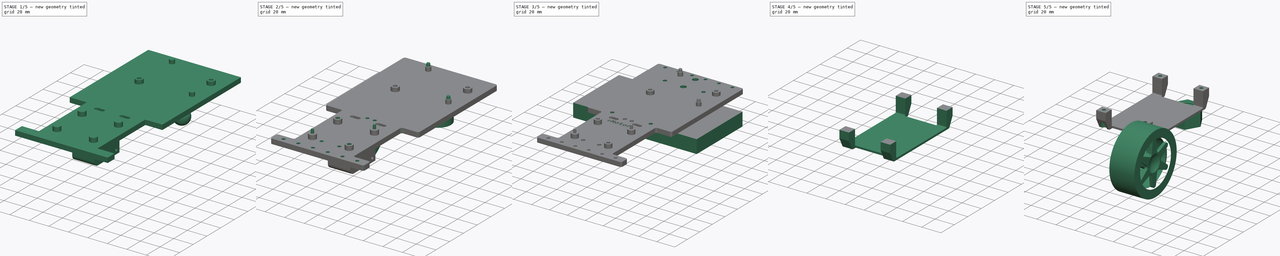
[diagram: build sequence overview — one tinted view per stage of 5, left to right]
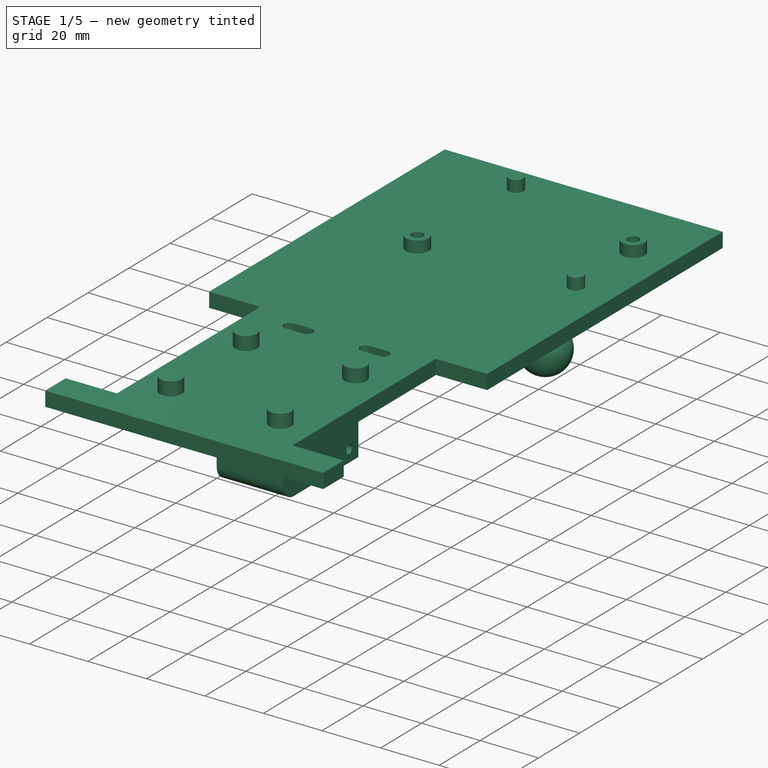
[diagram: stage 1 of 5 — iso view after this stage's code; geometry added in this stage tinted green]
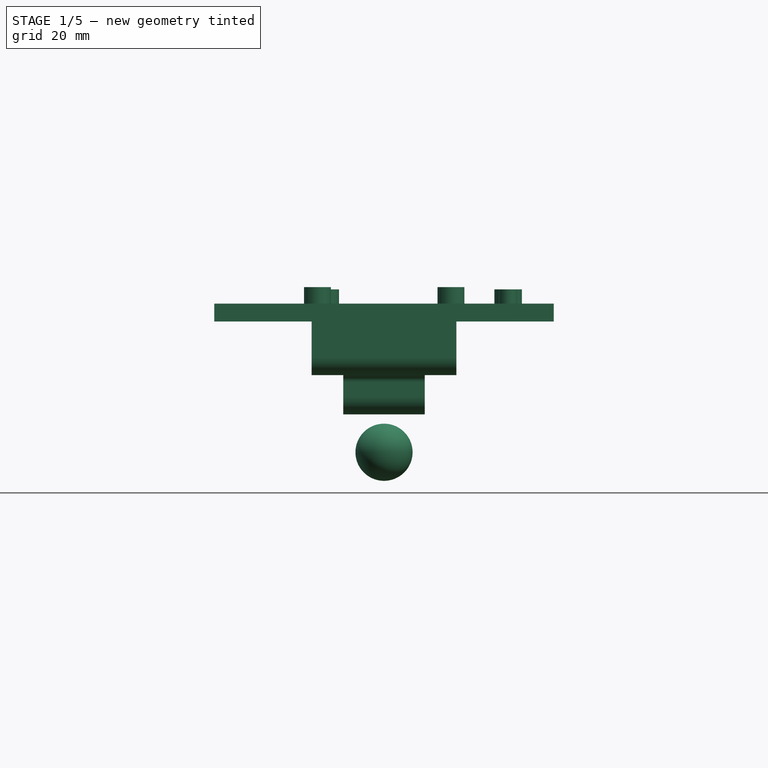
[diagram: stage 1 of 5 — front view after this stage's code; geometry added in this stage tinted green]
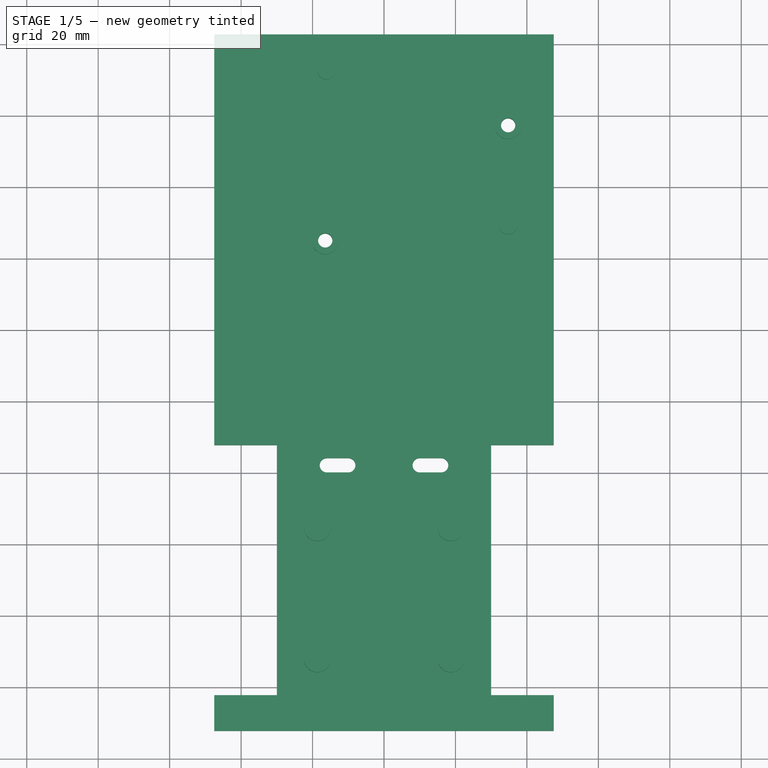
[diagram: stage 1 of 5 — top view after this stage's code; geometry added in this stage tinted green]
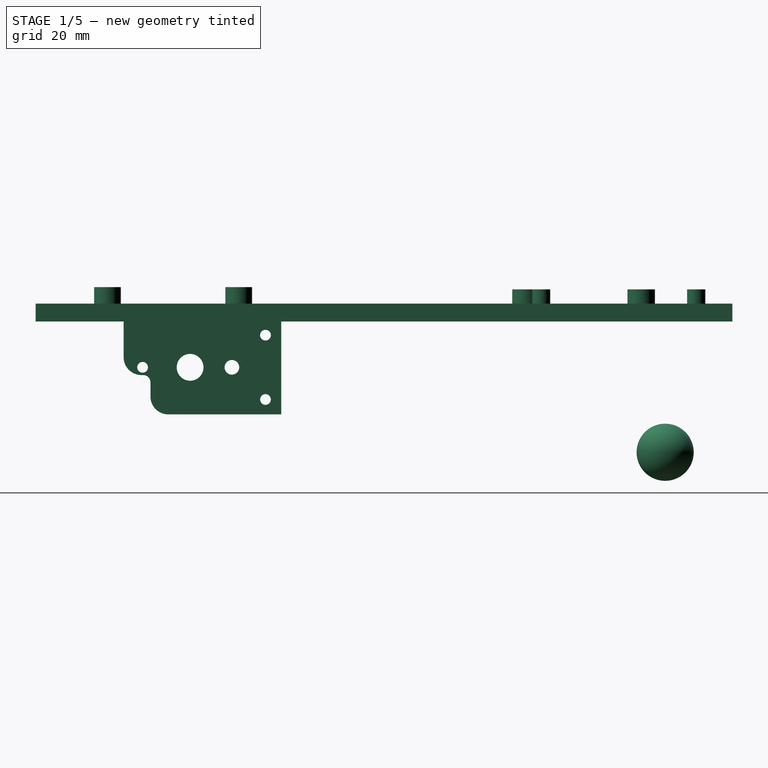
[diagram: stage 1 of 5 — right view after this stage's code; geometry added in this stage tinted green]
FCSTD DOCUMENT  (FreeCAD 2023.1102R14555 (Git shallow))
Label: Robot
License: All rights reserved
objects: Sketcher::SketchObject×47, Part::Feature×24, PartDesign::Pad×20, PartDesign::Pocket×18, PartDesign::SubShapeBinder×14, Sketcher::SketchExport×12, PartDesign::Body×9, PartDesign::Plane×7, PartDesign::Hole×7, PartDesign::Solid×5, PartDesign::Fillet×4, Part::SubShapeBinder×3, App::DocumentObjectGroup×3, App::Part×2, PartDesign::Extrusion×2, PartDesign::Chamfer×2, PartDesign::Groove×2, PartDesign::Split×2, Spreadsheet::Sheet×1, Part::Sphere×1, +7 more types
note: 352 computed .brp shape members not serialized (recipe doc carries the construction recipe); baked Part::Feature solids carry a one-line shape summary decoded from their .brp

FEATURE [Part::Feature] Solid  label="Pins_3fach_q_001"
  FixShape = 1
  InvalidShape = false
  Placement = pos=(64.19,-23.29,3.21) rot=(0,0,1;0rad)
  TreeRank = 9
  ValidateShape = false
  shape: bbox 5.08 x 7.647 x 11.94 mm, 248 faces (baked)
FEATURE [Part::Feature] Solid001  label="Pins_3fach_q_002"
  FixShape = 1
  InvalidShape = false
  Placement = pos=(15.78,-9.32,3.21) rot=(0,0,1;1.5708rad)
  TreeRank = 10
  ValidateShape = false
  shape: bbox 7.647 x 5.08 x 11.94 mm, 248 faces (baked)
FEATURE [Part::Feature] Compound  label="Ardi_UNO_Platine_001"
  FixShape = 1
  InvalidShape = false
  TreeRank = 11
  ValidateShape = false
  shape: bbox 69 x 53.4 x 1.61 mm, 2942 faces, 67 solids (baked)
FEATURE [Part::Feature] Solid002  label="Headers_digital_001"
  FixShape = 1
  InvalidShape = false
  TreeRank = 12
  ValidateShape = false
  shape: bbox 47.8 x 2.55 x 10.95 mm, 1363 faces (baked)
FEATURE [Part::Feature] Solid003  label="Headers_Analog_001"
  FixShape = 1
  InvalidShape = false
  TreeRank = 13
  ValidateShape = false
  shape: bbox 38.85 x 2.55 x 10.95 mm, 1405 faces (baked)
FEATURE [Part::Feature] Solid004  label="atmega328_socket_001"
  FixShape = 1
  InvalidShape = false
  TreeRank = 14
  ValidateShape = false
  shape: bbox 35.5 x 10 x 6.2 mm, 768 faces (baked)
FEATURE [Part::Feature] Solid005  label="atmega328_001"
  FixShape = 1
  InvalidShape = false
  TreeRank = 15
  ValidateShape = false
  shape: bbox 35.35 x 8.183 x 5.992 mm, 1260 faces (baked)
FEATURE [Part::Feature] Solid006  label="resetButton UNO_001"
  FixShape = 1
  InvalidShape = false
  TreeRank = 16
  ValidateShape = false
  shape: bbox 8.5 x 6.5 x 3.8 mm, 69 faces (baked)
FEATURE [Part::Feature] Compound001  label="USB_typeB_001"
  FixShape = 1
  InvalidShape = false
  Placement = pos=(8.29,-16.56,3.2) rot=(0,0,-1;1.5708rad)
  TreeRank = 36
  ValidateShape = false
  shape: bbox 16.5 x 12.05 x 13.97 mm, 568 faces, 6 solids (baked)
FEATURE [Part::Feature] Solid007  label="Stromanschluss_arduino UNO_001"
  FixShape = 1
  InvalidShape = false
  TreeRank = 37
  ValidateShape = false
  shape: bbox 14.42 x 9.21 x 13 mm, 114 faces (baked)
FEATURE [Part::Feature] Solid008  label="Kondensator_A8-47-25V_001"
  FixShape = 1
  InvalidShape = false
  Placement = pos=(-0.25,0,0) rot=(0,0,1;0rad)
  TreeRank = 38
  ValidateShape = false
  shape: bbox 6.765 x 7.5 x 5 mm, 256 faces (baked)
FEATURE [Part::Feature] Solid009  label="Kondensator_A8-47-25V_002"
  FixShape = 1
  InvalidShape = false
  Placement = pos=(6.5,0,0) rot=(0,0,1;0rad)
  TreeRank = 39
  ValidateShape = false
  shape: bbox 6.765 x 7.5 x 5 mm, 256 faces (baked)
FEATURE [Part::Feature] Solid010  label="Quarz_Arduino_16_001"
  FixShape = 1
  InvalidShape = false
  TreeRank = 40
  ValidateShape = false
  shape: bbox 12.87 x 4.871 x 5.2 mm, 172 faces (baked)
FEATURE [Part::Feature] Solid011  label="Transistor Arduino UNO_001"
  FixShape = 1
  InvalidShape = false
  TreeRank = 41
  ValidateShape = false
  shape: bbox 6.8 x 6.5 x 1.6 mm, 68 faces (baked)
FEATURE [Part::Feature] Solid012  label="LED Arduino UNO gelb_001"
  FixShape = 1
  InvalidShape = false
  TreeRank = 42
  ValidateShape = false
  shape: bbox 2 x 1 x 0.5 mm, 25 faces (baked)
FEATURE [Part::Feature] Solid013  label="LED Arduino UNO gelb_002"
  FixShape = 1
  InvalidShape = false
  Placement = pos=(0,-6,0) rot=(0,0,1;0rad)
  TreeRank = 43
  ValidateShape = false
  shape: bbox 2 x 1 x 0.5 mm, 25 faces (baked)
FEATURE [Part::Feature] Solid014  label="LED Arduino UNO gelb_003"
  FixShape = 1
  InvalidShape = false
  Placement = pos=(0,-8,0) rot=(0,0,1;0rad)
  TreeRank = 44
  ValidateShape = false
  shape: bbox 2 x 1 x 0.5 mm, 25 faces (baked)
FEATURE [Part::Feature] Solid015  label="LED Arduino UNO grün_001"
  FixShape = 1
  InvalidShape = false
  Placement = pos=(30.5,-6,0) rot=(0,0,1;0rad)
  TreeRank = 45
  ValidateShape = false
  shape: bbox 2 x 1 x 0.5 mm, 25 faces (baked)
FEATURE [Part::Feature] Solid016  label="achterTeil_001"
  FixShape = 1
  InvalidShape = false
  TreeRank = 46
  ValidateShape = false
  shape: bbox 3.2 x 4.7 x 0.801 mm, 69 faces (baked)
FEATURE [App::Part] Part  label="Arduino"
  ClaimAllChildren = false
  ExportMode = 1
  Group = -> [Solid,Solid001,Compound,Solid002,Solid003,Solid004,Solid005,Solid006,Compound001,Solid007,Solid008,Solid009,Solid010,Solid011,Solid012,Solid013,Solid014,Solid015,Solid016]
  Origin = -> Origin
  Placement = pos=(-31.1,14.5,0) rot=(0,0,1;0rad)
  TreeRank = 48
  _ExportChildren = -> [Solid,Solid001,Compound,Solid002,Solid003,Solid004,Solid005,Solid006,Compound001,Solid007,Solid008,Solid009,Solid010,Solid011,Solid012,Solid013,Solid014,Solid015,Solid016]
  _GroupVersion = 1
FEATURE [PartDesign::SubShapeBinder] Binder  label="Binder(Arduino)"
  BindCopyOnChange = 0
  BindMode = 0
  ClaimChildren = false
  Context = -> Group002 [Body.Binder.]
  EdgeTolerance = 1e-06
  FillStyle = 0
  FixShape = 1
  Fuse = false
  InvalidShape = false
  MakeFace = true
  MergeEdges = true
  OffsetFill = false
  OffsetIntersection = false
  OffsetJoinType = 0
  OffsetOpenResult = false
  Outline = false
  PartialLoad = false
  Relative = true
  SplitEdges = false
  Support = -> [Part]
  TightBound = false
  TreeRank = 59
  ValidateShape = false
  _Version = 8
FEATURE [PartDesign::Plane] DatumPlane
  AttachmentOffset = pos=(0,0,-4) rot=(0,0,1;0rad)
  AttachmentSupport = -> [Binder]
  FixShape = 1
  InvalidShape = false
  Length = 10
  MapMode = 5
  MinimumLength = 10
  MinimumWidth = 10
  Placement = pos=(0,0,-2.4) rot=(0,0,1;3.14159rad)
  ResizeMode = 0
  Support = -> [Binder]
  TreeRank = 60
  ValidateShape = false
  Width = 10
FEATURE [Sketcher::SketchObject] Sketch  label="RobotOutline"
  ArcFitTolerance = 1e-06
  AttachmentSupport = -> [DatumPlane]
  ExternalBSplineMaxDegree = 5
  ExternalBSplineTolerance = 0.0001
  FixShape = 1
  FullyConstrained = true
  InternalTolerance = 1e-06
  InvalidShape = false
  MakeInternals = false
  MapMode = 5
  Placement = pos=(0,0,-2.4) rot=(0,0,1;3.14159rad)
  Support = -> [DatumPlane]
  TreeRank = 61
  ValidateShape = false
  sketch-geometry (14):
    g0: LineSegment [constr] StartX=-47.5 StartY=93 StartZ=0 EndX=47.5 EndY=93 EndZ=0
    g1: LineSegment StartX=47.5 StartY=93 StartZ=0 EndX=47.5 EndY=-22 EndZ=0
    g2: LineSegment StartX=47.5 StartY=-22 StartZ=0 EndX=-47.5 EndY=-22 EndZ=0
    g3: LineSegment StartX=-47.5 StartY=-22 StartZ=0 EndX=-47.5 EndY=93 EndZ=0
    g4: LineSegment StartX=-47.5 StartY=93 StartZ=0 EndX=-30 EndY=93 EndZ=0
    g5: LineSegment StartX=-30 StartY=93 StartZ=0 EndX=-30 EndY=163 EndZ=0
    g6: LineSegment StartX=-30 StartY=163 StartZ=0 EndX=-47.5 EndY=163 EndZ=0
    g7: LineSegment StartX=-47.5 StartY=163 StartZ=0 EndX=-47.5 EndY=173 EndZ=0
    g8: LineSegment StartX=-47.5 StartY=173 StartZ=0 EndX=47.5 EndY=173 EndZ=0
    g9: LineSegment StartX=47.5 StartY=173 StartZ=0 EndX=47.5 EndY=163 EndZ=0
    g10: LineSegment StartX=47.5 StartY=163 StartZ=0 EndX=30 EndY=163 EndZ=0
    g11: LineSegment StartX=30 StartY=163 StartZ=0 EndX=30 EndY=93 EndZ=0
    g12: LineSegment StartX=30 StartY=93 StartZ=0 EndX=47.5 EndY=93 EndZ=0
    g13: LineSegment [constr] StartX=-30 StartY=128 StartZ=0 EndX=30 EndY=128 EndZ=0
  constraints (36):
    c: Coincident(g0,g1)
    c: Coincident(g1,g2)
    c: Coincident(g2,g3)
    c: Coincident(g3,g0)
    c: Horizontal(g2)
    c: Vertical(g1)
    c: Vertical(g3)
    c: Symmetric(g0,g0,g-2)
    c: DistanceX(g2,g2) = 95
    c: Coincident(g3,g4)
    c: Coincident(g4,g5)
    c: Vertical(g5)
    c: Coincident(g5,g6)
    c: Coincident(g6,g7)
    c: Vertical(g7)
    c: Coincident(g7,g8)
    c: Coincident(g8,g9)
    c: Coincident(g9,g10)
    c: Coincident(g10,g11)
    c: Vertical(g11)
    c: Coincident(g11,g12)
    c: Coincident(g12,g1)
    c: Symmetric(g7,g8,g-2)
    c: Symmetric(g6,g9,g-2)
    c: Symmetric(g5,g10,g-2)
    c: Equal(g5,g11)
    c: PointOnObject(g13,g5)
    c: PointOnObject(g13,g11)
    c: Symmetric(g11,g10,g13)
    c: Symmetric(g1,g9,g13)
    c: DistanceY(g2,g7) = 195
    c: DistanceY(g7,g7) = 10
    c: DistanceX(g5,g10) = 60
    c: DistanceY(g3,g3) = 115
    c: DistanceY(g1,g-1) = 22
    c: Horizontal(g4)
FEATURE [Part::Feature] Compound002  label="COMPOUND"
  FixShape = 1
  InvalidShape = false
  TreeRank = 72
  ValidateShape = false
  shape: bbox 56 x 8.41 x 86 mm, 5534 faces, 3 solids (baked)
FEATURE [Part::Feature] Compound003  label="COMPOUND"
  FixShape = 1
  InvalidShape = false
  TreeRank = 73
  ValidateShape = false
  shape: bbox 0.07768 x 2e-07 x 76.44 mm, 0 faces, 0 solids (baked)
FEATURE [App::Part] Part001  label="Breadboard 400"
  ClaimAllChildren = false
  ExportMode = 1
  Group = -> [Compound002,Compound003]
  Origin = -> Origin002
  Placement = pos=(-43.5,-94.195,-1.905) rot=(0.57735,0.57735,0.57735;2.0944rad)
  TreeRank = 75
  _ExportChildren = -> [Compound002,Compound003]
  _GroupVersion = 1
FEATURE [Part::Feature] Solid017  label="L298N v2"
  FixShape = 1
  InvalidShape = false
  Placement = pos=(-4.1e-15,-157.227,22.7) rot=(0,0,1;3.14159rad)
  TreeRank = 76
  ValidateShape = false
  shape: bbox 43 x 43 x 28.02 mm, 1283 faces (baked)
FEATURE [PartDesign::Pad] Pad
  AddSubType = 0
  AlongSketchNormal = false
  AutoTaperInnerAngle = true
  CheckUpToFaceLimits = true
  ClaimChildren = false
  Direction = (0,0,1)
  Fit = 0
  FitJoin = 0
  FixShape = 1
  InnerFit = 0
  InnerFitJoin = 0
  InvalidShape = false
  Length = 5
  Length2 = 10
  Linearize = true
  NewSolid = false
  Profile = -> Sketch
  ReferenceAxis = -> Sketch [N_Axis]
  Reversed = true
  Suppress = false
  TaperInnerAngle = 0
  TaperInnerAngleRev = 0
  TreeRank = 77
  Type = 0
  ValidateShape = true
  _ProfileBasedVersion = 1
FEATURE [Part::Feature] Compound004  label="YG2900_10V_800gf/cm v5"
  FixShape = 1
  InvalidShape = false
  Placement = pos=(11.5,-104.775,-9.025) rot=(-1,0,0;1.5708rad)
  TreeRank = 78
  ValidateShape = false
  shape: bbox 37.1 x 70.35 x 24.25 mm, 606 faces, 10 solids (baked)
FEATURE [Part::Feature] Compound005  label="YG2900_10V_800gf/cm v006"
  FixShape = 1
  InvalidShape = false
  Placement = pos=(-11.4,-104.875,-30.425) rot=(0,0.707107,0.707107;3.14159rad)
  TreeRank = 78
  ValidateShape = false
  shape: bbox 37.1 x 70.35 x 24.25 mm, 606 faces, 10 solids (baked)
FEATURE [Part::SubShapeBinder] Import  label="Import(YG2900_10V_800gf/cm v5)"
  BindCopyOnChange = 0
  BindMode = 0
  ClaimChildren = false
  Context = -> Group002 [Body.Import.]
  EdgeTolerance = 1e-06
  FillStyle = 0
  FixShape = 1
  Fuse = false
  InvalidShape = false
  MakeFace = false
  MergeEdges = true
  OffsetFill = false
  OffsetIntersection = false
  OffsetJoinType = 0
  OffsetOpenResult = false
  Outline = false
  PartialLoad = false
  Placement = pos=(0,1,0) rot=(0,0,1;0rad)
  Relative = true
  SplitEdges = false
  Support = -> [Compound004]
  TightBound = false
  TreeRank = 80
  ValidateShape = false
  _Version = 8
FEATURE [Sketcher::SketchObject] Sketch001
  ArcFitTolerance = 1e-06
  AttachmentSupport = -> [Pad]
  ExternalBSplineMaxDegree = 5
  ExternalBSplineTolerance = 0.0001
  ExternalGeometry = -> [Import]
  FixShape = 1
  FullyConstrained = true
  InternalTolerance = 1e-06
  InvalidShape = false
  MakeInternals = false
  MapMode = 5
  Placement = pos=(0,0,-7.4) rot=(1,0,0;3.14159rad)
  Support = -> [Pad]
  TreeRank = 79
  ValidateShape = false
  sketch-geometry (16):
    g0: LineSegment StartX=-20.25 StartY=148.375 StartZ=0 EndX=20.25 EndY=148.375 EndZ=0
    g1: LineSegment StartX=20.25 StartY=148.375 StartZ=0 EndX=20.25 EndY=140.875 EndZ=0
    g2: LineSegment StartX=20.25 StartY=140.875 StartZ=0 EndX=11.4 EndY=140.875 EndZ=0
    g3: LineSegment StartX=-20.25 StartY=140.875 StartZ=0 EndX=-20.25 EndY=148.375 EndZ=0
    g4: LineSegment StartX=-11.4 StartY=104.275 StartZ=0 EndX=11.4 EndY=104.275 EndZ=0
    g5: LineSegment StartX=11.4 StartY=104.275 StartZ=0 EndX=11.4 EndY=140.875 EndZ=0
    g6: LineSegment StartX=-11.4 StartY=140.875 StartZ=0 EndX=-11.4 EndY=104.275 EndZ=0
    g7: LineSegment [constr] StartX=20.55 StartY=140.575 StartZ=0 EndX=20.25 EndY=140.575 EndZ=0
    g8: LineSegment [constr] StartX=20.25 StartY=140.575 StartZ=0 EndX=20.25 EndY=140.875 EndZ=0
    g9: LineSegment [constr] StartX=20.25 StartY=140.875 StartZ=0 EndX=20.55 EndY=140.875 EndZ=0
    g10: LineSegment [constr] StartX=20.55 StartY=140.875 StartZ=0 EndX=20.55 EndY=140.575 EndZ=0
    g11: LineSegment [constr] StartX=11.4 StartY=104.275 StartZ=0 EndX=11.7 EndY=104.275 EndZ=0
    g12: LineSegment [constr] StartX=11.7 StartY=104.275 StartZ=0 EndX=11.7 EndY=103.975 EndZ=0
    g13: LineSegment [constr] StartX=11.7 StartY=103.975 StartZ=0 EndX=11.4 EndY=103.975 EndZ=0
    g14: LineSegment [constr] StartX=11.4 StartY=103.975 StartZ=0 EndX=11.4 EndY=104.275 EndZ=0
    g15: LineSegment StartX=-11.4 StartY=140.875 StartZ=0 EndX=-20.25 EndY=140.875 EndZ=0
  constraints (41):
    c: Coincident(g0,g1)
    c: Coincident(g1,g2)
    c: Coincident(g15,g3)
    c: Coincident(g3,g0)
    c: Horizontal(g2)
    c: Vertical(g1)
    c: Vertical(g3)
    c: Coincident(g4,g5)
    c: Coincident(g6,g4)
    c: Vertical(g5)
    c: Symmetric(g4,g4,g-2)
    c: Symmetric(g0,g0,g-2)
    c: Coincident(g7,g8)
    c: Coincident(g8,g9)
    c: Coincident(g9,g10)
    c: Coincident(g10,g7)
    c: Horizontal(g7)
    c: Horizontal(g9)
    c: Vertical(g8)
    c: Vertical(g10)
    c: Coincident(g7,g-3)
    c: Coincident(g8,g1)
    c: Coincident(g11,g12)
    c: Coincident(g12,g13)
    c: Coincident(g13,g14)
    c: Coincident(g14,g11)
    c: Horizontal(g11)
    c: Horizontal(g13)
    c: Vertical(g12)
    c: Vertical(g14)
    c: Coincident(g11,g4)
    c: Coincident(g12,g-4)
    c: Equal(g9,g8)
    c: Equal(g9,g13)
    c: Equal(g13,g12)
    c: DistanceY(g8,g8) = 0.3
    c: Coincident(g2,g5)
    c: Horizontal(g15)
    c: Coincident(g6,g15)
    c: Symmetric(g6,g2,g-2)
    c: DistanceY(g-3,g0) = 3
FEATURE [PartDesign::Pad] Pad001
  AddSubType = 0
  AlongSketchNormal = false
  AutoTaperInnerAngle = true
  BaseFeature = -> Pad
  CheckUpToFaceLimits = true
  ClaimChildren = false
  Direction = (0,0,-1)
  Fit = 0
  FitJoin = 0
  FixShape = 1
  InnerFit = 0
  InnerFitJoin = 0
  InvalidShape = false
  Length = 15
  Length2 = 10
  Linearize = true
  NewSolid = false
  Profile = -> Sketch001
  ReferenceAxis = -> Sketch001 [N_Axis]
  Suppress = false
  TaperInnerAngle = 0
  TaperInnerAngleRev = 0
  TreeRank = 81
  Type = 0
  ValidateShape = true
  _ProfileBasedVersion = 1
FEATURE [Sketcher::SketchObject] Sketch002
  ArcFitTolerance = 1e-06
  AttachmentSupport = -> [Pad001]
  ExternalBSplineMaxDegree = 5
  ExternalBSplineTolerance = 0.0001
  ExternalGeometry = -> [Pad001]
  FixShape = 1
  FullyConstrained = true
  InternalTolerance = 1e-06
  InvalidShape = false
  MakeInternals = false
  MapMode = 5
  Placement = pos=(0,0,-22.4) rot=(1,0,0;3.14159rad)
  Support = -> [Pad001]
  TreeRank = 82
  ValidateShape = false
  sketch-geometry (4):
    g0: LineSegment StartX=-11.4 StartY=140.875 StartZ=0 EndX=11.4 EndY=140.875 EndZ=0
    g1: LineSegment StartX=11.4 StartY=140.875 StartZ=0 EndX=11.4 EndY=104.275 EndZ=0
    g2: LineSegment StartX=11.4 StartY=104.275 StartZ=0 EndX=-11.4 EndY=104.275 EndZ=0
    g3: LineSegment StartX=-11.4 StartY=104.275 StartZ=0 EndX=-11.4 EndY=140.875 EndZ=0
  constraints (10):
    c: Coincident(g0,g1)
    c: Coincident(g1,g2)
    c: Coincident(g2,g3)
    c: Coincident(g3,g0)
    c: Horizontal(g0)
    c: Horizontal(g2)
    c: Vertical(g1)
    c: Vertical(g3)
    c: Coincident(g0,g-3)
    c: Coincident(g1,g-4)
FEATURE [PartDesign::Pad] Pad002
  AddSubType = 0
  AlongSketchNormal = false
  AutoTaperInnerAngle = true
  BaseFeature = -> Pad001
  CheckUpToFaceLimits = true
  ClaimChildren = false
  Direction = (0,0,-1)
  Fit = 0
  FitJoin = 0
  FixShape = 1
  InnerFit = 0
  InnerFitJoin = 0
  InvalidShape = false
  Length = 11
  Length2 = 10
  Linearize = true
  NewSolid = false
  Profile = -> Sketch002
  ReferenceAxis = -> Sketch002 [N_Axis]
  Refine = true
  Suppress = false
  TaperInnerAngle = 0
  TaperInnerAngleRev = 0
  TreeRank = 83
  Type = 0
  ValidateShape = true
  _ProfileBasedVersion = 1
FEATURE [PartDesign::Fillet] Fillet
  AddSubType = 0
  Base = -> Pad002 [Edge51,Edge59]
  BaseFeature = -> Pad002
  FixShape = 1
  InvalidShape = false
  NewSolid = false
  Radius = 5
  SupportTransform = false
  Suppress = false
  TreeRank = 84
  UseAllEdges = false
  ValidateShape = true
FEATURE [PartDesign::Fillet] Fillet001
  AddSubType = 0
  Base = -> Fillet [Edge31]
  BaseFeature = -> Fillet
  FixShape = 1
  InvalidShape = false
  NewSolid = false
  Radius = 2
  SupportTransform = false
  Suppress = false
  TreeRank = 85
  UseAllEdges = false
  ValidateShape = true
FEATURE [Sketcher::SketchObject] Sketch003
  ArcFitTolerance = 1e-06
  AttachmentSupport = -> [Fillet001]
  ExternalBSplineMaxDegree = 5
  ExternalBSplineTolerance = 0.0001
  ExternalGeometry = -> [Import]
  FixShape = 1
  FullyConstrained = true
  InternalTolerance = 1e-06
  InvalidShape = false
  MakeInternals = false
  MapMode = 5
  Placement = pos=(-11.4,0,-3.35151e-11) rot=(0.57735,-0.57735,-0.57735;2.0944rad)
  Support = -> [Fillet001]
  TreeRank = 86
  ValidateShape = false
  sketch-geometry (2):
    g0: Circle CenterX=108.675 CenterY=-11.225 CenterZ=0 NormalX=0 NormalY=0 NormalZ=1 AngleXU=0 Radius=1.5
    g1: Circle CenterX=108.675 CenterY=-29.225 CenterZ=0 NormalX=0 NormalY=0 NormalZ=1 AngleXU=0 Radius=1.5
  constraints (4):
    c: Coincident(g0,g-4)
    c: PointOnObject(g-4,g0)
    c: PointOnObject(g-5,g1)
    c: Coincident(g1,g-5)
FEATURE [PartDesign::Pocket] Pocket
  AddSubType = 1
  AlongSketchNormal = false
  AutoTaperInnerAngle = true
  BaseFeature = -> Fillet001
  CheckUpToFaceLimits = true
  ClaimChildren = false
  Direction = (1,0,2.9399e-12)
  Fit = 0
  FitJoin = 0
  FixShape = 1
  InnerFit = 0
  InnerFitJoin = 0
  InvalidShape = false
  Length = 5
  Length2 = 10
  Linearize = true
  Midplane = true
  NewSolid = false
  Profile = -> Sketch003
  ReferenceAxis = -> Sketch003 [N_Axis]
  Suppress = false
  TaperInnerAngle = 0
  TaperInnerAngleRev = 0
  TreeRank = 87
  Type = 1
  ValidateShape = true
  _ProfileBasedVersion = 1
  _Version = 1
FEATURE [PartDesign::SubShapeBinder] Binder001  label="Binder001(YG2900_10V_800gf/cm v5)"
  BindCopyOnChange = 0
  BindMode = 0
  ClaimChildren = false
  Context = -> Group001 [Body001.Binder001.]
  EdgeTolerance = 1e-06
  FillStyle = 0
  FixShape = 1
  Fuse = false
  InvalidShape = false
  MakeFace = true
  MergeEdges = true
  OffsetFill = false
  OffsetIntersection = false
  OffsetJoinType = 0
  OffsetOpenResult = false
  Outline = false
  PartialLoad = false
  Relative = true
  SplitEdges = false
  Support = -> [Compound004]
  TightBound = false
  TreeRank = 98
  ValidateShape = false
  _Version = 8
FEATURE [Part::SubShapeBinder] Import001  label="Import001(Pocket)"
  BindCopyOnChange = 0
  BindMode = 0
  ClaimChildren = false
  Context = -> Group001 [Body001.Import001.]
  EdgeTolerance = 1e-06
  FillStyle = 0
  FixShape = 1
  Fuse = false
  InvalidShape = false
  MakeFace = false
  MergeEdges = true
  OffsetFill = false
  OffsetIntersection = false
  OffsetJoinType = 0
  OffsetOpenResult = false
  Outline = false
  PartialLoad = false
  Relative = true
  SplitEdges = false
  Support = -> [Body[Pocket.]]
  TightBound = false
  TreeRank = 121
  ValidateShape = false
  _Version = 8
FEATURE [PartDesign::SubShapeBinder] Binder002  label="Binder002(L298N v2)"
  BindCopyOnChange = 0
  BindMode = 0
  ClaimChildren = false
  Context = -> Group002 [Body.Binder002.]
  EdgeTolerance = 1e-06
  FillStyle = 0
  FixShape = 1
  Fuse = false
  InvalidShape = false
  MakeFace = true
  MergeEdges = true
  OffsetFill = false
  OffsetIntersection = false
  OffsetJoinType = 0
  OffsetOpenResult = false
  Outline = false
  PartialLoad = false
  Relative = true
  SplitEdges = false
  Support = -> [Solid017]
  TightBound = false
  TreeRank = 123
  ValidateShape = false
  _Version = 8
FEATURE [Sketcher::SketchObject] Sketch011
  ArcFitTolerance = 1e-06
  AttachmentSupport = -> [Pocket]
  ExternalBSplineMaxDegree = 5
  ExternalBSplineTolerance = 0.0001
  ExternalGeometry = -> [Binder002]
  FixShape = 1
  FullyConstrained = true
  InternalTolerance = 1e-06
  InvalidShape = false
  MakeInternals = false
  MapMode = 5
  Placement = pos=(0,0,-2.4) rot=(0,0,1;0rad)
  Support = -> [Pocket]
  TreeRank = 122
  ValidateShape = false
FEATURE [PartDesign::Pad] Pad008  label="L298N_support"
  AddSubType = 0
  AlongSketchNormal = false
  AutoTaperInnerAngle = true
  BaseFeature = -> Pocket
  CheckUpToFaceLimits = true
  ClaimChildren = false
  Direction = (0,0,1)
  Fit = 2
  FitJoin = 0
  FixShape = 1
  InnerFit = 0
  InnerFitJoin = 0
  InvalidShape = false
  Length = 10
  Length2 = 10
  Linearize = true
  NewSolid = false
  Profile = -> Sketch011
  ReferenceAxis = -> Sketch011 [N_Axis]
  Suppress = false
  TaperInnerAngle = 0
  TaperInnerAngleRev = 0
  TreeRank = 124
  Type = 3
  UpToFace = -> Binder002 [Face122]
  ValidateShape = true
  _ProfileBasedVersion = 1
FEATURE [Sketcher::SketchObject] Sketch012
  ArcFitTolerance = 1e-06
  AttachmentSupport = -> [Pad008]
  ExternalBSplineMaxDegree = 5
  ExternalBSplineTolerance = 0.0001
  ExternalGeometry = -> [Pad008]
  FixShape = 1
  FullyConstrained = true
  InternalTolerance = 1e-06
  InvalidShape = false
  MakeInternals = false
  MapMode = 5
  Placement = pos=(0,0,-2.4) rot=(0,0,1;0rad)
  Support = -> [Pad008]
  TreeRank = 125
  ValidateShape = false
  sketch-geometry (13):
    g0: ArcOfCircle CenterX=-16 CenterY=-98.6375 CenterZ=0 NormalX=0 NormalY=0 NormalZ=1 AngleXU=0 Radius=2 StartAngle=1.5708 EndAngle=4.71239
    g1: ArcOfCircle CenterX=-10 CenterY=-98.6375 CenterZ=0 NormalX=0 NormalY=0 NormalZ=1 AngleXU=0 Radius=2 StartAngle=4.71239 EndAngle=7.85398
    g2: LineSegment StartX=-16 StartY=-100.638 StartZ=0 EndX=-10 EndY=-100.638 EndZ=0
    g3: LineSegment StartX=-10 StartY=-96.6375 StartZ=0 EndX=-16 EndY=-96.6375 EndZ=0
    g4: ArcOfCircle CenterX=10 CenterY=-98.6375 CenterZ=0 NormalX=0 NormalY=0 NormalZ=1 AngleXU=0 Radius=2 StartAngle=1.5708 EndAngle=4.71239
    g5: ArcOfCircle CenterX=16 CenterY=-98.6375 CenterZ=0 NormalX=0 NormalY=0 NormalZ=1 AngleXU=0 Radius=2 StartAngle=4.71239 EndAngle=7.85398
    g6: LineSegment StartX=10 StartY=-100.638 StartZ=0 EndX=16 EndY=-100.638 EndZ=0
    g7: LineSegment StartX=16 StartY=-96.6375 StartZ=0 EndX=10 EndY=-96.6375 EndZ=0
    g8: LineSegment [constr] StartX=-30 StartY=-93 StartZ=0 EndX=-11.4 EndY=-93 EndZ=0
    g9: LineSegment [constr] StartX=-11.4 StartY=-93 StartZ=0 EndX=-11.4 EndY=-104.275 EndZ=0
    g10: LineSegment [constr] StartX=-11.4 StartY=-104.275 StartZ=0 EndX=-30 EndY=-104.275 EndZ=0
    g11: LineSegment [constr] StartX=-30 StartY=-104.275 StartZ=0 EndX=-30 EndY=-93 EndZ=0
    g12: LineSegment [constr] StartX=-16 StartY=-98.6375 StartZ=0 EndX=-30 EndY=-98.6375 EndZ=0
  constraints (31):
    c: Tangent(g0,g2) = -1.5708
    c: Tangent(g2,g1) = -1.5708
    c: Tangent(g1,g3) = -1.5708
    c: Tangent(g3,g0) = -1.5708
    c: Equal(g0,g1)
    c: Horizontal(g2)
    c: Tangent(g4,g6) = -1.5708
    c: Tangent(g6,g5) = -1.5708
    c: Tangent(g5,g7) = -1.5708
    c: Tangent(g7,g4) = -1.5708
    c: Equal(g4,g5)
    c: Horizontal(g6)
    c: Symmetric(g1,g4,g-2)
    c: Equal(g1,g4)
    c: Equal(g2,g6)
    c: DistanceY(g0,g0) = 4
    c: DistanceX(g2,g2) = 6
    c: Coincident(g8,g9)
    c: Coincident(g9,g10)
    c: Coincident(g10,g11)
    c: Coincident(g11,g8)
    c: Horizontal(g8)
    c: Horizontal(g10)
    c: Vertical(g9)
    c: Vertical(g11)
    c: Coincident(g8,g-3)
    c: Coincident(g9,g-4)
    c: Coincident(g12,g0)
    c: PointOnObject(g12,g11)
    c: Symmetric(g10,g-3,g12)
    c: DistanceX(g1,g4) = 20
FEATURE [PartDesign::Pocket] Pocket002  label="MotorCableHole"
  AddSubType = 1
  AlongSketchNormal = false
  AutoTaperInnerAngle = true
  BaseFeature = -> Pad008
  CheckUpToFaceLimits = true
  ClaimChildren = false
  Direction = (0,0,-1)
  Fit = 0
  FitJoin = 0
  FixShape = 1
  InnerFit = 0
  InnerFitJoin = 0
  InvalidShape = false
  Length = 5
  Length2 = 10
  Linearize = true
  NewSolid = false
  Profile = -> Sketch012
  ReferenceAxis = -> Sketch012 [N_Axis]
  Suppress = false
  TaperInnerAngle = 0
  TaperInnerAngleRev = 0
  TreeRank = 126
  Type = 1
  ValidateShape = true
  _ProfileBasedVersion = 1
  _Version = 1
FEATURE [Spreadsheet::Sheet] Spreadsheet  label="Sizes"
  PythonMode = false
  ShowCells = 0
  TreeRank = 142
  cells = A1=Sizes of diferent thinks used in this project; B3=Height; C3=Width; D3=Length; E3=D1; F3=D2; G3=D3; A4=M3 hex nut; B4(M3hex_height)=2.2; C4(M3hex_width)=5.2; A5=M3 heat insert; B5(M3Insert_height)=5.7; C5(M3Insert_wallwihth)=1.6; E5(M3Insert_d1)=4.6; F5(M3Insert_d2)=3.9; G5(M3Insert_d3)=4
FEATURE [Part::Sphere] Sphere  label="Spelkula"
  Angle1 = -90
  Angle2 = 90
  Angle3 = 360
  AttacherType = Attacher::AttachEngine3D
  FixShape = 1
  InvalidShape = false
  Placement = pos=(0,3.2,-44) rot=(0,0,1;0rad)
  Radius = 8
  TreeRank = 160
  ValidateShape = false
FEATURE [Sketcher::SketchObject] Sketch013  label="Arduino_suport_sketch"
  ArcFitTolerance = 1e-06
  AttachmentSupport = -> [Pocket002]
  Exports = -> [Export004,Export005,Export011]
  ExternalBSplineMaxDegree = 5
  ExternalBSplineTolerance = 0.0001
  ExternalGeometry = -> [Binder]
  FixShape = 1
  FullyConstrained = true
  InternalTolerance = 1e-06
  InvalidShape = false
  MakeInternals = false
  MapMode = 5
  Placement = pos=(0,0,-2.4) rot=(0,0,1;0rad)
  Support = -> [Pocket002]
  TreeRank = 127
  ValidateShape = false
  sketch-geometry (6):
    g0: Circle CenterX=-17.16 CenterY=-36.2 CenterZ=0 NormalX=0 NormalY=0 NormalZ=1 AngleXU=0 Radius=2.05
    g1: LineSegment [constr] StartX=-17.16 StartY=-36.2 StartZ=0 EndX=-16.45 EndY=-36.2 EndZ=0
    g2: LineSegment [constr] StartX=-16.45 StartY=-36.2 StartZ=0 EndX=-16.45 EndY=-35.75 EndZ=0
    g3: LineSegment [constr] StartX=-16.45 StartY=-35.75 StartZ=0 EndX=-17.16 EndY=-35.75 EndZ=0
    g4: LineSegment [constr] StartX=-17.16 StartY=-35.75 StartZ=0 EndX=-17.16 EndY=-36.2 EndZ=0
    g5: Circle CenterX=34.75 CenterY=-3.5 CenterZ=0 NormalX=0 NormalY=0 NormalZ=1 AngleXU=0 Radius=2.05
  constraints (15):
    c: Equal(g0,g-5)
    c: Coincident(g1,g2)
    c: Coincident(g2,g3)
    c: Coincident(g3,g4)
    c: Coincident(g4,g1)
    c: Horizontal(g1)
    c: Horizontal(g3)
    c: Vertical(g2)
    c: Vertical(g4)
    c: Coincident(g1,g0)
    c: Coincident(g2,g-5)
    c: DistanceX(g3,g3) = 0.71
    c: DistanceY(g4,g4) = 0.45
    c: Coincident(g5,g-3)
    c: Tangent(g5,g-3)
FEATURE [Sketcher::SketchExport] Export004  label="HeatedInserts"
  Base = -> Sketch013
  BaseRefs = -> Sketch013 [ExternalEdge1,ExternalEdge3]
  FixShape = 1
  InvalidShape = false
  Placement = pos=(0,0,-2.4) rot=(0,0,1;0rad)
  Refs = ;e1.ExternalEdge1 | ;e3.ExternalEdge3
  SyncPlacement = true
  TreeRank = 128
  ValidateShape = false
FEATURE [Sketcher::SketchExport] Export005  label="Towers"
  Base = -> Sketch013
  BaseRefs = -> Sketch013 [ExternalEdge4,ExternalEdge2]
  FixShape = 1
  InvalidShape = false
  Placement = pos=(0,0,-2.4) rot=(0,0,1;0rad)
  Refs = ;e4.ExternalEdge4 | ;e2.ExternalEdge2
  SyncPlacement = true
  TreeRank = 129
  ValidateShape = false
FEATURE [PartDesign::Pad] Pad009
  AddSubType = 0
  AlongSketchNormal = false
  AutoTaperInnerAngle = true
  BaseFeature = -> Pocket002
  CheckUpToFaceLimits = true
  ClaimChildren = false
  Direction = (0,0,1)
  Fit = 1.8
  FitJoin = 0
  FixShape = 1
  InnerFit = 0
  InnerFitJoin = 0
  InvalidShape = false
  Length = 10
  Length2 = 10
  Linearize = true
  NewSolid = false
  Profile = -> Export004
  ReferenceAxis = -> Export004 [N_Axis]
  Suppress = false
  TaperInnerAngle = 0
  TaperInnerAngleRev = 0
  TreeRank = 130
  Type = 3
  UpToFace = -> Binder [Face824]
  ValidateShape = true
  _ProfileBasedVersion = 1
FEATURE [Sketcher::SketchObject] Sketch014
  ArcFitTolerance = 1e-06
  AttachmentSupport = -> [Pad009]
  ExternalBSplineMaxDegree = 5
  ExternalBSplineTolerance = 0.0001
  ExternalGeometry = -> [Pad009,Binder]
  FixShape = 1
  FullyConstrained = true
  InternalTolerance = 1e-06
  InvalidShape = false
  MakeInternals = false
  MapMode = 5
  Placement = pos=(0,0,1.6) rot=(0,0,1;0rad)
  Support = -> [Pad009]
  TreeRank = 131
  ValidateShape = false
  sketch-geometry (10):
    g0: Circle CenterX=-16.45 CenterY=-35.75 CenterZ=0 NormalX=0 NormalY=0 NormalZ=1 AngleXU=0 Radius=2
    g1: Circle CenterX=34.75 CenterY=-3.5 CenterZ=0 NormalX=0 NormalY=0 NormalZ=1 AngleXU=0 Radius=2
    g2: LineSegment StartX=-18.15 StartY=-33.28 StartZ=0 EndX=-19.15 EndY=-33.28 EndZ=0
    g3: LineSegment StartX=-19.15 StartY=-33.28 StartZ=0 EndX=-19.15 EndY=-32.28 EndZ=0
    g4: LineSegment StartX=-19.15 StartY=-32.28 StartZ=0 EndX=-18.15 EndY=-32.28 EndZ=0
    g5: LineSegment StartX=-18.15 StartY=-32.28 StartZ=0 EndX=-18.15 EndY=-33.28 EndZ=0
    g6: LineSegment [constr] StartX=-18.15 StartY=-33.28 StartZ=0 EndX=-18.45 EndY=-33.28 EndZ=0
    g7: LineSegment [constr] StartX=-18.45 StartY=-33.28 StartZ=0 EndX=-18.45 EndY=-32.98 EndZ=0
    g8: LineSegment [constr] StartX=-18.45 StartY=-32.98 StartZ=0 EndX=-18.15 EndY=-32.98 EndZ=0
    g9: LineSegment [constr] StartX=-18.15 StartY=-32.98 StartZ=0 EndX=-18.15 EndY=-33.28 EndZ=0
  constraints (26):
    c: Coincident(g0,g-3)
    c: Coincident(g1,g-4)
    c: Equal(g1,g0)
    c: Diameter(g0) = 4
    c: Coincident(g2,g3)
    c: Coincident(g3,g4)
    c: Coincident(g4,g5)
    c: Coincident(g5,g2)
    c: Horizontal(g2)
    c: Horizontal(g4)
    c: Vertical(g3)
    c: Vertical(g5)
    c: Coincident(g6,g7)
    c: Coincident(g7,g8)
    c: Coincident(g8,g9)
    c: Coincident(g9,g6)
    c: Horizontal(g6)
    c: Horizontal(g8)
    c: Vertical(g7)
    c: Vertical(g9)
    c: Coincident(g6,g2)
    c: Coincident(g7,g-6)
    c: Equal(g8,g7)
    c: DistanceX(g8,g8) = 0.3
    c: Equal(g4,g5)
    c: DistanceY(g3,g3) = 1
FEATURE [PartDesign::Pocket] Pocket003
  AddSubType = 1
  AlongSketchNormal = false
  AutoTaperInnerAngle = true
  BaseFeature = -> Pad009
  CheckUpToFaceLimits = true
  ClaimChildren = false
  Direction = (0,0,-1)
  Fit = 0
  FitJoin = 0
  FixShape = 1
  InnerFit = 0
  InnerFitJoin = 0
  InvalidShape = false
  Length = 5
  Length2 = 10
  Linearize = true
  NewSolid = false
  Profile = -> Sketch014
  ReferenceAxis = -> Sketch014 [N_Axis]
  Suppress = false
  TaperInnerAngle = 0
  TaperInnerAngleRev = 0
  TreeRank = 132
  Type = 2
  ValidateShape = true
  _ProfileBasedVersion = 1
  _Version = 1
FEATURE [PartDesign::Pocket] Pocket004
  AddSubType = 1
  AlongSketchNormal = false
  AutoTaperInnerAngle = true
  BaseFeature = -> Pocket003
  CheckUpToFaceLimits = true
  ClaimChildren = false
  Direction = (0,0,-1)
  Fit = 0
  FitJoin = 0
  FixShape = 1
  InnerFit = 0
  InnerFitJoin = 0
  InvalidShape = false
  Length = 5
  Length2 = 10
  Linearize = true
  NewSolid = false
  Profile = -> Pocket003 [Face62,Face63]
  Suppress = false
  TaperInnerAngle = 0
  TaperInnerAngleRev = 0
  TreeRank = 133
  Type = 1
  ValidateShape = true
  _ProfileBasedVersion = 1
  _Version = 1
FEATURE [PartDesign::Pad] Pad010
  AddSubType = 0
  AlongSketchNormal = false
  AutoTaperInnerAngle = true
  BaseFeature = -> Pocket004
  CheckUpToFaceLimits = true
  ClaimChildren = false
  Direction = (0,0,1)
  Fit = 0.5
  FitJoin = 0
  FixShape = 1
  InnerFit = 0
  InnerFitJoin = 0
  InvalidShape = false
  Length = 10
  Length2 = 10
  Linearize = true
  NewSolid = false
  Profile = -> Export005
  ReferenceAxis = -> Export005 [N_Axis]
  Suppress = false
  TaperInnerAngle = 0
  TaperInnerAngleRev = 0
  TreeRank = 134
  Type = 3
  UpToFace = -> Binder [Face824]
  ValidateShape = true
  _ProfileBasedVersion = 1
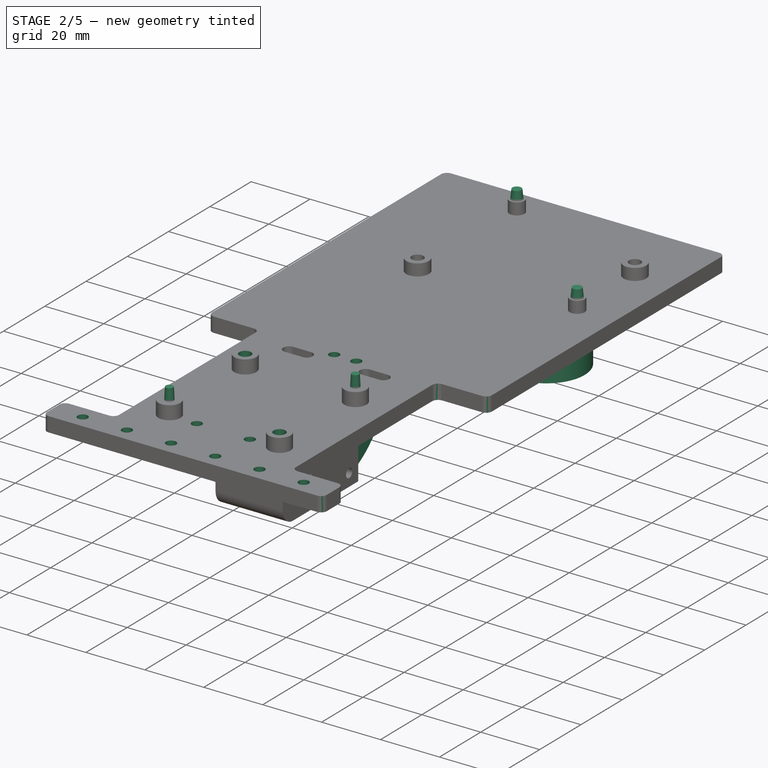
[diagram: stage 2 of 5 — iso view after this stage's code; geometry added in this stage tinted green]
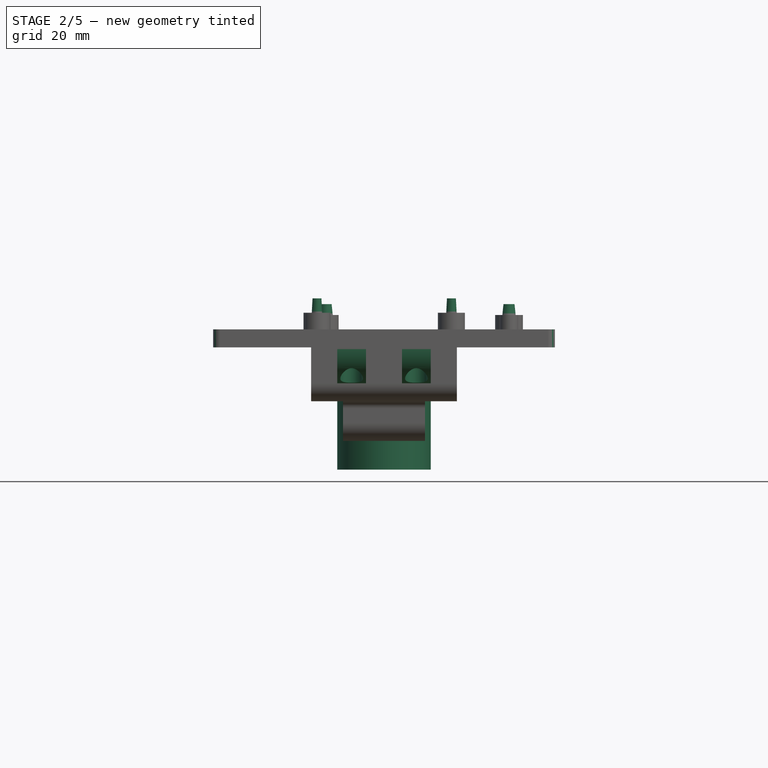
[diagram: stage 2 of 5 — front view after this stage's code; geometry added in this stage tinted green]
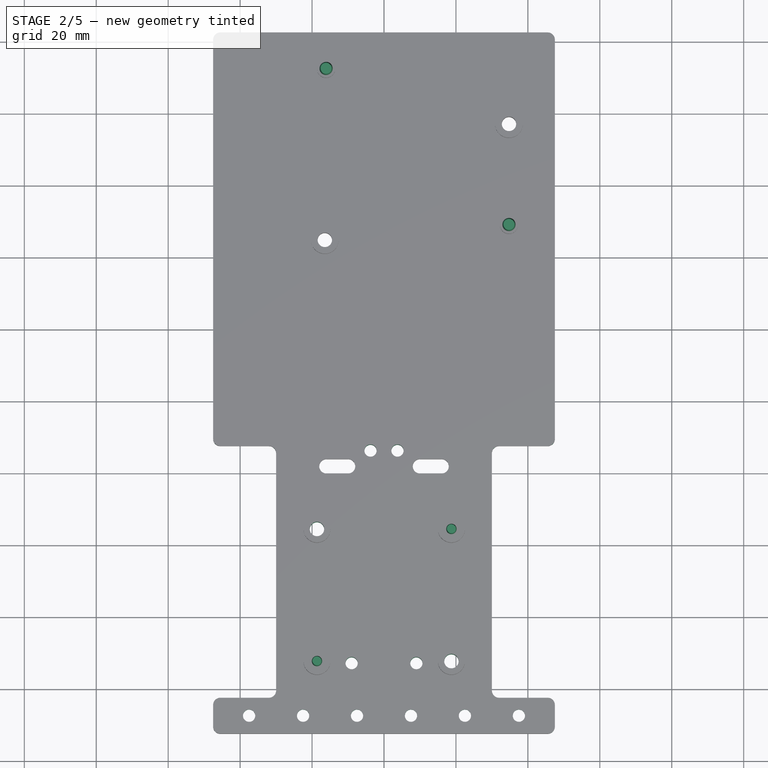
[diagram: stage 2 of 5 — top view after this stage's code; geometry added in this stage tinted green]
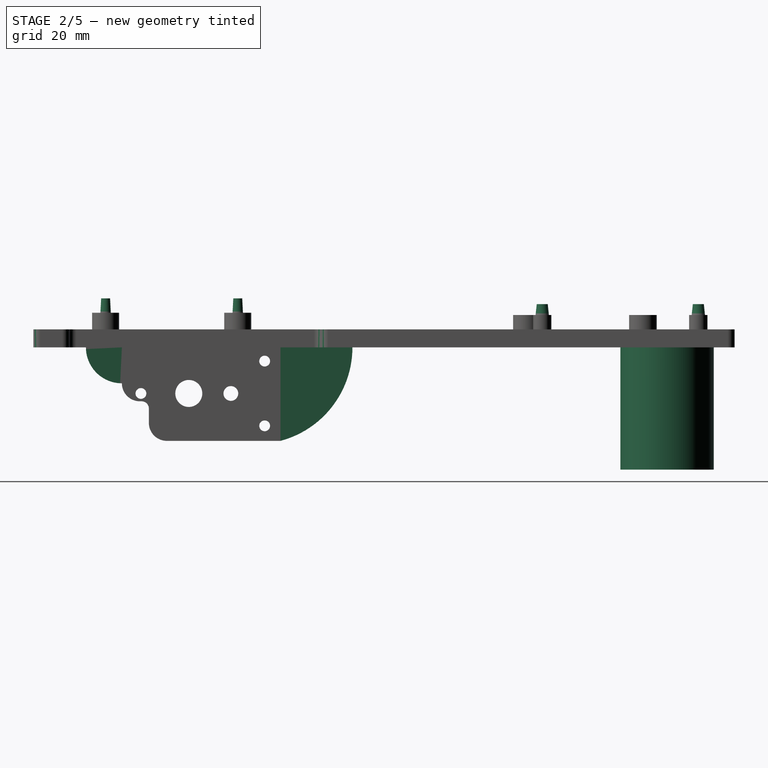
[diagram: stage 2 of 5 — right view after this stage's code; geometry added in this stage tinted green]
FEATURE [Sketcher::SketchObject] Sketch015
  ArcFitTolerance = 1e-06
  AttachmentSupport = -> [Pad010]
  ExternalBSplineMaxDegree = 5
  ExternalBSplineTolerance = 0.0001
  ExternalGeometry = -> [Binder]
  FixShape = 1
  FullyConstrained = true
  InternalTolerance = 1e-06
  InvalidShape = false
  MakeInternals = false
  MapMode = 5
  Placement = pos=(0,0,1.6) rot=(0,0,1;0rad)
  Support = -> [Pad010]
  TreeRank = 135
  ValidateShape = false
FEATURE [PartDesign::Pad] Pad011
  AddSubType = 0
  AlongSketchNormal = false
  AutoTaperInnerAngle = true
  BaseFeature = -> Pad010
  CheckUpToFaceLimits = true
  ClaimChildren = false
  Direction = (0,0,1)
  Fit = -0.2
  FitJoin = 0
  FixShape = 1
  InnerFit = 0
  InnerFitJoin = 0
  InvalidShape = false
  Length = 3
  Length2 = 10
  Linearize = true
  NewSolid = false
  Profile = -> Sketch015
  ReferenceAxis = -> Sketch015 [N_Axis]
  Suppress = false
  TaperAngle = -6
  TaperInnerAngle = 0
  TaperInnerAngleRev = 0
  TreeRank = 136
  Type = 0
  ValidateShape = true
  _ProfileBasedVersion = 1
FEATURE [Sketcher::SketchObject] Sketch016
  ArcFitTolerance = 1e-06
  AttachmentSupport = -> [Pad011]
  Exports = -> [Export006]
  ExternalBSplineMaxDegree = 5
  ExternalBSplineTolerance = 0.0001
  ExternalGeometry = -> [Binder002]
  FixShape = 1
  FullyConstrained = true
  InternalTolerance = 1e-06
  InvalidShape = false
  MakeInternals = false
  MapMode = 5
  Placement = pos=(0,5e-16,2.21364) rot=(0,0,1;0rad)
  Support = -> [Pad011]
  TreeRank = 137
  ValidateShape = false
  sketch-geometry (2):
    g0: Circle CenterX=-18.6363 CenterY=-116.158 CenterZ=0 NormalX=0 NormalY=0 NormalZ=1 AngleXU=0 Radius=2
    g1: Circle CenterX=18.7432 CenterY=-152.899 CenterZ=0 NormalX=0 NormalY=0 NormalZ=1 AngleXU=0 Radius=2
  constraints (5):
    c: Diameter(g-5) = 3.5
    c: Coincident(g0,g-3)
    c: Coincident(g1,g-6)
    c: Equal(g1,g0)
    c: Diameter(g0) = 4
FEATURE [Sketcher::SketchExport] Export006
  Base = -> Sketch016
  BaseRefs = -> Sketch016 [ExternalEdge3,ExternalEdge2]
  FixShape = 1
  InvalidShape = false
  Placement = pos=(0,5e-16,2.21364) rot=(0,0,1;0rad)
  Refs = ;e8.ExternalEdge3 | ;e7.ExternalEdge2
  SyncPlacement = true
  TreeRank = 138
  ValidateShape = false
FEATURE [PartDesign::Pocket] Pocket005
  AddSubType = 1
  AlongSketchNormal = false
  AutoTaperInnerAngle = true
  BaseFeature = -> Pad011
  CheckUpToFaceLimits = true
  ClaimChildren = false
  Direction = (0,-2e-16,-1)
  Fit = 0
  FitJoin = 0
  FixShape = 1
  InnerFit = 0
  InnerFitJoin = 0
  InvalidShape = false
  Length = 5
  Length2 = 10
  Linearize = true
  NewSolid = false
  Profile = -> Sketch016
  ReferenceAxis = -> Sketch016 [N_Axis]
  Suppress = false
  TaperInnerAngle = 0
  TaperInnerAngleRev = 0
  TreeRank = 139
  Type = 1
  ValidateShape = true
  _ProfileBasedVersion = 1
  _Version = 1
FEATURE [PartDesign::Pad] Pad012
  AddSubType = 0
  AlongSketchNormal = false
  AutoTaperInnerAngle = true
  BaseFeature = -> Pocket005
  CheckUpToFaceLimits = true
  ClaimChildren = false
  Direction = (0,2e-16,1)
  Fit = -0.3
  FitJoin = 0
  FixShape = 1
  InnerFit = 0
  InnerFitJoin = 0
  InvalidShape = false
  Length = 4
  Length2 = 10
  Linearize = true
  NewSolid = false
  Profile = -> Export006
  ReferenceAxis = -> Export006 [N_Axis]
  Suppress = false
  TaperAngle = -3
  TaperInnerAngle = 0
  TaperInnerAngleRev = 0
  TreeRank = 140
  Type = 0
  ValidateShape = true
  _ProfileBasedVersion = 1
FEATURE [PartDesign::Fillet] Fillet002
  AddSubType = 0
  Base = -> Pad012 [Edge100,Edge98,Edge96,Edge92,Edge88,Edge84,Edge80,Edge90,Edge94,Edge86,Edge82,Edge79]
  BaseFeature = -> Pad012
  FixShape = 1
  InvalidShape = false
  NewSolid = false
  Radius = 2
  SupportTransform = false
  Suppress = false
  TreeRank = 141
  UseAllEdges = false
  ValidateShape = true
FEATURE [Sketcher::SketchObject] Sketch017
  ArcFitTolerance = 1e-06
  AttachmentSupport = -> [Fillet002]
  ExternalBSplineMaxDegree = 5
  ExternalBSplineTolerance = 0.0001
  ExternalGeometry = -> [Fillet002]
  FixShape = 1
  FullyConstrained = true
  InternalTolerance = 1e-06
  InvalidShape = false
  MakeInternals = false
  MapMode = 5
  Placement = pos=(0,0,-2.4) rot=(0,0,1;0rad)
  Support = -> [Fillet002]
  TreeRank = 143
  ValidateShape = false
  sketch-geometry (12):
    g0: Circle CenterX=-37.5 CenterY=-168 CenterZ=0 NormalX=0 NormalY=0 NormalZ=1 AngleXU=0 Radius=1.5
    g1: LineSegment [constr] StartX=-47.5 StartY=-168 StartZ=0 EndX=47.5 EndY=-168 EndZ=0
    g2: Circle CenterX=-22.5 CenterY=-168 CenterZ=0 NormalX=0 NormalY=0 NormalZ=1 AngleXU=0 Radius=1.5
    g3: LineSegment [constr] StartX=-37.5 StartY=-168 StartZ=0 EndX=-22.5 EndY=-168 EndZ=0
    g4: Circle CenterX=-7.5 CenterY=-168 CenterZ=0 NormalX=0 NormalY=0 NormalZ=1 AngleXU=0 Radius=1.5
    g5: LineSegment [constr] StartX=-22.5 StartY=-168 StartZ=0 EndX=-7.5 EndY=-168 EndZ=0
    g6: Circle CenterX=7.5 CenterY=-168 CenterZ=0 NormalX=0 NormalY=0 NormalZ=1 AngleXU=0 Radius=1.5
    g7: LineSegment [constr] StartX=-7.5 StartY=-168 StartZ=0 EndX=7.5 EndY=-168 EndZ=0
    g8: Circle CenterX=22.5 CenterY=-168 CenterZ=0 NormalX=0 NormalY=0 NormalZ=1 AngleXU=0 Radius=1.5
    g9: LineSegment [constr] StartX=7.5 StartY=-168 StartZ=0 EndX=22.5 EndY=-168 EndZ=0
    g10: Circle CenterX=37.5 CenterY=-168 CenterZ=0 NormalX=0 NormalY=0 NormalZ=1 AngleXU=0 Radius=1.5
    g11: LineSegment [constr] StartX=22.5 StartY=-168 StartZ=0 EndX=37.5 EndY=-168 EndZ=0
  constraints (31):
    c: PointOnObject(g1,g-3)
    c: PointOnObject(g1,g-4)
    c: PointOnObject(g0,g1)
    c: Symmetric(g-3,g-3,g1)
    c: Diameter(g0) = 3
    c: Diameter(g2) = 3
    c: Coincident(g0,g3)
    c: Coincident(g2,g3)
    c: Angle(g3) = 0
    c: Diameter(g4) = 3
    c: Coincident(g2,g5)
    c: Coincident(g4,g5)
    c: Equal(g3,g5)
    c: Parallel(g5,g3)
    c: Diameter(g6) = 3
    c: Coincident(g4,g7)
    c: Coincident(g6,g7)
    c: Equal(g3,g7)
    c: Parallel(g7,g3)
    c: Diameter(g8) = 3
    c: Coincident(g6,g9)
    c: Coincident(g8,g9)
    c: Equal(g3,g9)
    c: Parallel(g9,g3)
    c: Diameter(g10) = 3
    c: Coincident(g8,g11)
    c: Coincident(g10,g11)
    c: Equal(g3,g11)
    c: Symmetric(g0,g10,g-2)
    c: DistanceX(g-3,g0) = 10
    c: DistanceX(g0,g2) = 15
FEATURE [PartDesign::Hole] Hole
  AddSubType = 1
  BaseFeature = -> Fillet002
  ClaimChildren = false
  CustomThreadClearance = 0
  Depth = 25
  DepthType = 0
  Diameter = 3.4
  DrillForDepth = false
  DrillPoint = 1
  DrillPointAngle = 118
  Fit = 0
  FitJoin = 0
  FixShape = 1
  HoleCutCountersinkAngle = 90
  HoleCutCustomValues = false
  HoleCutDepth = 0
  HoleCutDiameter = 6.1
  HoleCutType = 0
  InnerFit = 0
  InnerFitJoin = 0
  InvalidShape = false
  Linearize = true
  ModelThread = false
  NewSolid = false
  Profile = -> Sketch017
  Suppress = false
  Tapered = false
  TaperedAngle = 90
  ThreadClass = 0
  ThreadDepth = 25
  ThreadDepthType = 0
  ThreadDirection = 0
  ThreadFit = 0
  ThreadSize = 9
  ThreadType = 1
  Threaded = false
  TreeRank = 144
  UseCustomThreadClearance = false
  ValidateShape = true
  _ProfileBasedVersion = 1
FEATURE [Sketcher::SketchObject] Sketch018
  ArcFitTolerance = 1e-06
  AttachmentSupport = -> [Hole]
  ExternalBSplineMaxDegree = 5
  ExternalBSplineTolerance = 0.0001
  ExternalGeometry = -> [Hole]
  FixShape = 1
  FullyConstrained = true
  InternalTolerance = 1e-06
  InvalidShape = false
  MakeInternals = false
  MapMode = 5
  Placement = pos=(0,0,-7.4) rot=(1,0,0;3.14159rad)
  Support = -> [Hole]
  TreeRank = 145
  ValidateShape = false
  expr: Constraints[13] = <<Sizes>>.M3hex_width + 0.2
  sketch-geometry (35):
    g0: LineSegment StartX=-34.8 StartY=170.7 StartZ=0 EndX=-40.2 EndY=170.7 EndZ=0
    g1: LineSegment StartX=-40.2 StartY=170.7 StartZ=0 EndX=-40.2 EndY=165.3 EndZ=0
    g2: LineSegment StartX=-40.2 StartY=165.3 StartZ=0 EndX=-34.8 EndY=165.3 EndZ=0
    g3: LineSegment StartX=-34.8 StartY=165.3 StartZ=0 EndX=-34.8 EndY=170.7 EndZ=0
    g4: Circle [constr] CenterX=-37.5 CenterY=168 CenterZ=0 NormalX=0 NormalY=0 NormalZ=1 AngleXU=0 Radius=3.81838
    g5: LineSegment StartX=-19.8 StartY=170.7 StartZ=0 EndX=-25.2 EndY=170.7 EndZ=0
    g6: LineSegment StartX=-25.2 StartY=170.7 StartZ=0 EndX=-25.2 EndY=165.3 EndZ=0
    g7: LineSegment StartX=-25.2 StartY=165.3 StartZ=0 EndX=-19.8 EndY=165.3 EndZ=0
    g8: LineSegment StartX=-19.8 StartY=165.3 StartZ=0 EndX=-19.8 EndY=170.7 EndZ=0
    g9: Circle [constr] CenterX=-22.5 CenterY=168 CenterZ=0 NormalX=0 NormalY=0 NormalZ=1 AngleXU=0 Radius=3.81838
    g10: LineSegment [constr] StartX=-34.8 StartY=170.7 StartZ=0 EndX=-19.8 EndY=170.7 EndZ=0
    g11: LineSegment StartX=-4.8 StartY=170.7 StartZ=0 EndX=-10.2 EndY=170.7 EndZ=0
    g12: LineSegment StartX=-10.2 StartY=170.7 StartZ=0 EndX=-10.2 EndY=165.3 EndZ=0
    g13: LineSegment StartX=-10.2 StartY=165.3 StartZ=0 EndX=-4.8 EndY=165.3 EndZ=0
    g14: LineSegment StartX=-4.8 StartY=165.3 StartZ=0 EndX=-4.8 EndY=170.7 EndZ=0
    g15: Circle [constr] CenterX=-7.5 CenterY=168 CenterZ=0 NormalX=0 NormalY=0 NormalZ=1 AngleXU=0 Radius=3.81838
    g16: LineSegment [constr] StartX=-19.8 StartY=170.7 StartZ=0 EndX=-4.8 EndY=170.7 EndZ=0
    g17: LineSegment StartX=10.2 StartY=170.7 StartZ=0 EndX=4.8 EndY=170.7 EndZ=0
    g18: LineSegment StartX=4.8 StartY=170.7 StartZ=0 EndX=4.8 EndY=165.3 EndZ=0
    g19: LineSegment StartX=4.8 StartY=165.3 StartZ=0 EndX=10.2 EndY=165.3 EndZ=0
    g20: LineSegment StartX=10.2 StartY=165.3 StartZ=0 EndX=10.2 EndY=170.7 EndZ=0
    g21: Circle [constr] CenterX=7.5 CenterY=168 CenterZ=0 NormalX=0 NormalY=0 NormalZ=1 AngleXU=0 Radius=3.81838
    g22: LineSegment [constr] StartX=-4.8 StartY=170.7 StartZ=0 EndX=10.2 EndY=170.7 EndZ=0
    g23: LineSegment StartX=25.2 StartY=170.7 StartZ=0 EndX=19.8 EndY=170.7 EndZ=0
    g24: LineSegment StartX=19.8 StartY=170.7 StartZ=0 EndX=19.8 EndY=165.3 EndZ=0
    g25: LineSegment StartX=19.8 StartY=165.3 StartZ=0 EndX=25.2 EndY=165.3 EndZ=0
    g26: LineSegment StartX=25.2 StartY=165.3 StartZ=0 EndX=25.2 EndY=170.7 EndZ=0
    g27: Circle [constr] CenterX=22.5 CenterY=168 CenterZ=0 NormalX=0 NormalY=0 NormalZ=1 AngleXU=0 Radius=3.81838
    g28: LineSegment [constr] StartX=10.2 StartY=170.7 StartZ=0 EndX=25.2 EndY=170.7 EndZ=0
    g29: LineSegment StartX=40.2 StartY=170.7 StartZ=0 EndX=34.8 EndY=170.7 EndZ=0
    g30: LineSegment StartX=34.8 StartY=170.7 StartZ=0 EndX=34.8 EndY=165.3 EndZ=0
    g31: LineSegment StartX=34.8 StartY=165.3 StartZ=0 EndX=40.2 EndY=165.3 EndZ=0
    g32: LineSegment StartX=40.2 StartY=165.3 StartZ=0 EndX=40.2 EndY=170.7 EndZ=0
    g33: Circle [constr] CenterX=37.5 CenterY=168 CenterZ=0 NormalX=0 NormalY=0 NormalZ=1 AngleXU=0 Radius=3.81838
    g34: LineSegment [constr] StartX=25.2 StartY=170.7 StartZ=0 EndX=40.2 EndY=170.7 EndZ=0
  constraints (98):
    c: Coincident(g0,g1)
    c: Coincident(g1,g2)
    c: Coincident(g2,g3)
    c: Coincident(g3,g0)
    c: Equal(g0,g1)
    c: Equal(g0,g2)
    c: Equal(g0,g3)
    c: PointOnObject(g0,g4)
    c: PointOnObject(g1,g4)
    c: PointOnObject(g2,g4)
    c: PointOnObject(g3,g4)
    c: Coincident(g4,g-3)
    c: Horizontal(g0)
    c: DistanceX(g0,g0) = 5.4
    c: Coincident(g5,g6)
    c: Coincident(g6,g7)
    c: Coincident(g7,g8)
    c: Coincident(g8,g5)
    c: Equal(g5,g6)
    c: Equal(g5,g7)
    c: Equal(g5,g8)
    c: PointOnObject(g5,g9)
    c: PointOnObject(g6,g9)
    c: PointOnObject(g7,g9)
    c: PointOnObject(g8,g9)
    c: Horizontal(g5)
    c: DistanceX(g5,g5) = 5.4
    c: Coincident(g0,g10)
    c: Coincident(g5,g10)
    c: Coincident(g11,g12)
    c: Coincident(g12,g13)
    c: Coincident(g13,g14)
    c: Coincident(g14,g11)
    c: Equal(g11,g12)
    c: Equal(g11,g13)
    c: Equal(g11,g14)
    c: PointOnObject(g11,g15)
    c: PointOnObject(g12,g15)
    c: PointOnObject(g13,g15)
    c: PointOnObject(g14,g15)
    c: Horizontal(g11)
    c: DistanceX(g11,g11) = 5.4
    c: Coincident(g5,g16)
    c: Coincident(g11,g16)
    c: Equal(g10,g16)
    c: Parallel(g16,g10)
    c: Coincident(g17,g18)
    c: Coincident(g18,g19)
    c: Coincident(g19,g20)
    c: Coincident(g20,g17)
    c: Equal(g17,g18)
    c: Equal(g17,g19)
    c: Equal(g17,g20)
    c: PointOnObject(g17,g21)
    c: PointOnObject(g18,g21)
    c: PointOnObject(g19,g21)
    c: PointOnObject(g20,g21)
    c: Horizontal(g17)
    c: DistanceX(g17,g17) = 5.4
    c: Coincident(g11,g22)
    c: Coincident(g17,g22)
    c: Equal(g10,g22)
    c: Parallel(g22,g10)
    c: Coincident(g23,g24)
    c: Coincident(g24,g25)
    c: Coincident(g25,g26)
    c: Coincident(g26,g23)
    c: Equal(g23,g24)
    c: Equal(g23,g25)
    c: Equal(g23,g26)
    c: PointOnObject(g23,g27)
    c: PointOnObject(g24,g27)
    c: PointOnObject(g25,g27)
    c: PointOnObject(g26,g27)
    c: Horizontal(g23)
    c: DistanceX(g23,g23) = 5.4
    c: Coincident(g17,g28)
    c: Coincident(g23,g28)
    c: Equal(g10,g28)
    c: Parallel(g28,g10)
    c: Coincident(g29,g30)
    c: Coincident(g30,g31)
    c: Coincident(g31,g32)
    c: Coincident(g32,g29)
    c: Equal(g29,g30)
    c: Equal(g29,g31)
    c: Equal(g29,g32)
    c: PointOnObject(g29,g33)
    c: PointOnObject(g30,g33)
    c: PointOnObject(g31,g33)
    c: PointOnObject(g32,g33)
    c: Horizontal(g29)
    c: DistanceX(g29,g29) = 5.4
    c: Coincident(g23,g34)
    c: Coincident(g29,g34)
    c: Equal(g10,g34)
    c: Parallel(g34,g10)
    c: Coincident(g-4,g33)
FEATURE [PartDesign::Pocket] Pocket006
  AddSubType = 1
  AlongSketchNormal = false
  AutoTaperInnerAngle = true
  BaseFeature = -> Hole
  CheckUpToFaceLimits = true
  ClaimChildren = false
  Direction = (0,0,1)
  Fit = 0
  FitJoin = 0
  FixShape = 1
  InnerFit = 0
  InnerFitJoin = 0
  InvalidShape = false
  Length = 2.3
  Length2 = 10
  Linearize = true
  NewSolid = false
  Profile = -> Sketch018
  ReferenceAxis = -> Sketch018 [N_Axis]
  Suppress = false
  TaperInnerAngle = 0
  TaperInnerAngleRev = 0
  TreeRank = 146
  Type = 0
  ValidateShape = true
  _ProfileBasedVersion = 1
  _Version = 1
  expr: Length = <<Sizes>>.M3hex_height + 0.1
FEATURE [Sketcher::SketchObject] Sketch019
  ArcFitTolerance = 1e-06
  AttachmentSupport = -> [Pocket006]
  Exports = -> [Export007,Export008,Export009]
  ExternalBSplineMaxDegree = 5
  ExternalBSplineTolerance = 0.0001
  ExternalGeometry = -> [Pocket006]
  FixShape = 1
  FullyConstrained = true
  InternalTolerance = 1e-06
  InvalidShape = false
  MakeInternals = false
  MapMode = 5
  Placement = pos=(0,0,-7.4) rot=(1,0,0;3.14159rad)
  Support = -> [Pocket006]
  TreeRank = 147
  ValidateShape = false
  sketch-geometry (21):
    g0: LineSegment StartX=-7.5 StartY=104.275 StartZ=0 EndX=7.5 EndY=104.275 EndZ=0
    g1: LineSegment StartX=7.5 StartY=104.275 StartZ=0 EndX=7.5 EndY=84.275 EndZ=0
    g2: LineSegment StartX=7.5 StartY=84.275 StartZ=0 EndX=-7.5 EndY=84.275 EndZ=0
    g3: LineSegment StartX=-7.5 StartY=84.275 StartZ=0 EndX=-7.5 EndY=104.275 EndZ=0
    g4: LineSegment StartX=-13 StartY=148.375 StartZ=0 EndX=-5 EndY=148.375 EndZ=0
    g5: LineSegment StartX=-5 StartY=148.375 StartZ=0 EndX=-5 EndY=158.375 EndZ=0
    g6: LineSegment StartX=-5 StartY=158.375 StartZ=0 EndX=-13 EndY=158.375 EndZ=0
    g7: LineSegment StartX=-13 StartY=158.375 StartZ=0 EndX=-13 EndY=148.375 EndZ=0
    g8: LineSegment StartX=5 StartY=148.375 StartZ=0 EndX=13 EndY=148.375 EndZ=0
    g9: LineSegment StartX=13 StartY=148.375 StartZ=0 EndX=13 EndY=158.375 EndZ=0
    g10: LineSegment StartX=13 StartY=158.375 StartZ=0 EndX=5 EndY=158.375 EndZ=0
    g11: LineSegment StartX=5 StartY=158.375 StartZ=0 EndX=5 EndY=148.375 EndZ=0
    g12: Circle [constr] CenterX=-3.75 CenterY=94.275 CenterZ=0 NormalX=0 NormalY=0 NormalZ=1 AngleXU=0 Radius=2
    g13: Circle [constr] CenterX=3.75 CenterY=94.275 CenterZ=0 NormalX=0 NormalY=0 NormalZ=1 AngleXU=0 Radius=2
    g14: LineSegment [constr] StartX=-7.5 StartY=94.275 StartZ=0 EndX=7.5 EndY=94.275 EndZ=0
    g15: LineSegment [constr] StartX=-3.75 StartY=94.275 StartZ=0 EndX=-3.75 EndY=84.275 EndZ=0
    g16: GeomPoint [constr] X=0 Y=84.275 Z=0
    g17: Circle [constr] CenterX=-9 CenterY=153.375 CenterZ=0 NormalX=0 NormalY=0 NormalZ=1 AngleXU=0 Radius=2
    g18: Circle [constr] CenterX=9 CenterY=153.375 CenterZ=0 NormalX=0 NormalY=0 NormalZ=1 AngleXU=0 Radius=2
    g19: LineSegment [constr] StartX=-13 StartY=153.375 StartZ=0 EndX=13 EndY=153.375 EndZ=0
    g20: LineSegment [constr] StartX=-9 StartY=158.375 StartZ=0 EndX=-9 EndY=148.375 EndZ=0
  constraints (57):
    c: Coincident(g0,g1)
    c: Coincident(g1,g2)
    c: Coincident(g2,g3)
    c: Coincident(g3,g0)
    c: Horizontal(g0)
    c: Vertical(g1)
    c: Vertical(g3)
    c: PointOnObject(g0,g-3)
    c: Coincident(g4,g5)
    c: Coincident(g5,g6)
    c: Coincident(g6,g7)
    c: Coincident(g7,g4)
    c: Horizontal(g4)
    c: Horizontal(g6)
    c: Vertical(g5)
    c: Vertical(g7)
    c: PointOnObject(g4,g-4)
    c: Coincident(g8,g9)
    c: Coincident(g9,g10)
    c: Coincident(g10,g11)
    c: Coincident(g11,g8)
    c: Horizontal(g8)
    c: Horizontal(g10)
    c: Vertical(g9)
    c: Vertical(g11)
    c: Symmetric(g2,g1,g-2)
    c: Equal(g6,g10)
    c: Equal(g11,g5)
    c: Symmetric(g4,g8,g-2)
    c: Equal(g12,g13)
    c: Symmetric(g12,g13,g-2)
    c: Diameter(g12) = 4
    c: PointOnObject(g14,g3)
    c: PointOnObject(g14,g1)
    c: Symmetric(g0,g2,g14)
    c: PointOnObject(g12,g14)
    c: Coincident(g15,g12)
    c: PointOnObject(g15,g2)
    c: Vertical(g15)
    c: PointOnObject(g16,g-2)
    c: Symmetric(g16,g2,g15)
    c: DistanceX(g2,g2) = 15
    c: DistanceY(g3,g3) = 20
    c: PointOnObject(g19,g7)
    c: PointOnObject(g19,g9)
    c: PointOnObject(g20,g6)
    c: PointOnObject(g20,g4)
    c: Symmetric(g4,g6,g19)
    c: Symmetric(g4,g4,g20)
    c: PointOnObject(g17,g20)
    c: PointOnObject(g18,g19)
    c: Equal(g18,g17)
    c: Equal(g17,g13)
    c: Symmetric(g17,g18,g-2)
    c: DistanceX(g5,g10) = 10
    c: DistanceX(g6,g6) = 8
    c: DistanceY(g7,g7) = 10
FEATURE [Sketcher::SketchExport] Export007
  Base = -> Sketch019
  BaseRefs = -> Sketch019 [edge18,edge19,edge13,edge14]
  FixShape = 1
  InvalidShape = false
  Placement = pos=(0,0,-7.4) rot=(1,0,0;3.14159rad)
  Refs = ;g20.edge18 | ;g21.edge19 | ;g15.edge13 | ;g16.edge14
  SyncPlacement = true
  TreeRank = 148
  ValidateShape = false
FEATURE [Sketcher::SketchExport] Export008
  Base = -> Sketch019
  BaseRefs = -> Sketch019 [edge4,edge1,edge2,edge3]
  FixShape = 1
  InvalidShape = false
  Placement = pos=(0,0,-7.4) rot=(1,0,0;3.14159rad)
  Refs = ;g6.edge4 | ;g3.edge1 | ;g4.edge2 | ;g5.edge3
  SyncPlacement = true
  TreeRank = 149
  ValidateShape = false
FEATURE [PartDesign::Pad] Pad013
  AddSubType = 0
  AlongSketchNormal = false
  AutoTaperInnerAngle = true
  BaseFeature = -> Pocket006
  CheckUpToFaceLimits = true
  ClaimChildren = false
  Direction = (0,0,-1)
  Fit = 0
  FitJoin = 0
  FixShape = 1
  InnerFit = 0
  InnerFitJoin = 0
  InvalidShape = false
  Length = 10
  Length2 = 10
  Linearize = true
  NewSolid = false
  Profile = -> Export008
  ReferenceAxis = -> Export008 [N_Axis]
  Suppress = false
  TaperInnerAngle = 0
  TaperInnerAngleRev = 0
  TreeRank = 151
  Type = 3
  UpToFace = -> Pocket006 [Face83]
  ValidateShape = true
  _ProfileBasedVersion = 1
FEATURE [Sketcher::SketchExport] Export009
  Base = -> Sketch019
  BaseRefs = -> Sketch019 [edge5,edge9,edge10,edge12,edge11,edge6,edge7,edge8]
  FixShape = 1
  InvalidShape = false
  Placement = pos=(0,0,-7.4) rot=(1,0,0;3.14159rad)
  Refs = ;g7.edge5 | ;g11.edge9 | ;g12.edge10 | ;g14.edge12 | ;g13.edge11 | ;g8.edge6 | ;g9.edge7 | ;g10.edge8
  SyncPlacement = true
  TreeRank = 152
  ValidateShape = false
FEATURE [PartDesign::Pad] Pad014
  AddSubType = 0
  AlongSketchNormal = false
  AutoTaperInnerAngle = true
  BaseFeature = -> Pad013
  CheckUpToFaceLimits = true
  ClaimChildren = false
  Direction = (0,0,-1)
  Fit = 0
  FitJoin = 0
  FixShape = 1
  InnerFit = 0
  InnerFitJoin = 0
  InvalidShape = false
  Length = 10
  Length2 = 10
  Linearize = true
  NewSolid = false
  Profile = -> Export009
  ReferenceAxis = -> Export009 [N_Axis]
  Suppress = false
  TaperInnerAngle = 0
  TaperInnerAngleRev = 0
  TreeRank = 153
  Type = 0
  ValidateShape = true
  _ProfileBasedVersion = 1
FEATURE [Sketcher::SketchObject] Sketch020
  ArcFitTolerance = 1e-06
  AttachmentSupport = -> [Pad014]
  ExternalBSplineMaxDegree = 5
  ExternalBSplineTolerance = 0.0001
  ExternalGeometry = -> [Pad014]
  FixShape = 1
  FullyConstrained = true
  InternalTolerance = 1e-06
  InvalidShape = false
  MakeInternals = false
  MapMode = 5
  Placement = pos=(-13,0,0) rot=(0.57735,-0.57735,-0.57735;2.0944rad)
  Support = -> [Pad014]
  TreeRank = 154
  ValidateShape = false
  sketch-geometry (1):
    g0: ArcOfCircle CenterX=148.375 CenterY=-7.4 CenterZ=0 NormalX=0 NormalY=0 NormalZ=1 AngleXU=0 Radius=10 StartAngle=4.71239 EndAngle=6.28319
  constraints (2):
    c: Coincident(g0,g-3)
    c: Tangent(g0,g-4) = 1.5708
FEATURE [PartDesign::Pocket] Pocket007
  AddSubType = 1
  AlongSketchNormal = false
  AutoTaperInnerAngle = true
  BaseFeature = -> Pad014
  CheckUpToFaceLimits = true
  ClaimChildren = false
  Direction = (1,0,0)
  Fit = 0
  FitJoin = 0
  FixShape = 1
  InnerFit = 0
  InnerFitJoin = 0
  InvalidShape = false
  Length = 0
  Length2 = 10
  Linearize = true
  NewSolid = false
  Profile = -> Sketch020
  ReferenceAxis = -> Sketch020 [N_Axis]
  Refine = true
  Suppress = false
  TaperInnerAngle = 0
  TaperInnerAngleRev = 0
  TreeRank = 155
  Type = 3
  UpToFace = -> Pad014 [Face65]
  ValidateShape = true
  _ProfileBasedVersion = 1
  _Version = 1
FEATURE [Sketcher::SketchObject] Sketch021
  ArcFitTolerance = 1e-06
  AttachmentSupport = -> [Pocket007]
  ExternalBSplineMaxDegree = 5
  ExternalBSplineTolerance = 0.0001
  ExternalGeometry = -> [Pocket007]
  FixShape = 1
  FullyConstrained = true
  InternalTolerance = 1e-06
  InvalidShape = false
  MakeInternals = false
  MapMode = 5
  Placement = pos=(-7.5,0,0) rot=(0.57735,-0.57735,-0.57735;2.0944rad)
  Support = -> [Pocket007]
  TreeRank = 156
  ValidateShape = false
  sketch-geometry (1):
    g0: ArcOfCircle CenterX=111.175 CenterY=-7.4 CenterZ=0 NormalX=0 NormalY=0 NormalZ=1 AngleXU=0 Radius=26.9 StartAngle=3.14159 EndAngle=4.45298
  constraints (2):
    c: Tangent(g0,g-3) = -1.5708
    c: Coincident(g0,g-4)
FEATURE [PartDesign::Pocket] Pocket008
  AddSubType = 1
  AlongSketchNormal = false
  AutoTaperInnerAngle = true
  BaseFeature = -> Pocket007
  CheckUpToFaceLimits = true
  ClaimChildren = false
  Direction = (1,0,0)
  Fit = 0
  FitJoin = 0
  FixShape = 1
  InnerFit = 0
  InnerFitJoin = 0
  InvalidShape = false
  Length = 5
  Length2 = 10
  Linearize = true
  NewSolid = false
  Profile = -> Sketch021
  ReferenceAxis = -> Sketch021 [N_Axis]
  Suppress = false
  TaperInnerAngle = 0
  TaperInnerAngleRev = 0
  TreeRank = 157
  Type = 2
  ValidateShape = true
  _ProfileBasedVersion = 1
  _Version = 1
FEATURE [Sketcher::SketchObject] Sketch022
  ArcFitTolerance = 1e-06
  AttachmentSupport = -> [Pocket008]
  ExternalBSplineMaxDegree = 5
  ExternalBSplineTolerance = 0.0001
  ExternalGeometry = -> [Export007]
  FixShape = 1
  FullyConstrained = true
  InternalTolerance = 1e-06
  InvalidShape = false
  MakeInternals = false
  MapMode = 5
  Placement = pos=(0,0,-33.4) rot=(1,0,0;3.14159rad)
  Support = -> [Pocket008]
  TreeRank = 158
  ValidateShape = false
FEATURE [PartDesign::Hole] Hole001
  AddSubType = 1
  BaseFeature = -> Pocket008
  ClaimChildren = false
  CustomThreadClearance = 0
  Depth = 445.405
  DepthType = 1
  Diameter = 3.4
  DrillForDepth = false
  DrillPoint = 1
  DrillPointAngle = 118
  Fit = 0
  FitJoin = 0
  FixShape = 1
  HoleCutCountersinkAngle = 90
  HoleCutCustomValues = false
  HoleCutDepth = 22.3
  HoleCutDiameter = 6.3
  HoleCutType = 1
  InnerFit = 0
  InnerFitJoin = 0
  InvalidShape = false
  Linearize = true
  ModelThread = false
  NewSolid = false
  Profile = -> Sketch022
  Suppress = false
  Tapered = false
  TaperedAngle = 90
  ThreadClass = 0
  ThreadDepth = 445.405
  ThreadDepthType = 0
  ThreadDirection = 0
  ThreadFit = 0
  ThreadSize = 9
  ThreadType = 1
  Threaded = false
  TreeRank = 159
  UseCustomThreadClearance = false
  ValidateShape = true
  _ProfileBasedVersion = 1
  expr: HoleCutDiameter = 6.3
FEATURE [Sketcher::SketchObject] Sketch023
  ArcFitTolerance = 1e-06
  AttachmentSupport = -> [Hole001]
  ExternalBSplineMaxDegree = 5
  ExternalBSplineTolerance = 0.0001
  ExternalGeometry = -> [Binder003]
  FixShape = 1
  FullyConstrained = true
  InternalTolerance = 1e-06
  InvalidShape = false
  MakeInternals = false
  MapMode = 5
  Placement = pos=(0,0,-7.4) rot=(1,0,0;3.14159rad)
  Support = -> [Hole001]
  TreeRank = 162
  ValidateShape = false
  sketch-geometry (2):
    g0: Circle [constr] CenterX=5e-16 CenterY=-3.2 CenterZ=0 NormalX=0 NormalY=0 NormalZ=1 AngleXU=0 Radius=7.99751
    g1: Circle CenterX=0 CenterY=-3.2 CenterZ=0 NormalX=0 NormalY=0 NormalZ=1 AngleXU=0 Radius=13
  constraints (4):
    c: Coincident(g0,g-3)
    c: PointOnObject(g-3,g0)
    c: Coincident(g1,g-3)
    c: Diameter(g1) = 26
FEATURE [PartDesign::Pad] Pad015
  AddSubType = 0
  AlongSketchNormal = false
  AutoTaperInnerAngle = true
  BaseFeature = -> Hole001
  CheckUpToFaceLimits = true
  ClaimChildren = false
  Direction = (0,0,-1)
  Fit = 0
  FitJoin = 0
  FixShape = 1
  InnerFit = 0
  InnerFitJoin = 0
  InvalidShape = false
  Length = 34
  Length2 = 10
  Linearize = true
  NewSolid = false
  Profile = -> Sketch023
  ReferenceAxis = -> Sketch023 [N_Axis]
  Suppress = false
  TaperInnerAngle = 0
  TaperInnerAngleRev = 0
  TreeRank = 163
  Type = 0
  ValidateShape = true
  _ProfileBasedVersion = 1
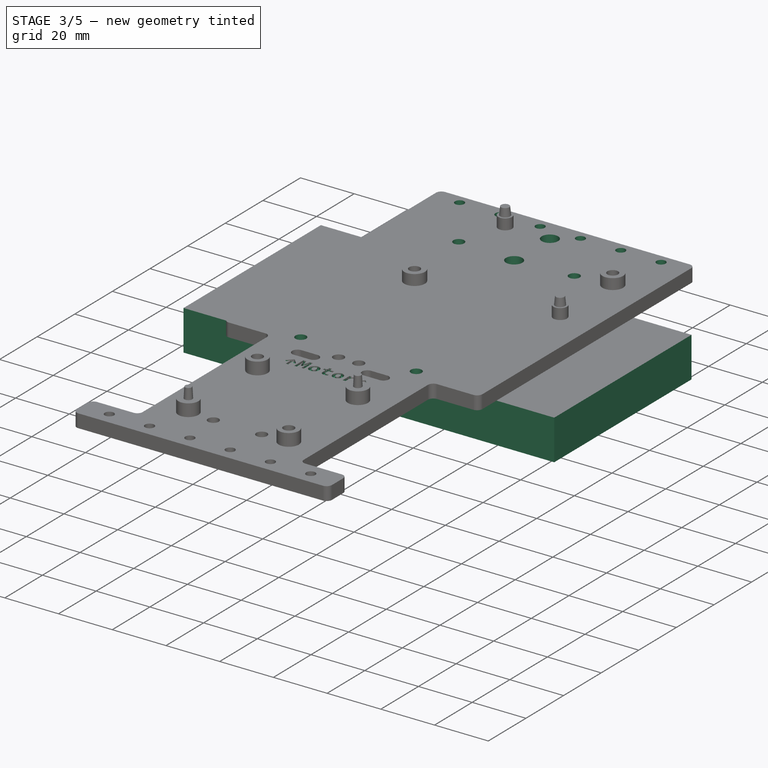
[diagram: stage 3 of 5 — iso view after this stage's code; geometry added in this stage tinted green]
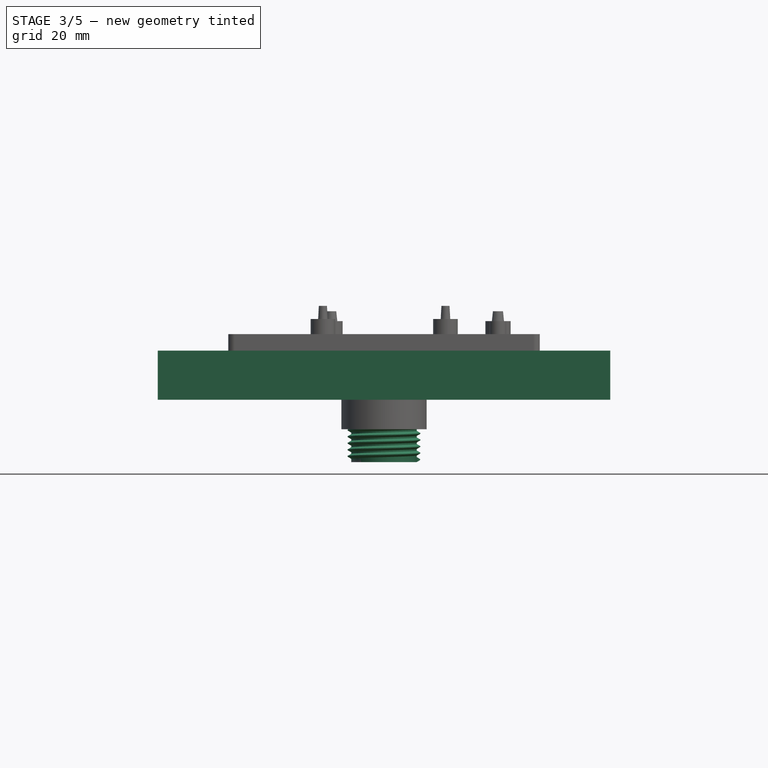
[diagram: stage 3 of 5 — front view after this stage's code; geometry added in this stage tinted green]
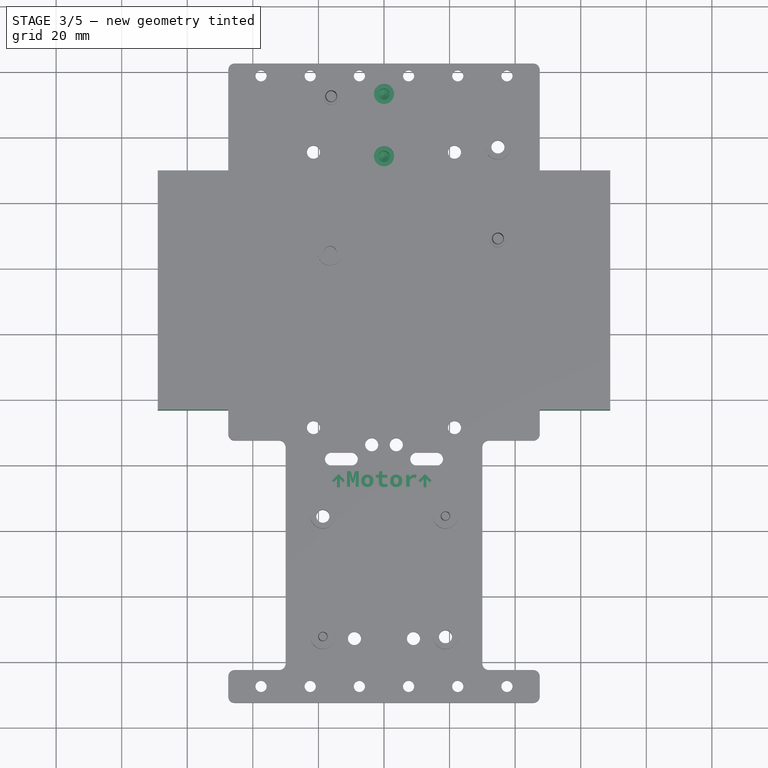
[diagram: stage 3 of 5 — top view after this stage's code; geometry added in this stage tinted green]
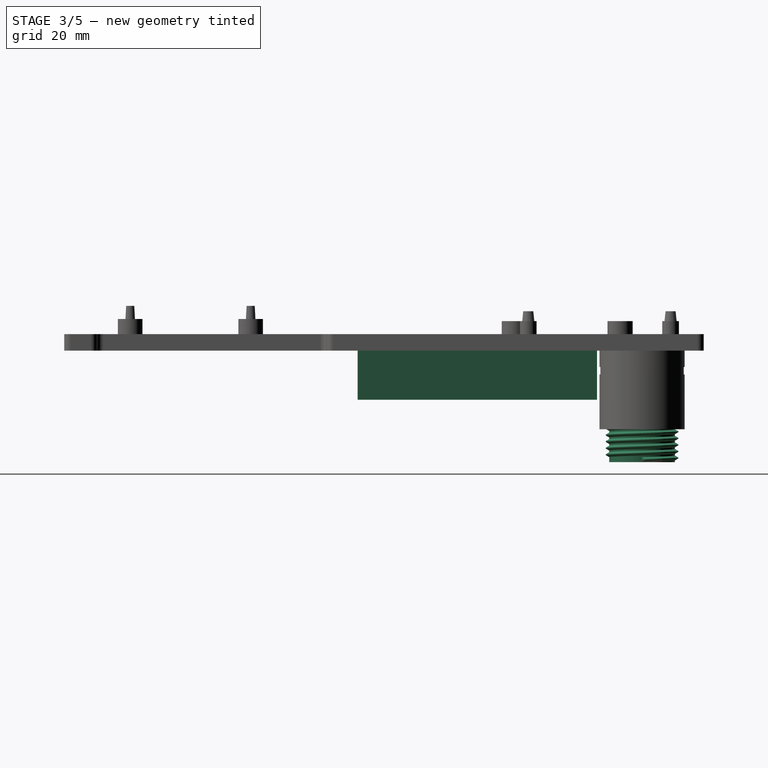
[diagram: stage 3 of 5 — right view after this stage's code; geometry added in this stage tinted green]
FEATURE [PartDesign::Body] Body004  label="MotorMount_RightPart"
  AutoGroupSolids = false
  BaseFeature = -> BaseFeature002
  ClaimAllChildren = false
  ExportMode = 0
  FixShape = 1
  Group = -> [BaseFeature002,Sketch035,Hole004]
  InvalidShape = false
  Origin = -> Origin006
  Tip = -> Hole004
  TreeRank = 242
  ValidateShape = false
  _ExportChildren = -> [BaseFeature002,Hole004]
  _GroupVersion = 1
FEATURE [PartDesign::SubShapeBinder] BaseFeature003  label="BaseFeature003(Split_i2)"
  BindCopyOnChange = 0
  BindMode = 0
  ClaimChildren = false
  Context = -> Group002 [Body005.BaseFeature003.]
  EdgeTolerance = 1e-06
  FillStyle = 0
  FixShape = 1
  Fuse = true
  InvalidShape = false
  MakeFace = true
  MergeEdges = true
  OffsetFill = false
  OffsetIntersection = false
  OffsetJoinType = 0
  OffsetOpenResult = false
  Outline = false
  PartialLoad = false
  Relative = true
  SplitEdges = false
  Support = -> [Body[Split_i2.]]
  TightBound = false
  TreeRank = 256
  ValidateShape = false
  _Version = 8
FEATURE [PartDesign::Body] Body005  label="KulSuport"
  AutoGroupSolids = false
  BaseFeature = -> BaseFeature003
  ClaimAllChildren = false
  ExportMode = 0
  FixShape = 1
  Group = -> [BaseFeature003]
  InvalidShape = false
  Origin = -> Origin007
  Tip = -> BaseFeature003
  TreeRank = 255
  ValidateShape = false
  _ExportChildren = -> [BaseFeature003]
  _GroupVersion = 1
FEATURE [PartDesign::SubShapeBinder] Binder005  label="Binder005(KulSuport)"
  BindCopyOnChange = 0
  BindMode = 0
  ClaimChildren = false
  Context = -> Group002 [Body006.Binder005.]
  EdgeTolerance = 1e-06
  FillStyle = 0
  FixShape = 1
  Fuse = false
  InvalidShape = false
  MakeFace = true
  MergeEdges = true
  OffsetFill = false
  OffsetIntersection = false
  OffsetJoinType = 0
  OffsetOpenResult = false
  Outline = false
  PartialLoad = false
  Relative = true
  SplitEdges = false
  Support = -> [Body005]
  TightBound = false
  TreeRank = 267
  ValidateShape = false
  _Version = 8
FEATURE [PartDesign::SubShapeBinder] Binder006  label="Binder006(Spelkula)"
  BindCopyOnChange = 0
  BindMode = 0
  ClaimChildren = false
  Context = -> Group002 [Body006.Binder006.]
  EdgeTolerance = 1e-06
  FillStyle = 0
  FixShape = 1
  Fuse = false
  InvalidShape = false
  MakeFace = true
  MergeEdges = true
  OffsetFill = false
  OffsetIntersection = false
  OffsetJoinType = 0
  OffsetOpenResult = false
  Outline = false
  PartialLoad = false
  Relative = true
  SplitEdges = false
  Support = -> [Sphere]
  TightBound = false
  TreeRank = 268
  ValidateShape = false
  _Version = 8
FEATURE [PartDesign::Plane] DatumPlane006
  AttachmentOffset = pos=(0,0,0) rot=(0,1,0;1.5708rad)
  AttachmentSupport = -> [Binder005]
  FixShape = 1
  InvalidShape = false
  Length = 41.5
  MapMode = 11
  MinimumLength = 10
  MinimumWidth = 10
  Placement = pos=(0,3.2,-7.4) rot=(0.57735,-0.57735,0.57735;2.0944rad)
  ResizeMode = 0
  Support = -> [Binder005]
  TreeRank = 269
  ValidateShape = false
  Width = 30
FEATURE [PartDesign::SubShapeBinder] Binder007  label="Binder007(Robot)..."
  BindCopyOnChange = 0
  BindMode = 0
  ClaimChildren = false
  Context = -> Group001 [Body007.Binder007.]
  EdgeTolerance = 1e-06
  FillStyle = 0
  FixShape = 1
  Fuse = false
  InvalidShape = false
  MakeFace = true
  MergeEdges = true
  OffsetFill = false
  OffsetIntersection = false
  OffsetJoinType = 0
  OffsetOpenResult = false
  Outline = false
  PartialLoad = false
  Relative = true
  SplitEdges = false
  Support = -> [Body,Body005,Body003,Body004]
  TightBound = false
  TreeRank = 289
  ValidateShape = false
  _Version = 8
FEATURE [PartDesign::SubShapeBinder] Binder008  label="Binder008(Arduino)..."
  BindCopyOnChange = 0
  BindMode = 0
  ClaimChildren = false
  Context = -> Group001 [Body007.Binder008.]
  EdgeTolerance = 1e-06
  FillStyle = 0
  FixShape = 1
  Fuse = false
  InvalidShape = false
  MakeFace = true
  MergeEdges = true
  OffsetFill = false
  OffsetIntersection = false
  OffsetJoinType = 0
  OffsetOpenResult = false
  Outline = false
  PartialLoad = false
  Relative = true
  SplitEdges = false
  Support = -> [Part,Part001]
  TightBound = false
  TreeRank = 290
  ValidateShape = false
  _Version = 8
FEATURE [Part::SubShapeBinder] Import002  label="Import002(Pocket012)"
  BindCopyOnChange = 0
  BindMode = 0
  ClaimChildren = false
  Context = -> Group001 [Body007.Import002.]
  EdgeTolerance = 1e-06
  FillStyle = 0
  FixShape = 1
  Fuse = false
  InvalidShape = false
  MakeFace = false
  MergeEdges = true
  OffsetFill = false
  OffsetIntersection = false
  OffsetJoinType = 0
  OffsetOpenResult = false
  Outline = false
  PartialLoad = false
  Relative = true
  SplitEdges = false
  Support = -> [Body[Pocket012.]]
  TightBound = false
  TreeRank = 291
  ValidateShape = false
  _Version = 8
FEATURE [Sketcher::SketchObject] Sketch040
  ArcFitTolerance = 1e-06
  AttachmentSupport = -> [Import002]
  ExternalBSplineMaxDegree = 5
  ExternalBSplineTolerance = 0.0001
  ExternalGeometry = -> [Import002]
  FixShape = 1
  FullyConstrained = true
  InternalTolerance = 1e-06
  InvalidShape = false
  MakeInternals = false
  MapMode = 5
  Placement = pos=(0,0,-7.4) rot=(1,0,0;3.14159rad)
  Support = -> [Import002]
  TreeRank = 292
  ValidateShape = false
  sketch-geometry (9):
    g0: LineSegment StartX=-69 StartY=83.5375 StartZ=0 EndX=69 EndY=83.5375 EndZ=0
    g1: LineSegment StartX=69 StartY=83.5375 StartZ=0 EndX=69 EndY=10.5375 EndZ=0
    g2: LineSegment StartX=69 StartY=10.5375 StartZ=0 EndX=-69 EndY=10.5375 EndZ=0
    g3: LineSegment StartX=-69 StartY=10.5375 StartZ=0 EndX=-69 EndY=83.5375 EndZ=0
    g4: LineSegment [constr] StartX=-7.5 StartY=84.275 StartZ=0 EndX=-1.02052e-11 EndY=84.275 EndZ=0
    g5: LineSegment [constr] StartX=-1.0205e-11 StartY=84.275 StartZ=0 EndX=0 EndY=9.8 EndZ=0
    g6: LineSegment [constr] StartX=0 StartY=9.8 StartZ=0 EndX=-7.5 EndY=9.8 EndZ=0
    g7: LineSegment [constr] StartX=-7.5 StartY=9.8 StartZ=0 EndX=-7.5 EndY=84.275 EndZ=0
    g8: LineSegment [constr] StartX=-5.205e-12 StartY=47.0375 StartZ=0 EndX=69 EndY=47.0375 EndZ=0
  constraints (24):
    c: Coincident(g0,g1)
    c: Coincident(g1,g2)
    c: Coincident(g2,g3)
    c: Coincident(g3,g0)
    c: Horizontal(g0)
    c: Vertical(g1)
    c: Vertical(g3)
    c: Symmetric(g2,g1,g-2)
    c: DistanceY(g3,g3) = 73
    c: DistanceX(g0,g0) = 138
    c: Coincident(g4,g5)
    c: Coincident(g5,g6)
    c: Coincident(g6,g7)
    c: Coincident(g7,g4)
    c: Horizontal(g4)
    c: Horizontal(g6)
    c: Vertical(g7)
    c: Coincident(g4,g-3)
    c: PointOnObject(g5,g-4)
    c: PointOnObject(g5,g-2)
    c: PointOnObject(g8,g5)
    c: PointOnObject(g8,g1)
    c: Symmetric(g1,g0,g8)
    c: Symmetric(g5,g4,g8)
FEATURE [PartDesign::Pad] Pad018
  AddSubType = 0
  AlongSketchNormal = false
  AutoTaperInnerAngle = true
  CheckUpToFaceLimits = true
  ClaimChildren = false
  Direction = (0,0,-1)
  Fit = 0
  FitJoin = 0
  FixShape = 1
  InnerFit = 0
  InnerFitJoin = 0
  InvalidShape = false
  Length = 15
  Length2 = 10
  Linearize = true
  NewSolid = false
  Profile = -> Sketch040
  ReferenceAxis = -> Sketch040 [N_Axis]
  Suppress = false
  TaperInnerAngle = 0
  TaperInnerAngleRev = 0
  TreeRank = 293
  Type = 0
  ValidateShape = true
  _ProfileBasedVersion = 1
FEATURE [Sketcher::SketchObject] Sketch024
  ArcFitTolerance = 1e-06
  AttachmentSupport = -> [Pad015]
  ExternalBSplineMaxDegree = 5
  ExternalBSplineTolerance = 0.0001
  ExternalGeometry = -> [Pad015]
  FixShape = 1
  FullyConstrained = true
  InternalTolerance = 1e-06
  InvalidShape = false
  MakeInternals = false
  MapMode = 5
  Placement = pos=(0,0,-41.4) rot=(1,0,0;3.14159rad)
  Support = -> [Pad015]
  TreeRank = 164
  ValidateShape = false
  sketch-geometry (1):
    g0: Circle CenterX=0 CenterY=-3.2 CenterZ=0 NormalX=0 NormalY=0 NormalZ=1 AngleXU=0 Radius=5
  constraints (2):
    c: Coincident(g0,g-3)
    c: Diameter(g0) = 10
FEATURE [PartDesign::Pocket] Pocket009
  AddSubType = 1
  AlongSketchNormal = false
  AutoTaperInnerAngle = true
  BaseFeature = -> Pad015
  CheckUpToFaceLimits = true
  ClaimChildren = false
  Direction = (0,0,1)
  Fit = 0
  FitJoin = 0
  FixShape = 1
  InnerFit = 0
  InnerFitJoin = 0
  InvalidShape = false
  Length = 21
  Length2 = 10
  Linearize = true
  NewSolid = false
  Profile = -> Sketch024
  ReferenceAxis = -> Sketch024 [N_Axis]
  Suppress = false
  TaperInnerAngle = 0
  TaperInnerAngleRev = 0
  TreeRank = 165
  Type = 0
  ValidateShape = true
  _ProfileBasedVersion = 1
  _Version = 1
FEATURE [PartDesign::Plane] DatumPlane003
  AttachmentOffset = pos=(0,0,0) rot=(0,-1,0;1.5708rad)
  AttachmentSupport = -> [Pocket009]
  FixShape = 1
  InvalidShape = false
  Length = 47.6136
  MapMode = 11
  MinimumLength = 10
  MinimumWidth = 10
  Placement = pos=(0,3.2,-41.4) rot=(0.57735,-0.57735,-0.57735;4.18879rad)
  ResizeMode = 0
  Support = -> [Pocket009]
  TreeRank = 166
  ValidateShape = false
  Width = 95
FEATURE [Sketcher::SketchObject] Sketch025
  ArcFitTolerance = 1e-06
  AttachmentSupport = -> [DatumPlane003]
  ExternalBSplineMaxDegree = 5
  ExternalBSplineTolerance = 0.0001
  ExternalGeometry = -> [Binder003]
  FixShape = 1
  FullyConstrained = true
  InternalTolerance = 1e-06
  InvalidShape = false
  MakeInternals = false
  MapMode = 5
  Placement = pos=(0,3.2,-41.4) rot=(0.57735,-0.57735,-0.57735;4.18879rad)
  Support = -> [DatumPlane003]
  TreeRank = 167
  ValidateShape = false
  sketch-geometry (2):
    g0: ArcOfCircle CenterX=2.6 CenterY=0 CenterZ=0 NormalX=0 NormalY=0 NormalZ=1 AngleXU=0 Radius=8.3 StartAngle=3.14159 EndAngle=6.28319
    g1: LineSegment StartX=-5.7 StartY=0 StartZ=0 EndX=10.9 EndY=0 EndZ=0
  constraints (6):
    c: Coincident(g0,g-3)
    c: PointOnObject(g0,g-1)
    c: PointOnObject(g0,g-1)
    c: Coincident(g1,g0)
    c: Coincident(g1,g0)
    c: Radius(g0) = 8.3
FEATURE [PartDesign::Groove] Groove
  AddSubType = 1
  Angle = 360
  Axis = (0,-2e-16,-1)
  Base = (0,3.2,-41.4)
  BaseFeature = -> Pocket009
  ClaimChildren = false
  Fit = 0
  FitJoin = 0
  FixShape = 1
  InnerFit = 0
  InnerFitJoin = 0
  InvalidShape = false
  Linearize = true
  NewSolid = false
  Profile = -> Sketch025
  ReferenceAxis = -> Sketch025 [H_Axis]
  Suppress = false
  TreeRank = 168
  ValidateShape = true
  _ProfileBasedVersion = 1
FEATURE [Sketcher::SketchObject] Sketch026
  ArcFitTolerance = 1e-06
  AttachmentSupport = -> [Groove]
  ExternalBSplineMaxDegree = 5
  ExternalBSplineTolerance = 0.0001
  ExternalGeometry = -> [Groove,Binder003]
  FixShape = 1
  FullyConstrained = true
  InternalTolerance = 1e-06
  InvalidShape = false
  MakeInternals = false
  MapMode = 5
  Placement = pos=(0,0,-41.4) rot=(1,0,0;3.14159rad)
  Support = -> [Groove]
  TreeRank = 169
  ValidateShape = false
  sketch-geometry (2):
    g0: Circle CenterX=5e-16 CenterY=-3.2 CenterZ=0 NormalX=0 NormalY=0 NormalZ=1 AngleXU=0 Radius=9.99751
    g1: LineSegment [constr] StartX=7.99751 StartY=-3.2 StartZ=0 EndX=9.99751 EndY=-3.2 EndZ=0
  constraints (5):
    c: Coincident(g0,g-4)
    c: Coincident(g1,g-4)
    c: PointOnObject(g1,g0)
    c: Horizontal(g1)
    c: DistanceX(g1,g1) = 2
FEATURE [PartDesign::Pocket] Pocket010
  AddSubType = 1
  AlongSketchNormal = false
  AutoTaperInnerAngle = true
  BaseFeature = -> Groove
  CheckUpToFaceLimits = true
  ClaimChildren = false
  Direction = (0,0,1)
  Fit = 0
  FitJoin = 0
  FixShape = 1
  InnerFit = 0
  InnerFitJoin = 0
  InvalidShape = false
  Length = 10
  Length2 = 10
  Linearize = true
  NewSolid = false
  Profile = -> Sketch026
  ReferenceAxis = -> Sketch026 [N_Axis]
  Suppress = false
  TaperInnerAngle = 0
  TaperInnerAngleRev = 0
  TreeRank = 170
  Type = 0
  ValidateShape = true
  _ProfileBasedVersion = 1
  _Version = 1
FEATURE [Sketcher::SketchObject] Sketch027
  ArcFitTolerance = 1e-06
  AttachmentSupport = -> [DatumPlane003]
  ExternalBSplineMaxDegree = 5
  ExternalBSplineTolerance = 0.0001
  ExternalGeometry = -> [Pocket010]
  FixShape = 1
  FullyConstrained = true
  InternalTolerance = 1e-06
  InvalidShape = false
  MakeInternals = false
  MapMode = 5
  Placement = pos=(0,3.2,-41.4) rot=(0.57735,-0.57735,-0.57735;4.18879rad)
  Support = -> [DatumPlane003]
  TreeRank = 171
  ValidateShape = false
  expr: Constraints[24] = 2 * 0.86603
  expr: Constraints[25] = 1.732 / 4
  expr: Constraints[26] = 1.734 / 8
  sketch-geometry (10):
    g0: LineSegment [constr] StartX=-10 StartY=-9.99751 StartZ=0 EndX=-12 EndY=-9.99751 EndZ=0
    g1: LineSegment StartX=-12 StartY=-9.99751 StartZ=0 EndX=-13.5 EndY=-9.99751 EndZ=0
    g2: LineSegment StartX=-13.5 StartY=-9.99751 StartZ=0 EndX=-12.8752 EndY=-11.0798 EndZ=0
    g3: LineSegment StartX=-12.8752 StartY=-11.0798 StartZ=0 EndX=-12.6249 EndY=-11.0798 EndZ=0
    g4: LineSegment StartX=-12.6249 StartY=-11.0798 StartZ=0 EndX=-12 EndY=-9.99751 EndZ=0
    g5: LineSegment [constr] StartX=-12.75 StartY=-9.99751 StartZ=0 EndX=-12.75 EndY=-11.0798 EndZ=0
    g6: LineSegment [constr] StartX=-12.6249 StartY=-11.0798 StartZ=0 EndX=-12.75 EndY=-11.2966 EndZ=0
    g7: LineSegment [constr] StartX=-12.8752 StartY=-11.0798 StartZ=0 EndX=-12.75 EndY=-11.2966 EndZ=0
    g8: LineSegment [constr] StartX=-12 StartY=-9.99751 StartZ=0 EndX=-11.75 EndY=-9.56451 EndZ=0
    g9: LineSegment [constr] StartX=-11.75 StartY=-9.56451 StartZ=0 EndX=-10.75 EndY=-11.2966 EndZ=0
  constraints (27):
    c: Coincident(g0,g-3)
    c: Horizontal(g0)
    c: Coincident(g1,g2)
    c: Coincident(g2,g3)
    c: Coincident(g3,g4)
    c: Coincident(g4,g1)
    c: Horizontal(g1)
    c: Coincident(g1,g0)
    c: PointOnObject(g5,g1)
    c: PointOnObject(g5,g3)
    c: Symmetric(g3,g2,g5)
    c: Symmetric(g1,g1,g5)
    c: Coincident(g6,g3)
    c: Coincident(g7,g2)
    c: Coincident(g7,g6)
    c: Parallel(g4,g6)
    c: Parallel(g7,g2)
    c: Angle(g6,g7) = 1.0472
    c: Coincident(g8,g1)
    c: Coincident(g9,g8)
    c: Parallel(g8,g4)
    c: Horizontal(g9,g6)
    c: Angle(g6,g9) = 1.0472
    c: DistanceX(g0,g0) = 2
    c: DistanceY(g6,g8) = 1.73206
    c: DistanceY(g1,g8) = 0.433
    c: DistanceY(g6,g2) = 0.21675
FEATURE [PartDesign::AdditiveHelix] Helix
  AddSubType = 0
  Angle = 0
  Axis = (0,-2e-16,-1)
  Base = (0,3.2,-41.4)
  BaseFeature = -> Pocket010
  ClaimChildren = false
  Fit = 0
  FitJoin = 0
  FixShape = 1
  Growth = 0
  HasBeenEdited = true
  Height = 12
  InnerFit = 0
  InnerFitJoin = 0
  InvalidShape = false
  LeftHanded = false
  Linearize = true
  Mode = 1
  NewSolid = false
  Outside = false
  Pitch = 2
  Profile = -> Sketch027
  ReferenceAxis = -> Sketch027 [H_Axis]
  Suppress = false
  TreeRank = 172
  Turns = 6
  ValidateShape = true
  _ProfileBasedVersion = 1
FEATURE [Sketcher::SketchObject] Sketch028
  ArcFitTolerance = 1e-06
  AttachmentSupport = -> [Helix]
  ExternalBSplineMaxDegree = 5
  ExternalBSplineTolerance = 0.0001
  ExternalGeometry = -> [Helix]
  FixShape = 1
  FullyConstrained = true
  InternalTolerance = 1e-06
  InvalidShape = false
  MakeInternals = false
  MapMode = 5
  Placement = pos=(0,0,-41.4) rot=(1,0,0;3.14159rad)
  Support = -> [Helix]
  TreeRank = 173
  ValidateShape = false
  sketch-geometry (2):
    g0: ArcOfCircle CenterX=0 CenterY=-3.2 CenterZ=0 NormalX=0 NormalY=0 NormalZ=1 AngleXU=0 Radius=11.0798 StartAngle=6.18058 EndAngle=6.28319
    g1: ArcOfCircle CenterX=9.99751 CenterY=-4.22945 CenterZ=0 NormalX=0 NormalY=0 NormalZ=1 AngleXU=0 Radius=1.02945 StartAngle=6.18058 EndAngle=7.85398
  constraints (4):
    c: Coincident(g0,g-4)
    c: Coincident(g0,g-3)
    c: Tangent(g1,g0) = -1.5708
    c: Tangent(g1,g-3) = -1.5708
FEATURE [PartDesign::Pocket] Pocket011
  AddSubType = 1
  AlongSketchNormal = false
  AutoTaperInnerAngle = true
  BaseFeature = -> Helix
  CheckUpToFaceLimits = true
  ClaimChildren = false
  Direction = (0,0,1)
  Fit = 0
  FitJoin = 0
  FixShape = 1
  InnerFit = 0
  InnerFitJoin = 0
  InvalidShape = false
  Length = 1.6
  Length2 = 10
  Linearize = true
  NewSolid = false
  Profile = -> Sketch028
  ReferenceAxis = -> Sketch028 [N_Axis]
  Suppress = false
  TaperInnerAngle = 0
  TaperInnerAngleRev = 0
  TreeRank = 174
  Type = 0
  ValidateShape = true
  _ProfileBasedVersion = 1
  _Version = 1
FEATURE [Sketcher::SketchObject] Sketch029
  ArcFitTolerance = 1e-06
  AttachmentSupport = -> [Pocket011]
  ExternalBSplineMaxDegree = 5
  ExternalBSplineTolerance = 0.0001
  ExternalGeometry = -> [Pocket011]
  FixShape = 1
  FullyConstrained = true
  InternalTolerance = 1e-06
  InvalidShape = false
  MakeInternals = false
  MapMode = 5
  Placement = pos=(0,0,-2.4) rot=(0,0,1;0rad)
  Support = -> [Pocket011]
  TreeRank = 175
  ValidateShape = false
  expr: Constraints[25] = <<Sizes>>.M3hex_width
  sketch-geometry (15):
    g0: LineSegment [constr] StartX=2.6 StartY=-3.7 StartZ=0 EndX=-2.6 EndY=-3.7 EndZ=0
    g1: LineSegment [constr] StartX=-2.6 StartY=-3.7 StartZ=0 EndX=-2.6 EndY=-8.9 EndZ=0
    g2: LineSegment [constr] StartX=-2.6 StartY=-8.9 StartZ=0 EndX=2.6 EndY=-8.9 EndZ=0
    g3: LineSegment [constr] StartX=2.6 StartY=-8.9 StartZ=0 EndX=2.6 EndY=-3.7 EndZ=0
    g4: Circle [constr] CenterX=0 CenterY=-6.3 CenterZ=0 NormalX=0 NormalY=0 NormalZ=1 AngleXU=0 Radius=3.67696
    g5: LineSegment [constr] StartX=2.6 StartY=15.3 StartZ=0 EndX=-2.6 EndY=15.3 EndZ=0
    g6: LineSegment [constr] StartX=-2.6 StartY=15.3 StartZ=0 EndX=-2.6 EndY=10.1 EndZ=0
    g7: LineSegment [constr] StartX=-2.6 StartY=10.1 StartZ=0 EndX=2.6 EndY=10.1 EndZ=0
    g8: LineSegment [constr] StartX=2.6 StartY=10.1 StartZ=0 EndX=2.6 EndY=15.3 EndZ=0
    g9: Circle [constr] CenterX=0 CenterY=12.7 CenterZ=0 NormalX=0 NormalY=0 NormalZ=1 AngleXU=0 Radius=3.67696
    g10: Circle CenterX=0 CenterY=12.7 CenterZ=0 NormalX=0 NormalY=0 NormalZ=1 AngleXU=0 Radius=1.5
    g11: Circle CenterX=0 CenterY=-6.3 CenterZ=0 NormalX=0 NormalY=0 NormalZ=1 AngleXU=0 Radius=1.5
    g12: Circle [constr] CenterX=0 CenterY=3.2 CenterZ=0 NormalX=0 NormalY=0 NormalZ=1 AngleXU=0 Radius=5
    g13: LineSegment [constr] StartX=0 StartY=12.7 StartZ=0 EndX=0 EndY=-6.3 EndZ=0
    g14: LineSegment [constr] StartX=0 StartY=3.2 StartZ=0 EndX=13 EndY=3.2 EndZ=0
  constraints (40):
    c: Coincident(g0,g1)
    c: Coincident(g1,g2)
    c: Coincident(g2,g3)
    c: Coincident(g3,g0)
    c: Equal(g0,g1)
    c: Equal(g0,g2)
    c: Equal(g0,g3)
    c: PointOnObject(g0,g4)
    c: PointOnObject(g1,g4)
    c: PointOnObject(g2,g4)
    c: PointOnObject(g3,g4)
    c: Coincident(g5,g6)
    c: Coincident(g6,g7)
    c: Coincident(g7,g8)
    c: Coincident(g8,g5)
    c: Equal(g5,g6)
    c: Equal(g5,g7)
    c: Equal(g5,g8)
    c: PointOnObject(g5,g9)
    c: PointOnObject(g6,g9)
    c: PointOnObject(g7,g9)
    c: PointOnObject(g8,g9)
    c: Horizontal(g5)
    c: Horizontal(g0)
    c: Equal(g9,g4)
    c: DistanceX(g5,g5) = 5.2
    c: Equal(g11,g10)
    c: Diameter(g11) = 3
    c: Coincident(g12,g-3)
    c: Diameter(g12) = 10
    c: Coincident(g10,g9)
    c: Coincident(g11,g4)
    c: Coincident(g13,g10)
    c: Coincident(g13,g11)
    c: PointOnObject(g-3,g13)
    c: Coincident(g14,g-3)
    c: PointOnObject(g14,g-3)
    c: Symmetric(g10,g11,g14)
    c: Vertical(g13)
    c: DistanceY(g13,g13) = 19
FEATURE [PartDesign::Hole] Hole002
  AddSubType = 1
  BaseFeature = -> Pocket011
  ClaimChildren = false
  CustomThreadClearance = 0
  Depth = 15
  DepthType = 0
  Diameter = 3.4
  DrillForDepth = false
  DrillPoint = 1
  DrillPointAngle = 118
  Fit = 0
  FitJoin = 0
  FixShape = 1
  HoleCutCountersinkAngle = 90
  HoleCutCustomValues = false
  HoleCutDepth = 3.4
  HoleCutDiameter = 6.1
  HoleCutType = 1
  InnerFit = 0
  InnerFitJoin = 0
  InvalidShape = false
  Linearize = true
  ModelThread = false
  NewSolid = false
  Profile = -> Sketch029
  Suppress = false
  Tapered = false
  TaperedAngle = 90
  ThreadClass = 0
  ThreadDepth = 15
  ThreadDepthType = 0
  ThreadDirection = 0
  ThreadFit = 0
  ThreadSize = 9
  ThreadType = 1
  Threaded = false
  TreeRank = 176
  UseCustomThreadClearance = false
  ValidateShape = true
  _ProfileBasedVersion = 1
FEATURE [PartDesign::Plane] DatumPlane004
  AttachmentOffset = pos=(0,0,-5) rot=(0,0,1;0rad)
  AttachmentSupport = -> [Hole002]
  FixShape = 1
  InvalidShape = false
  Length = 95
  MapMode = 5
  MinimumLength = 10
  MinimumWidth = 10
  Placement = pos=(0,0,-12.4) rot=(0,0,1;3.14159rad)
  ResizeMode = 0
  Support = -> [Hole002]
  TreeRank = 177
  ValidateShape = false
  Width = 195
FEATURE [Sketcher::SketchObject] Sketch030
  ArcFitTolerance = 1e-06
  AttachmentSupport = -> [DatumPlane004]
  ExternalBSplineMaxDegree = 5
  ExternalBSplineTolerance = 0.0001
  ExternalGeometry = -> [Hole002]
  FixShape = 1
  FullyConstrained = true
  InternalTolerance = 1e-06
  InvalidShape = false
  MakeInternals = false
  MapMode = 5
  Placement = pos=(0,0,-12.4) rot=(0,0,1;3.14159rad)
  Support = -> [DatumPlane004]
  TreeRank = 178
  ValidateShape = false
  expr: Constraints[27] = <<Sizes>>.M3hex_width + 0.2
  sketch-geometry (16):
    g0: LineSegment [constr] StartX=2.7 StartY=9 StartZ=0 EndX=-2.7 EndY=9 EndZ=0
    g1: LineSegment StartX=-2.7 StartY=9 StartZ=0 EndX=-2.7 EndY=3.6 EndZ=0
    g2: LineSegment StartX=-2.7 StartY=3.6 StartZ=0 EndX=2.7 EndY=3.6 EndZ=0
    g3: LineSegment StartX=2.7 StartY=3.6 StartZ=0 EndX=2.7 EndY=9 EndZ=0
    g4: Circle [constr] CenterX=0 CenterY=6.3 CenterZ=0 NormalX=0 NormalY=0 NormalZ=1 AngleXU=0 Radius=3.81838
    g5: LineSegment StartX=2.7 StartY=-15.4 StartZ=0 EndX=2.7 EndY=-10 EndZ=0
    g6: LineSegment StartX=2.7 StartY=-10 StartZ=0 EndX=-2.7 EndY=-10 EndZ=0
    g7: LineSegment StartX=-2.7 StartY=-10 StartZ=0 EndX=-2.7 EndY=-15.4 EndZ=0
    g8: LineSegment [constr] StartX=-2.7 StartY=-15.4 StartZ=0 EndX=2.7 EndY=-15.4 EndZ=0
    g9: Circle [constr] CenterX=0 CenterY=-12.7 CenterZ=0 NormalX=0 NormalY=0 NormalZ=1 AngleXU=0 Radius=3.81838
    g10: LineSegment StartX=-2.7 StartY=9 StartZ=0 EndX=-2.7 EndY=11 EndZ=0
    g11: LineSegment StartX=-2.7 StartY=11 StartZ=0 EndX=2.7 EndY=11 EndZ=0
    g12: LineSegment StartX=2.7 StartY=11 StartZ=0 EndX=2.7 EndY=9 EndZ=0
    g13: LineSegment StartX=-2.7 StartY=-15.4 StartZ=0 EndX=-2.7 EndY=-17.4 EndZ=0
    g14: LineSegment StartX=-2.7 StartY=-17.4 StartZ=0 EndX=2.7 EndY=-17.4 EndZ=0
    g15: LineSegment StartX=2.7 StartY=-17.4 StartZ=0 EndX=2.7 EndY=-15.4 EndZ=0
  constraints (44):
    c: Coincident(g0,g1)
    c: Coincident(g1,g2)
    c: Coincident(g2,g3)
    c: Coincident(g3,g0)
    c: Equal(g0,g1)
    c: Equal(g0,g2)
    c: Equal(g0,g3)
    c: PointOnObject(g0,g4)
    c: PointOnObject(g1,g4)
    c: PointOnObject(g2,g4)
    c: PointOnObject(g3,g4)
    c: Coincident(g4,g-3)
    c: Coincident(g5,g6)
    c: Coincident(g6,g7)
    c: Coincident(g7,g8)
    c: Coincident(g8,g5)
    c: Equal(g5,g6)
    c: Equal(g5,g7)
    c: Equal(g5,g8)
    c: PointOnObject(g5,g9)
    c: PointOnObject(g6,g9)
    c: PointOnObject(g7,g9)
    c: PointOnObject(g8,g9)
    c: Coincident(g9,g-4)
    c: Equal(g9,g4)
    c: Horizontal(g0)
    c: Horizontal(g6)
    c: DistanceX(g0,g0) = 5.4
    c: Coincident(g1,g10)
    c: Coincident(g10,g11)
    c: Horizontal(g11)
    c: Coincident(g11,g12)
    c: Coincident(g12,g3)
    c: Vertical(g12)
    c: Coincident(g7,g13)
    c: Vertical(g13)
    c: Coincident(g13,g14)
    c: Horizontal(g14)
    c: Coincident(g14,g15)
    c: Coincident(g15,g5)
    c: Vertical(g15)
    c: Equal(g13,g10)
    c: Vertical(g10)
    c: DistanceY(g10,g10) = 2
FEATURE [PartDesign::Pocket] Pocket012
  AddSubType = 1
  AlongSketchNormal = false
  AutoTaperInnerAngle = true
  BaseFeature = -> Hole002
  CheckUpToFaceLimits = true
  ClaimChildren = false
  Direction = (0,0,-1)
  Fit = 0
  FitJoin = 0
  FixShape = 1
  InnerFit = 0
  InnerFitJoin = 0
  InvalidShape = false
  Length = 2.3
  Length2 = 10
  Linearize = true
  NewSolid = false
  Profile = -> Sketch030
  ReferenceAxis = -> Sketch030 [N_Axis]
  Suppress = false
  TaperInnerAngle = 0
  TaperInnerAngleRev = 0
  TreeRank = 179
  Type = 0
  ValidateShape = true
  _ProfileBasedVersion = 1
  _Version = 1
  expr: Length = <<Sizes>>.M3hex_height + 0.1
FEATURE [PartDesign::Solid] Split_i2
  Active = false
  FixShape = 1
  InvalidShape = false
  Parent = -> Split
  TreeRank = 193
  ValidateShape = false
FEATURE [Sketcher::SketchObject] Sketch041
  ArcFitTolerance = 1e-06
  AttachmentSupport = -> [Pocket012]
  ExternalBSplineMaxDegree = 5
  ExternalBSplineTolerance = 0.0001
  ExternalGeometry = -> [Pocket012]
  FixShape = 1
  FullyConstrained = true
  InternalTolerance = 1e-06
  InvalidShape = false
  MakeInternals = false
  MapMode = 5
  Placement = pos=(0,0,-7.4) rot=(1,0,0;3.14159rad)
  Support = -> [Pocket012]
  TreeRank = 294
  ValidateShape = false
  sketch-geometry (23):
    g0: LineSegment [constr] StartX=-7.5 StartY=84.275 StartZ=0 EndX=0 EndY=84.275 EndZ=0
    g1: LineSegment [constr] StartX=0 StartY=84.275 StartZ=0 EndX=0 EndY=9.8 EndZ=0
    g2: LineSegment [constr] StartX=0 StartY=9.8 StartZ=0 EndX=-7.5 EndY=9.8 EndZ=0
    g3: LineSegment [constr] StartX=-7.5 StartY=9.8 StartZ=0 EndX=-7.5 EndY=84.275 EndZ=0
    g4: LineSegment [constr] StartX=-69 StartY=83.5375 StartZ=0 EndX=69 EndY=83.5375 EndZ=0
    g5: LineSegment [constr] StartX=69 StartY=83.5375 StartZ=0 EndX=69 EndY=10.5375 EndZ=0
    g6: LineSegment [constr] StartX=69 StartY=10.5375 StartZ=0 EndX=-69 EndY=10.5375 EndZ=0
    g7: LineSegment [constr] StartX=-69 StartY=10.5375 StartZ=0 EndX=-69 EndY=83.5375 EndZ=0
    g8: LineSegment [constr] StartX=69 StartY=47.0375 StartZ=0 EndX=0 EndY=47.0375 EndZ=0
    g9: LineSegment [constr] StartX=-25.5 StartY=93.5375 StartZ=0 EndX=-17.5 EndY=93.5375 EndZ=0
    g10: LineSegment [constr] StartX=-17.5 StartY=93.5375 StartZ=0 EndX=-17.5 EndY=0.5375 EndZ=0
    g11: LineSegment [constr] StartX=-17.5 StartY=0.5375 StartZ=0 EndX=-25.5 EndY=0.5375 EndZ=0
    g12: LineSegment [constr] StartX=-25.5 StartY=0.5375 StartZ=0 EndX=-25.5 EndY=93.5375 EndZ=0
    g13: LineSegment [constr] StartX=17.5 StartY=93.5375 StartZ=0 EndX=25.5 EndY=93.5375 EndZ=0
    g14: LineSegment [constr] StartX=25.5 StartY=93.5375 StartZ=0 EndX=25.5 EndY=0.5375 EndZ=0
    g15: LineSegment [constr] StartX=25.5 StartY=0.5375 StartZ=0 EndX=17.5 EndY=0.5375 EndZ=0
    g16: LineSegment [constr] StartX=17.5 StartY=0.5375 StartZ=0 EndX=17.5 EndY=93.5375 EndZ=0
    g17: Circle CenterX=-21.5 CenterY=89.0375 CenterZ=0 NormalX=0 NormalY=0 NormalZ=1 AngleXU=0 Radius=2
    g18: Circle CenterX=21.5 CenterY=89.0375 CenterZ=0 NormalX=0 NormalY=0 NormalZ=1 AngleXU=0 Radius=2
    g19: Circle CenterX=-21.5 CenterY=5.0375 CenterZ=0 NormalX=0 NormalY=0 NormalZ=1 AngleXU=0 Radius=2
    g20: Circle CenterX=21.5 CenterY=5.0375 CenterZ=0 NormalX=0 NormalY=0 NormalZ=1 AngleXU=0 Radius=2
    g21: LineSegment [constr] StartX=-21.5 StartY=89.0375 StartZ=0 EndX=-21.5 EndY=5.0375 EndZ=0
    g22: LineSegment [constr] StartX=21.5 StartY=89.0375 StartZ=0 EndX=21.5 EndY=5.0375 EndZ=0
  constraints (57):
    c: Coincident(g0,g1)
    c: Coincident(g1,g2)
    c: Coincident(g2,g3)
    c: Coincident(g3,g0)
    c: Horizontal(g0)
    c: Horizontal(g2)
    c: Vertical(g1)
    c: Vertical(g3)
    c: Coincident(g0,g-3)
    c: PointOnObject(g1,g-2)
    c: PointOnObject(g1,g-4)
    c: Coincident(g4,g5)
    c: Coincident(g5,g6)
    c: Coincident(g6,g7)
    c: Coincident(g7,g4)
    c: Horizontal(g4)
    c: Vertical(g7)
    c: Symmetric(g6,g5,g1)
    c: PointOnObject(g8,g5)
    c: PointOnObject(g8,g1)
    c: Symmetric(g5,g4,g8)
    c: Symmetric(g1,g0,g8)
    c: DistanceY(g7,g7) = 73
    c: DistanceX(g4,g4) = 138
    c: Coincident(g9,g10)
    c: Coincident(g10,g11)
    c: Coincident(g11,g12)
    c: Coincident(g12,g9)
    c: Horizontal(g9)
    c: Vertical(g12)
    c: Coincident(g13,g14)
    c: Coincident(g14,g15)
    c: Coincident(g15,g16)
    c: Coincident(g16,g13)
    c: Horizontal(g13)
    c: Vertical(g16)
    c: Symmetric(g14,g13,g8)
    c: Symmetric(g10,g9,g8)
    c: Equal(g9,g13)
    c: Symmetric(g9,g13,g1)
    c: DistanceY(g4,g9) = 10
    c: DistanceX(g9,g13) = 35
    c: DistanceX(g13,g13) = 8
    c: Coincident(g21,g17)
    c: Coincident(g21,g19)
    c: Coincident(g22,g18)
    c: Coincident(g22,g20)
    c: Equal(g20,g18)
    c: Equal(g18,g17)
    c: Equal(g17,g19)
    c: Diameter(g20) = 4
    c: Symmetric(g20,g18,g8)
    c: Symmetric(g19,g17,g8)
    c: Symmetric(g11,g10,g21)
    c: Symmetric(g15,g14,g22)
    c: Equal(g21,g22)
    c: DistanceY(g21,g21) = 84
FEATURE [PartDesign::Pocket] Pocket014
  AddSubType = 1
  AlongSketchNormal = false
  AutoTaperInnerAngle = true
  BaseFeature = -> Split
  CheckUpToFaceLimits = true
  ClaimChildren = false
  Direction = (0,0,1)
  Fit = 0
  FitJoin = 0
  FixShape = 1
  InnerFit = 0
  InnerFitJoin = 0
  InvalidShape = false
  Length = 5
  Length2 = 10
  Linearize = true
  NewSolid = false
  Profile = -> Sketch041
  ReferenceAxis = -> Sketch041 [N_Axis]
  Suppress = false
  TaperInnerAngle = 0
  TaperInnerAngleRev = 0
  TreeRank = 295
  Type = 1
  ValidateShape = true
  _ProfileBasedVersion = 1
  _Version = 1
FEATURE [App::DocumentObjectGroup] Group001  label="Components"
  ClaimAllChildren = true
  ExportMode = 1
  Group = -> [Part,Solid017,Compound004,Compound005,Body001,Sphere,Part001,Body007]
  TreeRank = 296
  _GroupVersion = 1
FEATURE [App::DocumentObjectGroup] Group002  label="Parts"
  ClaimAllChildren = true
  ExportMode = 1
  Group = -> [Body002,Body003,Body004,Body005,Body006,Body,Body008]
  TreeRank = 297
  _GroupVersion = 1
FEATURE [Sketcher::SketchObject] Sketch045
  ArcFitTolerance = 1e-06
  AttachmentSupport = -> [Pocket014]
  ExternalBSplineMaxDegree = 5
  ExternalBSplineTolerance = 0.0001
  ExternalGeometry = -> [Pocket014]
  FixShape = 1
  FullyConstrained = true
  InternalTolerance = 1e-06
  InvalidShape = false
  MakeInternals = false
  MapMode = 5
  Placement = pos=(0,1.6e-15,-7.4) rot=(1,0,0;3.14159rad)
  Support = -> [Pocket014]
  TreeRank = 318
  ValidateShape = false
  expr: Constraints[8] = <<Sizes>>.M3Insert_d3
  sketch-geometry (4):
    g0: Circle CenterX=-9 CenterY=153.375 CenterZ=0 NormalX=0 NormalY=0 NormalZ=1 AngleXU=0 Radius=2
    g1: Circle CenterX=9 CenterY=153.375 CenterZ=0 NormalX=0 NormalY=0 NormalZ=1 AngleXU=0 Radius=2
    g2: Circle CenterX=-3.75 CenterY=94.275 CenterZ=0 NormalX=0 NormalY=0 NormalZ=1 AngleXU=0 Radius=2
    g3: Circle CenterX=3.75 CenterY=94.275 CenterZ=0 NormalX=0 NormalY=0 NormalZ=1 AngleXU=0 Radius=2
  constraints (9):
    c: Diameter(g-3) = 3.4
    c: Coincident(g0,g-3)
    c: Coincident(g1,g-4)
    c: Coincident(g2,g-5)
    c: Coincident(g3,g-6)
    c: Equal(g2,g3)
    c: Equal(g3,g1)
    c: Equal(g1,g0)
    c: Diameter(g0) = 4
FEATURE [PartDesign::Pocket] Pocket016
  AddSubType = 1
  AlongSketchNormal = false
  AutoTaperInnerAngle = true
  BaseFeature = -> Pocket014
  CheckUpToFaceLimits = true
  ClaimChildren = false
  Direction = (0,-2e-16,1)
  Fit = 0
  FitJoin = 0
  FixShape = 1
  InnerFit = 0
  InnerFitJoin = 0
  InvalidShape = false
  Length = 5
  Length2 = 10
  Linearize = true
  NewSolid = false
  Profile = -> Sketch045
  ReferenceAxis = -> Sketch045 [N_Axis]
  Suppress = false
  TaperInnerAngle = 0
  TaperInnerAngleRev = 0
  TreeRank = 319
  Type = 1
  ValidateShape = true
  _ProfileBasedVersion = 1
  _Version = 1
FEATURE [PartDesign::Pocket] Pocket017
  AddSubType = 1
  AlongSketchNormal = false
  AutoTaperInnerAngle = true
  BaseFeature = -> Pocket016
  CheckUpToFaceLimits = true
  ClaimChildren = false
  Direction = (0,0,-1)
  Fit = 0
  FitJoin = 0
  FixShape = 1
  InnerFit = 0
  InnerFitJoin = 0
  InvalidShape = false
  Length = 2
  Length2 = 10
  Linearize = true
  Midplane = true
  NewSolid = false
  Profile = -> ShapeString
  ReferenceAxis = -> ShapeString [N_Axis]
  Suppress = false
  TaperInnerAngle = 0
  TaperInnerAngleRev = 0
  TreeRank = 322
  Type = 0
  ValidateShape = true
  _ProfileBasedVersion = 1
  _Version = 1
FEATURE [Sketcher::SketchObject] Sketch046
  ArcFitTolerance = 1e-06
  AttachmentSupport = -> [Pocket017]
  ExternalBSplineMaxDegree = 5
  ExternalBSplineTolerance = 0.0001
  ExternalGeometry = -> [Pocket017,Binder]
  FixShape = 1
  FullyConstrained = true
  InternalTolerance = 1e-06
  InvalidShape = false
  MakeInternals = false
  MapMode = 5
  Placement = pos=(0,0,-2.4) rot=(0,0,1;0rad)
  Support = -> [Pocket017]
  TreeRank = 323
  ValidateShape = false
  sketch-geometry (17):
    g0: LineSegment [constr] StartX=-45.5 StartY=22 StartZ=0 EndX=45.5 EndY=22 EndZ=0
    g1: LineSegment [constr] StartX=45.5 StartY=22 StartZ=0 EndX=45.5 EndY=14.5 EndZ=0
    g2: LineSegment [constr] StartX=45.5 StartY=14.5 StartZ=0 EndX=-45.5 EndY=14.5 EndZ=0
    g3: LineSegment [constr] StartX=-45.5 StartY=14.5 StartZ=0 EndX=-45.5 EndY=22 EndZ=0
    g4: LineSegment [constr] StartX=-45.5 StartY=18.25 StartZ=0 EndX=45.5 EndY=18.25 EndZ=0
    g5: Circle CenterX=-37.5 CenterY=18.25 CenterZ=0 NormalX=0 NormalY=0 NormalZ=1 AngleXU=0 Radius=1.75
    g6: LineSegment [constr] StartX=-7.5 StartY=-168 StartZ=0 EndX=7.5 EndY=-168 EndZ=0
    g7: Circle CenterX=-22.5 CenterY=18.25 CenterZ=0 NormalX=0 NormalY=0 NormalZ=1 AngleXU=0 Radius=1.75
    g8: LineSegment [constr] StartX=-37.5 StartY=18.25 StartZ=0 EndX=-22.5 EndY=18.25 EndZ=0
    g9: Circle CenterX=-7.5 CenterY=18.25 CenterZ=0 NormalX=0 NormalY=0 NormalZ=1 AngleXU=0 Radius=1.75
    g10: LineSegment [constr] StartX=-22.5 StartY=18.25 StartZ=0 EndX=-7.5 EndY=18.25 EndZ=0
    g11: Circle CenterX=7.5 CenterY=18.25 CenterZ=0 NormalX=0 NormalY=0 NormalZ=1 AngleXU=0 Radius=1.75
    g12: LineSegment [constr] StartX=-7.5 StartY=18.25 StartZ=0 EndX=7.5 EndY=18.25 EndZ=0
    g13: Circle CenterX=22.5 CenterY=18.25 CenterZ=0 NormalX=0 NormalY=0 NormalZ=1 AngleXU=0 Radius=1.75
    g14: LineSegment [constr] StartX=7.5 StartY=18.25 StartZ=0 EndX=22.5 EndY=18.25 EndZ=0
    g15: Circle CenterX=37.5 CenterY=18.25 CenterZ=0 NormalX=0 NormalY=0 NormalZ=1 AngleXU=0 Radius=1.75
    g16: LineSegment [constr] StartX=22.5 StartY=18.25 StartZ=0 EndX=37.5 EndY=18.25 EndZ=0
  constraints (43):
    c: Coincident(g0,g1)
    c: Coincident(g1,g2)
    c: Coincident(g2,g3)
    c: Coincident(g3,g0)
    c: Horizontal(g2)
    c: Vertical(g1)
    c: Vertical(g3)
    c: Coincident(g0,g-3)
    c: PointOnObject(g-4,g2)
    c: Coincident(g0,g-3)
    c: PointOnObject(g4,g3)
    c: PointOnObject(g4,g1)
    c: Symmetric(g2,g-3,g4)
    c: DistanceY(g2,g4) = 3.75
    c: PointOnObject(g5,g4)
    c: Diameter(g5) = 3.5
    c: Coincident(g6,g-5)
    c: Coincident(g6,g-6)
    c: Diameter(g7) = 3.5
    c: Coincident(g5,g8)
    c: Coincident(g7,g8)
    c: Diameter(g9) = 3.5
    c: Coincident(g7,g10)
    c: Coincident(g9,g10)
    c: Equal(g8,g10)
    c: Parallel(g10,g8)
    c: Diameter(g11) = 3.5
    c: Coincident(g9,g12)
    c: Coincident(g11,g12)
    c: Equal(g8,g12)
    c: Parallel(g12,g8)
    c: Diameter(g13) = 3.5
    c: Coincident(g11,g14)
    c: Coincident(g13,g14)
    c: Equal(g8,g14)
    c: Parallel(g14,g8)
    c: Diameter(g15) = 3.5
    c: Coincident(g13,g16)
    c: Coincident(g15,g16)
    c: Equal(g8,g16)
    c: Parallel(g16,g8)
    c: Equal(g8,g6)
    c: Symmetric(g9,g11,g-2)
FEATURE [PartDesign::Hole] Hole006
  AddSubType = 1
  BaseFeature = -> Pocket017
  ClaimChildren = false
  CustomThreadClearance = 0
  Depth = 439.021
  DepthType = 1
  Diameter = 3.4
  DrillForDepth = false
  DrillPoint = 1
  DrillPointAngle = 118
  Fit = 0
  FitJoin = 0
  FixShape = 1
  HoleCutCountersinkAngle = 90
  HoleCutCustomValues = false
  HoleCutDepth = 0
  HoleCutDiameter = 6.1
  HoleCutType = 0
  InnerFit = 0
  InnerFitJoin = 0
  InvalidShape = false
  Linearize = true
  ModelThread = false
  NewSolid = false
  Profile = -> Sketch046
  Suppress = false
  Tapered = false
  TaperedAngle = 90
  ThreadClass = 0
  ThreadDepth = 439.021
  ThreadDepthType = 0
  ThreadDirection = 0
  ThreadFit = 0
  ThreadSize = 9
  ThreadType = 1
  Threaded = false
  TreeRank = 324
  UseCustomThreadClearance = false
  ValidateShape = true
  _ProfileBasedVersion = 1
FEATURE [Sketcher::SketchExport] Export011  label="AzdeliveryFix"
  Base = -> Sketch013
  BaseRefs = -> Sketch013 [edge6,edge1]
  FixShape = 1
  InvalidShape = false
  Placement = pos=(0,0,-2.4) rot=(0,0,1;0rad)
  Refs = ;g10.edge6 | ;g5.edge1
  SyncPlacement = true
  TreeRank = 326
  ValidateShape = false
note: 1 file-system path scrubbed to <path> (originals preserved in the JSON sidecar)
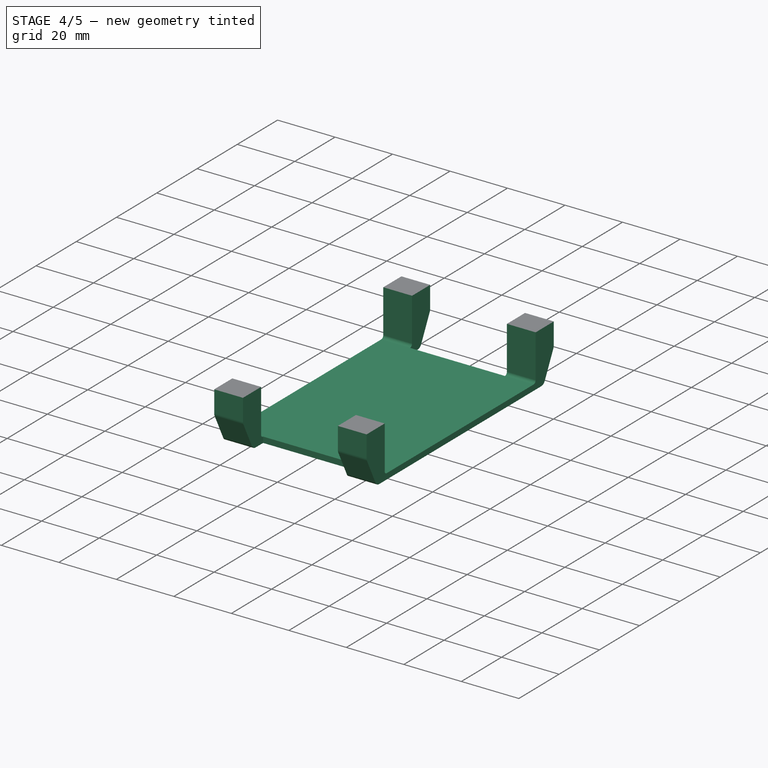
[diagram: stage 4 of 5 — iso view after this stage's code; geometry added in this stage tinted green]
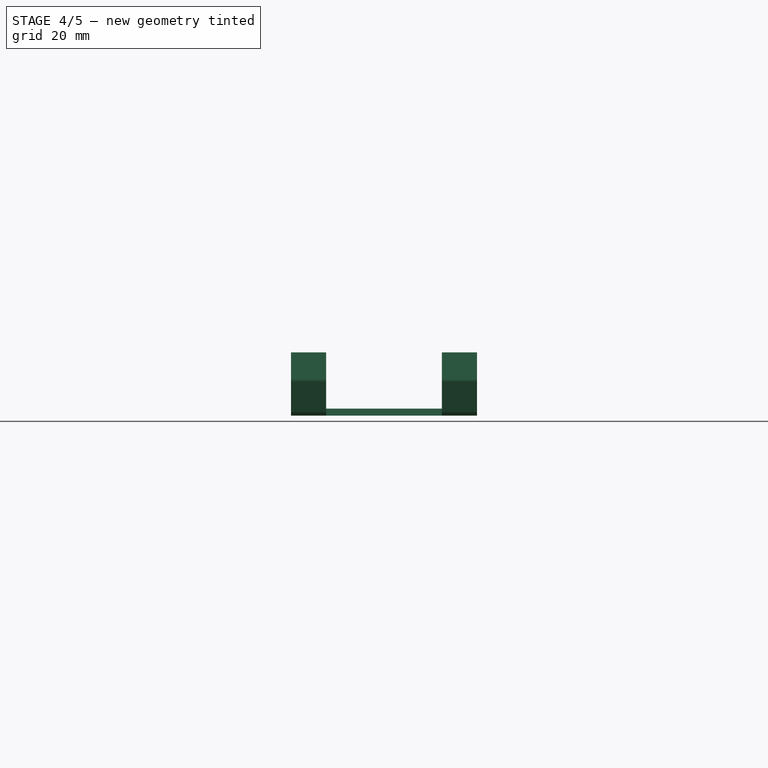
[diagram: stage 4 of 5 — front view after this stage's code; geometry added in this stage tinted green]
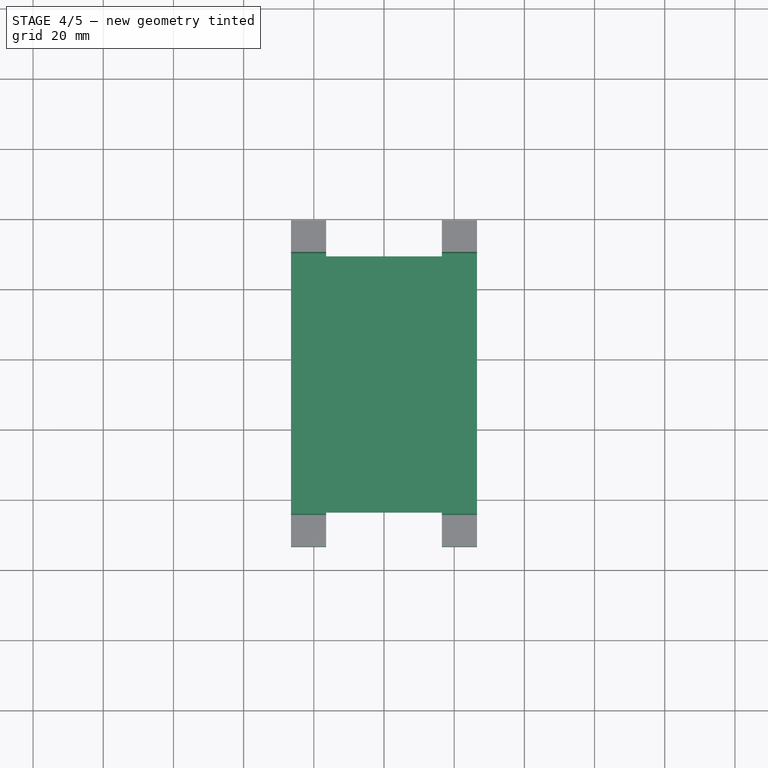
[diagram: stage 4 of 5 — top view after this stage's code; geometry added in this stage tinted green]
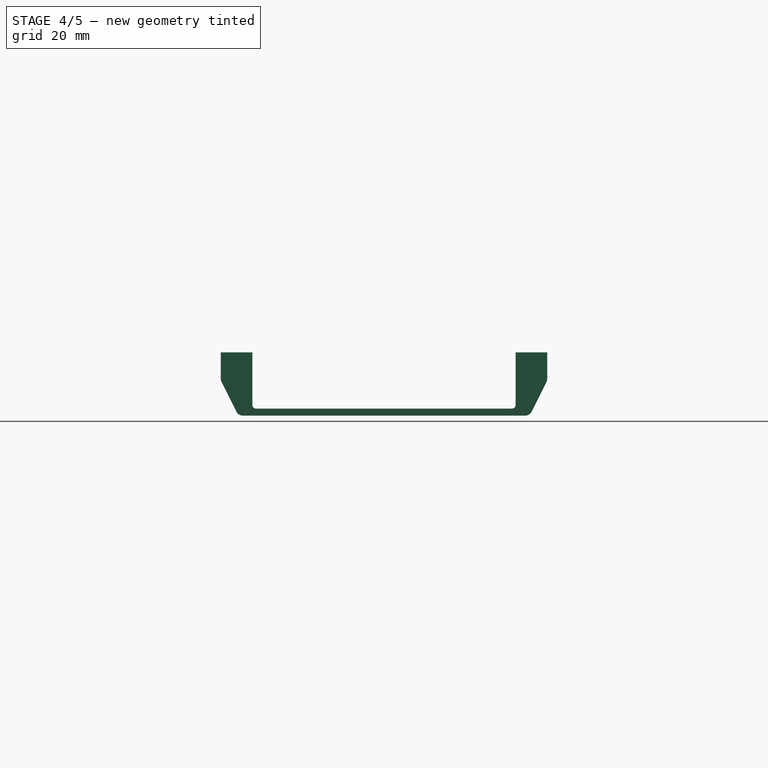
[diagram: stage 4 of 5 — right view after this stage's code; geometry added in this stage tinted green]
FEATURE [PartDesign::SubShapeBinder] Binder003  label="Binder003(Spelkula)"
  BindCopyOnChange = 0
  BindMode = 0
  ClaimChildren = false
  Context = -> Group002 [Body.Binder003.]
  EdgeTolerance = 1e-06
  FillStyle = 0
  FixShape = 1
  Fuse = false
  InvalidShape = false
  MakeFace = true
  MergeEdges = true
  OffsetFill = false
  OffsetIntersection = false
  OffsetJoinType = 0
  OffsetOpenResult = false
  Outline = false
  PartialLoad = false
  Relative = true
  SplitEdges = false
  Support = -> [Sphere]
  TightBound = false
  TreeRank = 161
  ValidateShape = false
  _Version = 8
FEATURE [Part::Part2DObjectPython] ShapeString  label="TillMotor"  # Draft 2D object (typed FeaturePython)
  FixShape = 1
  FontFile = <path>
  InvalidShape = false
  MakeFace = true
  Placement = pos=(-16.09,-107.11,-2.4) rot=(0,0,1;0rad)
  Size = 3
  String = ↑Motor↑
  Tracking = 0
  TreeRank = 180
  ValidateShape = false
FEATURE [PartDesign::Plane] DatumPlane005
  AttachmentOffset = pos=(0,0,58) rot=(0,0,1;0rad)
  AttachmentSupport = -> [XZ_Plane001]
  FixShape = 1
  InvalidShape = false
  Length = 92
  MapMode = 5
  MinimumLength = 10
  MinimumWidth = 10
  Placement = pos=(0,-58,-1.29e-14) rot=(1,0,0;1.5708rad)
  ResizeMode = 0
  Support = -> [XZ_Plane001]
  TreeRank = 184
  ValidateShape = false
  Width = 46.6136
FEATURE [PartDesign::SubShapeBinder] BaseFeature  label="BaseFeature(Split_i1)"
  BindCopyOnChange = 0
  BindMode = 0
  ClaimChildren = false
  Context = -> Group002 [Body002.BaseFeature.]
  EdgeTolerance = 1e-06
  FillStyle = 0
  FixShape = 1
  Fuse = true
  InvalidShape = false
  MakeFace = true
  MergeEdges = true
  OffsetFill = false
  OffsetIntersection = false
  OffsetJoinType = 0
  OffsetOpenResult = false
  Outline = false
  PartialLoad = false
  Relative = true
  SplitEdges = false
  Support = -> [Body[Split_i1.]]
  TightBound = false
  TreeRank = 204
  ValidateShape = false
  _Version = 8
FEATURE [App::DocumentObjectGroup] Group  label="Text"
  ClaimAllChildren = true
  ExportMode = 1
  TreeRank = 205
  _GroupVersion = 1
FEATURE [PartDesign::SubShapeBinder] Binder004  label="Binder004(YG2900_10V_800gf/cm v5)"
  BindCopyOnChange = 0
  BindMode = 0
  ClaimChildren = false
  Context = -> Group002 [Body002.Binder004.]
  EdgeTolerance = 1e-06
  FillStyle = 0
  FixShape = 1
  Fuse = false
  InvalidShape = false
  MakeFace = true
  MergeEdges = true
  OffsetFill = false
  OffsetIntersection = false
  OffsetJoinType = 0
  OffsetOpenResult = false
  Outline = false
  PartialLoad = false
  Relative = true
  SplitEdges = false
  Support = -> [Compound004]
  TightBound = false
  TreeRank = 206
  ValidateShape = false
  _Version = 8
FEATURE [Sketcher::SketchObject] Sketch032
  ArcFitTolerance = 1e-06
  AttachmentSupport = -> [BaseFeature]
  ExternalBSplineMaxDegree = 5
  ExternalBSplineTolerance = 0.0001
  ExternalGeometry = -> [BaseFeature]
  FixShape = 1
  FullyConstrained = true
  InternalTolerance = 1e-06
  InvalidShape = false
  MakeInternals = false
  MapMode = 5
  Placement = pos=(-11.4,0,-3.35151e-11) rot=(0.57735,-0.57735,-0.57735;2.0944rad)
  Support = -> [BaseFeature]
  TreeRank = 207
  ValidateShape = false
  sketch-geometry (2):
    g0: ArcOfCircle CenterX=131.885 CenterY=-17.4 CenterZ=0 NormalX=0 NormalY=0 NormalZ=1 AngleXU=0 Radius=16.49 StartAngle=4.95678 EndAngle=6.28319
    g1: LineSegment StartX=142.875 StartY=-22.4 StartZ=0 EndX=143.375 EndY=-22.4 EndZ=0
  constraints (4):
    c: Coincident(g0,g-4)
    c: Tangent(g0,g-7) = -1.5708
    c: Coincident(g1,g-5)
    c: Coincident(g1,g-8)
FEATURE [PartDesign::Pad] Pad016
  AddSubType = 0
  AlongSketchNormal = false
  AutoTaperInnerAngle = true
  BaseFeature = -> BaseFeature
  CheckUpToFaceLimits = true
  ClaimChildren = false
  Direction = (-1,0,-2.9399e-12)
  Fit = 0
  FitJoin = 2
  FixShape = 1
  InnerFit = 0
  InnerFitJoin = 0
  InvalidShape = false
  Length = 10
  Length2 = 10
  Linearize = true
  NewSolid = false
  Profile = -> Sketch032
  ReferenceAxis = -> Sketch032 [N_Axis]
  Refine = true
  Suppress = false
  TaperInnerAngle = 0
  TaperInnerAngleRev = 0
  TreeRank = 208
  Type = 3
  UpToFace = -> BaseFeature [Face22]
  ValidateShape = true
  _ProfileBasedVersion = 1
FEATURE [Sketcher::SketchObject] Sketch033
  ArcFitTolerance = 1e-06
  AttachmentSupport = -> [XY_Plane004]
  ExternalBSplineMaxDegree = 5
  ExternalBSplineTolerance = 0.0001
  ExternalGeometry = -> [Pad016]
  FixShape = 1
  FullyConstrained = true
  InternalTolerance = 1e-06
  InvalidShape = false
  MakeInternals = false
  MapMode = 5
  Support = -> [XY_Plane004]
  TreeRank = 211
  ValidateShape = false
  sketch-geometry (18):
    g0: LineSegment StartX=0 StartY=-168.375 StartZ=0 EndX=0 EndY=-144.375 EndZ=0
    g1: LineSegment StartX=0 StartY=-74.275 StartZ=0 EndX=0 EndY=-104.275 EndZ=0
    g2: LineSegment StartX=0 StartY=-107.275 StartZ=0 EndX=2 EndY=-107.275 EndZ=0
    g3: LineSegment StartX=2 StartY=-107.275 StartZ=0 EndX=2 EndY=-114.275 EndZ=0
    g4: LineSegment StartX=2 StartY=-114.275 StartZ=0 EndX=0 EndY=-114.275 EndZ=0
    g5: LineSegment [constr] StartX=0 StartY=-114.275 StartZ=0 EndX=0 EndY=-107.275 EndZ=0
    g6: LineSegment StartX=0 StartY=-120.825 StartZ=0 EndX=-2 EndY=-120.825 EndZ=0
    g7: LineSegment StartX=-2 StartY=-120.825 StartZ=0 EndX=-2 EndY=-127.825 EndZ=0
    g8: LineSegment StartX=-2 StartY=-127.825 StartZ=0 EndX=0 EndY=-127.825 EndZ=0
    g9: LineSegment [constr] StartX=0 StartY=-127.825 StartZ=0 EndX=0 EndY=-120.825 EndZ=0
    g10: LineSegment StartX=0 StartY=-134.375 StartZ=0 EndX=2 EndY=-134.375 EndZ=0
    g11: LineSegment StartX=2 StartY=-134.375 StartZ=0 EndX=2 EndY=-141.375 EndZ=0
    g12: LineSegment StartX=2 StartY=-141.375 StartZ=0 EndX=0 EndY=-141.375 EndZ=0
    g13: LineSegment [constr] StartX=0 StartY=-141.375 StartZ=0 EndX=0 EndY=-134.375 EndZ=0
    g14: LineSegment StartX=0 StartY=-134.375 StartZ=0 EndX=0 EndY=-127.825 EndZ=0
    g15: LineSegment StartX=0 StartY=-120.825 StartZ=0 EndX=0 EndY=-114.275 EndZ=0
    g16: LineSegment StartX=0 StartY=-107.275 StartZ=0 EndX=0 EndY=-104.275 EndZ=0
    g17: LineSegment StartX=0 StartY=-144.375 StartZ=0 EndX=0 EndY=-141.375 EndZ=0
  constraints (52):
    c: PointOnObject(g0,g-2)
    c: PointOnObject(g0,g-2)
    c: PointOnObject(g1,g-2)
    c: PointOnObject(g1,g-7)
    c: Vertical(g1)
    c: Coincident(g2,g3)
    c: Coincident(g3,g4)
    c: Coincident(g4,g5)
    c: Coincident(g5,g2)
    c: Horizontal(g2)
    c: Horizontal(g4)
    c: Vertical(g3)
    c: Vertical(g5)
    c: PointOnObject(g2,g-2)
    c: Coincident(g6,g7)
    c: Coincident(g7,g8)
    c: Coincident(g8,g9)
    c: Coincident(g9,g6)
    c: Horizontal(g6)
    c: Horizontal(g8)
    c: Vertical(g7)
    c: Vertical(g9)
    c: PointOnObject(g6,g-2)
    c: Coincident(g10,g11)
    c: Coincident(g11,g12)
    c: Coincident(g12,g13)
    c: Coincident(g13,g10)
    c: Horizontal(g10)
    c: Horizontal(g12)
    c: Vertical(g11)
    c: Vertical(g13)
    c: PointOnObject(g10,g-2)
    c: Coincident(g14,g10)
    c: Coincident(g14,g8)
    c: Coincident(g15,g6)
    c: Coincident(g15,g4)
    c: Coincident(g16,g2)
    c: Coincident(g16,g1)
    c: Coincident(g17,g0)
    c: Coincident(g17,g12)
    c: Equal(g3,g7)
    c: Equal(g7,g11)
    c: Equal(g4,g6)
    c: Equal(g6,g10)
    c: DistanceY(g16,g16) = 3
    c: DistanceY(g-4,g0) = 4
    c: Equal(g17,g16)
    c: DistanceX(g12,g12) = 2
    c: DistanceY(g7,g7) = 7
    c: Equal(g15,g14)
    c: DistanceY(g-3,g1) = 10
    c: DistanceY(g0,g-5) = 10
FEATURE [PartDesign::Extrusion] Extrusion001
  AddSubType = 0
  AlongSketchNormal = false
  AutoTaperInnerAngle = true
  CheckUpToFaceLimits = true
  ClaimChildren = false
  Direction = (0,0,1)
  Fit = 0
  FitJoin = 0
  FixShape = 1
  InnerFit = 0
  InnerFitJoin = 0
  InvalidShape = false
  Length = 100
  Length2 = 10
  Linearize = true
  Midplane = true
  NewSolid = false
  Profile = -> Sketch033
  ReferenceAxis = -> Sketch033 [N_Axis]
  Suppress = false
  TaperInnerAngle = 0
  TaperInnerAngleRev = 0
  TreeRank = 212
  Type = 0
  ValidateShape = true
  _ProfileBasedVersion = 1
FEATURE [PartDesign::SubShapeBinder] BaseFeature001  label="BaseFeature001(LeftHalf)"
  BindCopyOnChange = 0
  BindMode = 0
  ClaimChildren = false
  Context = -> Group002 [Body003.BaseFeature001.]
  EdgeTolerance = 1e-06
  FillStyle = 0
  FixShape = 1
  Fuse = true
  InvalidShape = false
  MakeFace = true
  MergeEdges = true
  OffsetFill = false
  OffsetIntersection = false
  OffsetJoinType = 0
  OffsetOpenResult = false
  Outline = false
  PartialLoad = false
  Relative = true
  SplitEdges = false
  Support = -> [Body002[Split002_i1.]]
  TightBound = false
  TreeRank = 230
  ValidateShape = false
  _Version = 8
FEATURE [Sketcher::SketchObject] Sketch034
  ArcFitTolerance = 1e-06
  AttachmentSupport = -> [BaseFeature001]
  ExternalBSplineMaxDegree = 5
  ExternalBSplineTolerance = 0.0001
  ExternalGeometry = -> [BaseFeature001]
  FixShape = 1
  FullyConstrained = true
  InternalTolerance = 1e-06
  InvalidShape = false
  MakeInternals = false
  MapMode = 5
  Placement = pos=(0,0,0) rot=(0.57735,-0.57735,-0.57735;2.0944rad)
  Support = -> [BaseFeature001]
  TreeRank = 231
  ValidateShape = false
  sketch-geometry (2):
    g0: Circle CenterX=108.675 CenterY=-11.225 CenterZ=0 NormalX=0 NormalY=0 NormalZ=1 AngleXU=0 Radius=1.5
    g1: Circle CenterX=108.675 CenterY=-29.225 CenterZ=0 NormalX=0 NormalY=0 NormalZ=1 AngleXU=0 Radius=1.5
  constraints (4):
    c: Coincident(g0,g-3)
    c: PointOnObject(g-3,g0)
    c: Coincident(g1,g-4)
    c: PointOnObject(g-4,g1)
FEATURE [PartDesign::Hole] Hole003
  AddSubType = 1
  BaseFeature = -> BaseFeature001
  ClaimChildren = false
  CustomThreadClearance = 0
  Depth = 20
  DepthType = 0
  Diameter = 3.4
  DrillForDepth = false
  DrillPoint = 1
  DrillPointAngle = 118
  Fit = 0
  FitJoin = 0
  FixShape = 1
  HoleCutCountersinkAngle = 90
  HoleCutCustomValues = false
  HoleCutDepth = 6.4
  HoleCutDiameter = 6.1
  HoleCutType = 1
  InnerFit = 0
  InnerFitJoin = 0
  InvalidShape = false
  Linearize = true
  ModelThread = false
  NewSolid = false
  Profile = -> Sketch034
  Suppress = false
  Tapered = false
  TaperedAngle = 90
  ThreadClass = 0
  ThreadDepth = 20
  ThreadDepthType = 0
  ThreadDirection = 0
  ThreadFit = 0
  ThreadSize = 9
  ThreadType = 1
  Threaded = false
  TreeRank = 232
  UseCustomThreadClearance = false
  ValidateShape = true
  _ProfileBasedVersion = 1
  expr: HoleCutDepth = 3.4 + 3
FEATURE [PartDesign::Body] Body003  label="MotorMout_leftpart"
  AutoGroupSolids = false
  BaseFeature = -> BaseFeature001
  ClaimAllChildren = false
  ExportMode = 0
  FixShape = 1
  Group = -> [BaseFeature001,Sketch034,Hole003]
  InvalidShape = false
  Origin = -> Origin005
  Tip = -> Hole003
  TreeRank = 229
  ValidateShape = false
  _ExportChildren = -> [BaseFeature001,Hole003]
  _GroupVersion = 1
FEATURE [PartDesign::SubShapeBinder] BaseFeature002  label="BaseFeature002(RightHalf)"
  BindCopyOnChange = 0
  BindMode = 0
  ClaimChildren = false
  Context = -> Group002 [Body004.BaseFeature002.]
  EdgeTolerance = 1e-06
  FillStyle = 0
  FixShape = 1
  Fuse = true
  InvalidShape = false
  MakeFace = true
  MergeEdges = true
  OffsetFill = false
  OffsetIntersection = false
  OffsetJoinType = 0
  OffsetOpenResult = false
  Outline = false
  PartialLoad = false
  Relative = true
  SplitEdges = false
  Support = -> [Body002[Split002_i0.]]
  TightBound = false
  TreeRank = 243
  ValidateShape = false
  _Version = 8
FEATURE [Sketcher::SketchObject] Sketch035
  ArcFitTolerance = 1e-06
  AttachmentSupport = -> [BaseFeature002]
  ExternalBSplineMaxDegree = 5
  ExternalBSplineTolerance = 0.0001
  ExternalGeometry = -> [BaseFeature002]
  FixShape = 1
  FullyConstrained = true
  InternalTolerance = 1e-06
  InvalidShape = false
  MakeInternals = false
  MapMode = 5
  Placement = pos=(2,0,0) rot=(0.57735,0.57735,0.57735;2.0944rad)
  Support = -> [BaseFeature002]
  TreeRank = 244
  ValidateShape = false
  sketch-geometry (2):
    g0: Circle CenterX=-108.675 CenterY=-11.225 CenterZ=0 NormalX=0 NormalY=0 NormalZ=1 AngleXU=0 Radius=1.5
    g1: Circle CenterX=-108.675 CenterY=-29.225 CenterZ=0 NormalX=0 NormalY=0 NormalZ=1 AngleXU=0 Radius=1.5
  constraints (4):
    c: Coincident(g0,g-3)
    c: PointOnObject(g-3,g0)
    c: Coincident(g1,g-4)
    c: PointOnObject(g-4,g1)
FEATURE [PartDesign::Hole] Hole004
  AddSubType = 1
  BaseFeature = -> BaseFeature002
  ClaimChildren = false
  CustomThreadClearance = 0
  Depth = 25
  DepthType = 0
  Diameter = 3.4
  DrillForDepth = false
  DrillPoint = 1
  DrillPointAngle = 118
  Fit = 0
  FitJoin = 0
  FixShape = 1
  HoleCutCountersinkAngle = 90
  HoleCutCustomValues = false
  HoleCutDepth = 8.4
  HoleCutDiameter = 6.1
  HoleCutType = 1
  InnerFit = 0
  InnerFitJoin = 0
  InvalidShape = false
  Linearize = true
  ModelThread = false
  NewSolid = false
  Profile = -> Sketch035
  Suppress = false
  Tapered = false
  TaperedAngle = 90
  ThreadClass = 0
  ThreadDepth = 25
  ThreadDepthType = 0
  ThreadDirection = 0
  ThreadFit = 0
  ThreadSize = 9
  ThreadType = 1
  Threaded = false
  TreeRank = 245
  UseCustomThreadClearance = false
  ValidateShape = true
  _ProfileBasedVersion = 1
  expr: HoleCutDepth = 6.4 + 2
FEATURE [PartDesign::Body] Body007  label="Varta_10Ah_5797610111"
  AutoGroupSolids = false
  ClaimAllChildren = false
  ExportMode = 0
  FixShape = 1
  Group = -> [Binder007,Binder008,Import002,Sketch040,Pad018]
  InvalidShape = false
  Origin = -> Origin009
  Tip = -> Pad018
  TreeRank = 288
  ValidateShape = false
  _ExportChildren = -> [Binder007,Binder008,Import002,Pad018]
  _GroupVersion = 1
FEATURE [PartDesign::SubShapeBinder] Binder009  label="Binder009(Robot)..."
  BindCopyOnChange = 0
  BindMode = 0
  ClaimChildren = false
  Context = -> Group002 [Body008.Binder009.]
  EdgeTolerance = 1e-06
  FillStyle = 0
  FixShape = 1
  Fuse = false
  InvalidShape = false
  MakeFace = true
  MergeEdges = true
  OffsetFill = false
  OffsetIntersection = false
  OffsetJoinType = 0
  OffsetOpenResult = false
  Outline = false
  PartialLoad = false
  Relative = true
  SplitEdges = false
  Support = -> [Body,Body005,Body002,Body007]
  TightBound = false
  TreeRank = 308
  ValidateShape = false
  _Version = 8
FEATURE [Sketcher::SketchObject] Sketch042
  ArcFitTolerance = 1e-06
  AttachmentSupport = -> [Binder009]
  ExternalBSplineMaxDegree = 5
  ExternalBSplineTolerance = 0.0001
  ExternalGeometry = -> [Binder009]
  FixShape = 1
  FullyConstrained = true
  InternalTolerance = 1e-06
  InvalidShape = false
  MakeInternals = false
  MapMode = 5
  Placement = pos=(0,0,-7.4) rot=(1,0,0;3.14159rad)
  Support = -> [Binder009]
  TreeRank = 309
  ValidateShape = false
  sketch-geometry (19):
    g0: LineSegment [constr] StartX=-21.5 StartY=89.0375 StartZ=0 EndX=-21.5 EndY=5.0375 EndZ=0
    g1: LineSegment [constr] StartX=21.5 StartY=5.0375 StartZ=0 EndX=21.5 EndY=89.0375 EndZ=0
    g2: LineSegment StartX=-26.5 StartY=93.5375 StartZ=0 EndX=-16.5 EndY=93.5375 EndZ=0
    g3: LineSegment StartX=-16.5 StartY=93.5375 StartZ=0 EndX=-16.5 EndY=83.5375 EndZ=0
    g4: LineSegment StartX=-16.5 StartY=0.5375 StartZ=0 EndX=-26.5 EndY=0.5375 EndZ=0
    g5: LineSegment StartX=16.5 StartY=93.5375 StartZ=0 EndX=26.5 EndY=93.5375 EndZ=0
    g6: LineSegment StartX=26.5 StartY=0.5375 StartZ=0 EndX=16.5 EndY=0.5375 EndZ=0
    g7: LineSegment StartX=16.5 StartY=0.5375 StartZ=0 EndX=16.5 EndY=10.5375 EndZ=0
    g8: LineSegment StartX=-16.5 StartY=10.5375 StartZ=0 EndX=-16.5 EndY=0.5375 EndZ=0
    g9: LineSegment StartX=16.5 StartY=83.5375 StartZ=0 EndX=16.5 EndY=93.5375 EndZ=0
    g10: LineSegment StartX=16.5 StartY=10.5375 StartZ=0 EndX=-16.5 EndY=10.5375 EndZ=0
    g11: LineSegment StartX=-16.5 StartY=83.5375 StartZ=0 EndX=16.5 EndY=83.5375 EndZ=0
    g12: LineSegment [constr] StartX=-16.5 StartY=83.5375 StartZ=0 EndX=16.5 EndY=83.5375 EndZ=0
    g13: LineSegment [constr] StartX=16.5 StartY=83.5375 StartZ=0 EndX=16.5 EndY=10.5375 EndZ=0
    g14: LineSegment [constr] StartX=16.5 StartY=10.5375 StartZ=0 EndX=-16.5 EndY=10.5375 EndZ=0
    g15: LineSegment [constr] StartX=-16.5 StartY=10.5375 StartZ=0 EndX=-16.5 EndY=83.5375 EndZ=0
    g16: LineSegment [constr] StartX=-26.5 StartY=47.0375 StartZ=0 EndX=26.5 EndY=47.0375 EndZ=0
    g17: LineSegment StartX=26.5 StartY=93.5375 StartZ=0 EndX=26.5 EndY=0.5375 EndZ=0
    g18: LineSegment StartX=-26.5 StartY=93.5375 StartZ=0 EndX=-26.5 EndY=0.5375 EndZ=0
  constraints (47):
    c: Coincident(g0,g-3)
    c: Coincident(g0,g-5)
    c: Coincident(g1,g-6)
    c: Coincident(g1,g-4)
    c: Coincident(g2,g3)
    c: Coincident(g8,g4)
    c: Horizontal(g2)
    c: Vertical(g3)
    c: Coincident(g6,g7)
    c: Coincident(g9,g5)
    c: Horizontal(g5)
    c: Vertical(g7)
    c: Coincident(g11,g9)
    c: Coincident(g10,g7)
    c: Coincident(g11,g3)
    c: Symmetric(g4,g4,g0)
    c: Symmetric(g6,g6,g1)
    c: Coincident(g12,g13)
    c: Coincident(g13,g14)
    c: Coincident(g14,g15)
    c: Coincident(g15,g12)
    c: Horizontal(g12)
    c: Horizontal(g14)
    c: Vertical(g13)
    c: Vertical(g15)
    c: Coincident(g12,g3)
    c: Coincident(g13,g7)
    c: Coincident(g9,g12)
    c: Coincident(g8,g10)
    c: Coincident(g8,g14)
    c: Vertical(g9)
    c: Vertical(g8)
    c: Equal(g2,g5)
    c: DistanceX(g2,g2) = 10
    c: PointOnObject(g8,g-8)
    c: PointOnObject(g3,g-7)
    c: Symmetric(g-8,g-7,g16)
    c: Symmetric(g4,g2,g16)
    c: Symmetric(g6,g5,g16)
    c: Equal(g9,g3)
    c: Coincident(g17,g5)
    c: Coincident(g17,g6)
    c: PointOnObject(g16,g17)
    c: Coincident(g18,g2)
    c: Coincident(g18,g4)
    c: PointOnObject(g16,g18)
    c: DistanceY(g3,g2) = 10
FEATURE [PartDesign::Pad] Pad019
  AddSubType = 0
  AlongSketchNormal = false
  AutoTaperInnerAngle = true
  CheckUpToFaceLimits = true
  ClaimChildren = false
  Direction = (0,0,-1)
  Fit = 0
  FitJoin = 0
  FixShape = 1
  InnerFit = 0
  InnerFitJoin = 0
  InvalidShape = false
  Length = 10
  Length2 = 10
  Linearize = true
  NewSolid = false
  Offset = 3
  Profile = -> Sketch042
  ReferenceAxis = -> Sketch042 [N_Axis]
  Suppress = false
  TaperInnerAngle = 0
  TaperInnerAngleRev = 0
  TreeRank = 310
  Type = 3
  UpToFace = -> Binder009 [Face350]
  ValidateShape = true
  _ProfileBasedVersion = 1
FEATURE [Sketcher::SketchObject] Sketch043
  ArcFitTolerance = 1e-06
  AttachmentSupport = -> [YZ_Plane010]
  ExternalBSplineMaxDegree = 5
  ExternalBSplineTolerance = 0.0001
  ExternalGeometry = -> [Binder009]
  FixShape = 1
  FullyConstrained = true
  InternalTolerance = 1e-06
  InvalidShape = false
  MakeInternals = false
  MapMode = 5
  Placement = pos=(0,0,0) rot=(0.57735,0.57735,0.57735;2.0944rad)
  Support = -> [YZ_Plane010]
  TreeRank = 311
  ValidateShape = false
  sketch-geometry (4):
    g0: LineSegment StartX=-83.5375 StartY=-7.4 StartZ=0 EndX=-10.5375 EndY=-7.4 EndZ=0
    g1: LineSegment StartX=-10.5375 StartY=-7.4 StartZ=0 EndX=-10.5375 EndY=-22.4 EndZ=0
    g2: LineSegment StartX=-10.5375 StartY=-22.4 StartZ=0 EndX=-83.5375 EndY=-22.4 EndZ=0
    g3: LineSegment StartX=-83.5375 StartY=-22.4 StartZ=0 EndX=-83.5375 EndY=-7.4 EndZ=0
  constraints (10):
    c: Coincident(g0,g1)
    c: Coincident(g1,g2)
    c: Coincident(g2,g3)
    c: Coincident(g3,g0)
    c: Horizontal(g0)
    c: Horizontal(g2)
    c: Vertical(g1)
    c: Vertical(g3)
    c: Coincident(g0,g-3)
    c: Coincident(g1,g-4)
FEATURE [PartDesign::Pocket] Pocket015
  AddSubType = 1
  AlongSketchNormal = false
  AutoTaperInnerAngle = true
  BaseFeature = -> Pad019
  CheckUpToFaceLimits = true
  ClaimChildren = false
  Direction = (-1,2e-16,-3e-16)
  Fit = 1
  FitJoin = 0
  FixShape = 1
  InnerFit = 0
  InnerFitJoin = 0
  InvalidShape = false
  Length = 5
  Length2 = 10
  Linearize = true
  Midplane = true
  NewSolid = false
  Profile = -> Sketch043
  ReferenceAxis = -> Sketch043 [N_Axis]
  Suppress = false
  TaperInnerAngle = 0
  TaperInnerAngleRev = 0
  TreeRank = 312
  Type = 1
  ValidateShape = true
  _ProfileBasedVersion = 1
  _Version = 1
FEATURE [PartDesign::Chamfer] Chamfer
  AddSubType = 0
  Angle = 45
  Base = -> Pocket015 [Edge13,Edge19,Edge17]
  BaseFeature = -> Pocket015
  ChamferType = 1
  FixShape = 1
  FlipDirection = false
  InvalidShape = false
  NewSolid = false
  Size = 5
  Size2 = 10
  SupportTransform = false
  Suppress = false
  TreeRank = 313
  UseAllEdges = false
  ValidateShape = true
FEATURE [PartDesign::Chamfer] Chamfer001
  AddSubType = 0
  Angle = 45
  Base = -> Chamfer [Edge3]
  BaseFeature = -> Chamfer
  ChamferType = 1
  FixShape = 1
  FlipDirection = false
  InvalidShape = false
  NewSolid = false
  Size = 5
  Size2 = 10
  SupportTransform = false
  Suppress = false
  TreeRank = 314
  UseAllEdges = false
  ValidateShape = true
FEATURE [PartDesign::Fillet] Fillet003
  AddSubType = 0
  Base = -> Chamfer001 [Edge25,Edge53,Edge10,Edge2,Edge11,Edge3,Edge26,Edge54]
  BaseFeature = -> Chamfer001
  FixShape = 1
  InvalidShape = false
  NewSolid = false
  Radius = 2
  SupportTransform = false
  Suppress = false
  TreeRank = 315
  UseAllEdges = false
  ValidateShape = true
FEATURE [Sketcher::SketchObject] Sketch031
  ArcFitTolerance = 1e-06
  AttachmentSupport = -> [DatumPlane005]
  ExternalBSplineMaxDegree = 5
  ExternalBSplineTolerance = 0.0001
  ExternalGeometry = -> [Pocket012]
  FixShape = 1
  FullyConstrained = true
  InternalTolerance = 1e-06
  InvalidShape = false
  MakeInternals = false
  MapMode = 5
  Placement = pos=(0,-58,-1.29e-14) rot=(1,0,0;1.5708rad)
  Support = -> [DatumPlane005]
  TreeRank = 185
  ValidateShape = false
  sketch-geometry (1):
    g0: LineSegment StartX=-55.5 StartY=-7.4 StartZ=0 EndX=55.5 EndY=-7.4 EndZ=0
  constraints (3):
    c: Symmetric(g0,g0,g-2)
    c: PointOnObject(g-3,g0)
    c: DistanceX(g0,g-3) = 10
FEATURE [PartDesign::Extrusion] Extrusion
  AddSubType = 0
  AlongSketchNormal = false
  AutoTaperInnerAngle = true
  CheckUpToFaceLimits = true
  ClaimChildren = false
  Direction = (0,-1,-2e-16)
  Fit = 0
  FitJoin = 0
  FixShape = 1
  InnerFit = 0
  InnerFitJoin = 0
  InvalidShape = false
  Length = 250
  Length2 = 10
  Linearize = true
  Midplane = true
  NewSolid = false
  Profile = -> Sketch031
  ReferenceAxis = -> Sketch031 [N_Axis]
  Suppress = false
  TaperInnerAngle = 0
  TaperInnerAngleRev = 0
  TreeRank = 186
  Type = 0
  ValidateShape = true
  _ProfileBasedVersion = 1
FEATURE [PartDesign::Split] Split
  BaseFeature = -> Pocket012
  FixShape = 1
  Fragment = false
  InvalidShape = false
  Mode = 0
  NewSolid = false
  Solids = -> [Split_i0,Split_i1,Split_i2]
  Suppress = false
  Tolerance = 0
  Tools = -> [Extrusion]
  TreeRank = 187
  ValidateShape = true
  _Version = 1
FEATURE [PartDesign::Solid] Split_i0
  Active = true
  FixShape = 1
  InvalidShape = false
  Parent = -> Split
  TreeRank = 191
  ValidateShape = false
FEATURE [PartDesign::Solid] Split_i1
  Active = false
  FixShape = 1
  InvalidShape = false
  Parent = -> Split
  TreeRank = 192
  ValidateShape = false
FEATURE [PartDesign::Body] Body002  label="MotorMout"
  AutoGroupSolids = false
  BaseFeature = -> BaseFeature
  ClaimAllChildren = false
  ExportMode = 0
  FixShape = 1
  Group = -> [BaseFeature,Binder004,Sketch032,Pad016,Sketch033,Extrusion001,Split002,Split002_i0,Split002_i1]
  InvalidShape = false
  Origin = -> Origin004
  Tip = -> Split002
  TreeRank = 203
  ValidateShape = false
  _ExportChildren = -> [BaseFeature,Binder004,Pad016,Sketch033,Split002]
  _GroupVersion = 1
FEATURE [PartDesign::Split] Split002
  BaseFeature = -> Pad016
  FixShape = 1
  Fragment = false
  InvalidShape = false
  Mode = 0
  NewSolid = false
  Solids = -> [Split002_i0,Split002_i1]
  Suppress = false
  Tolerance = 0
  Tools = -> [Extrusion001]
  TreeRank = 215
  ValidateShape = true
  _Version = 1
FEATURE [PartDesign::Solid] Split002_i0  label="RightHalf"
  Active = true
  FixShape = 1
  InvalidShape = false
  Parent = -> Split002
  TreeRank = 218
  ValidateShape = false
FEATURE [PartDesign::Solid] Split002_i1  label="LeftHalf"
  Active = true
  FixShape = 1
  InvalidShape = false
  Parent = -> Split002
  TreeRank = 219
  ValidateShape = false
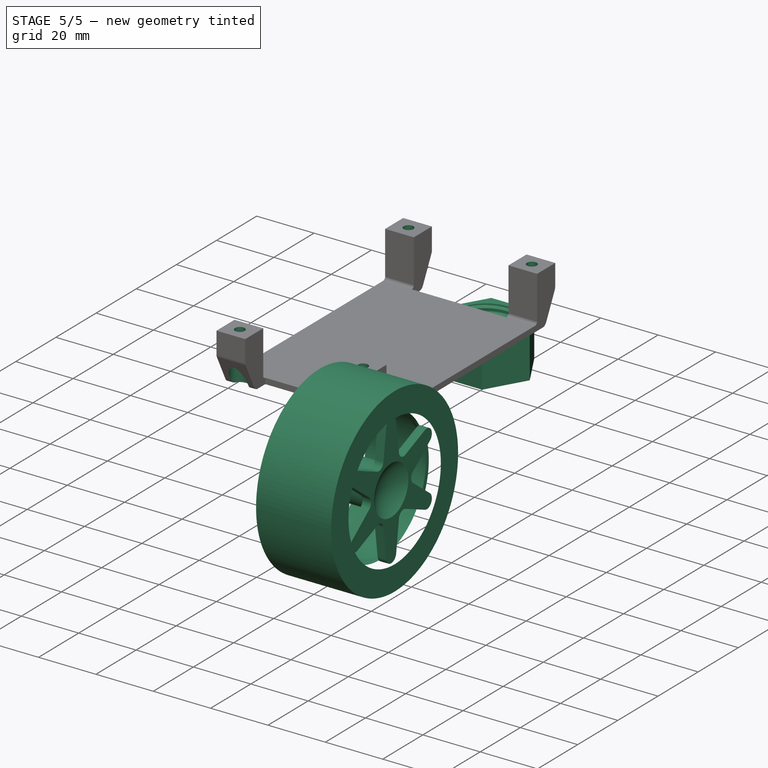
[diagram: stage 5 of 5 — iso view after this stage's code; geometry added in this stage tinted green]
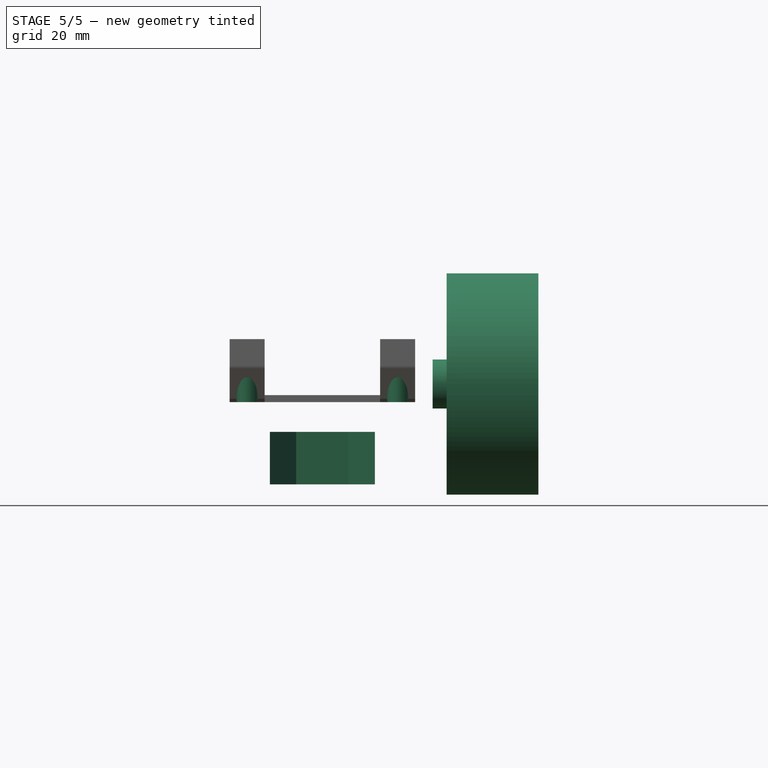
[diagram: stage 5 of 5 — front view after this stage's code; geometry added in this stage tinted green]
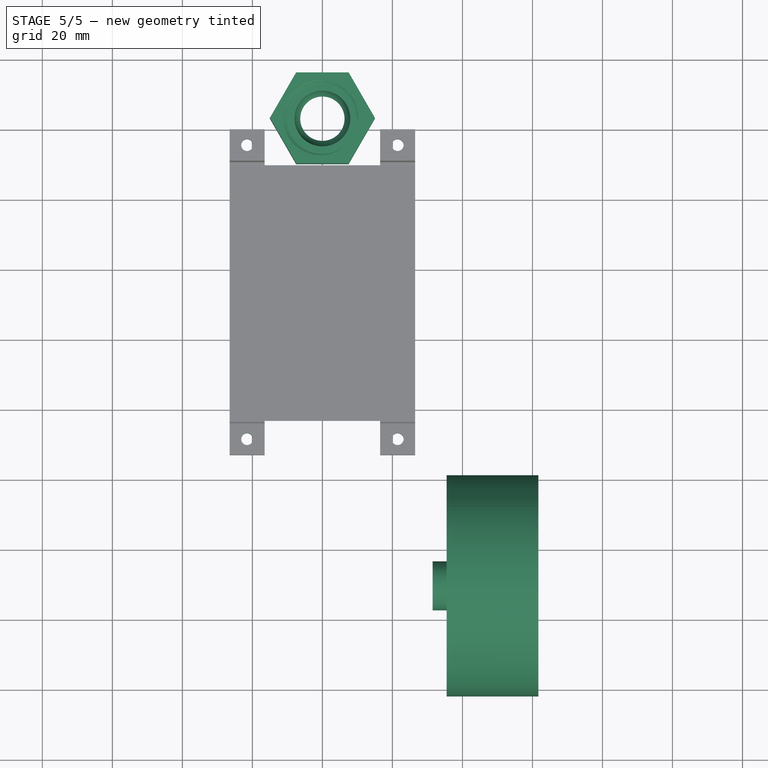
[diagram: stage 5 of 5 — top view after this stage's code; geometry added in this stage tinted green]
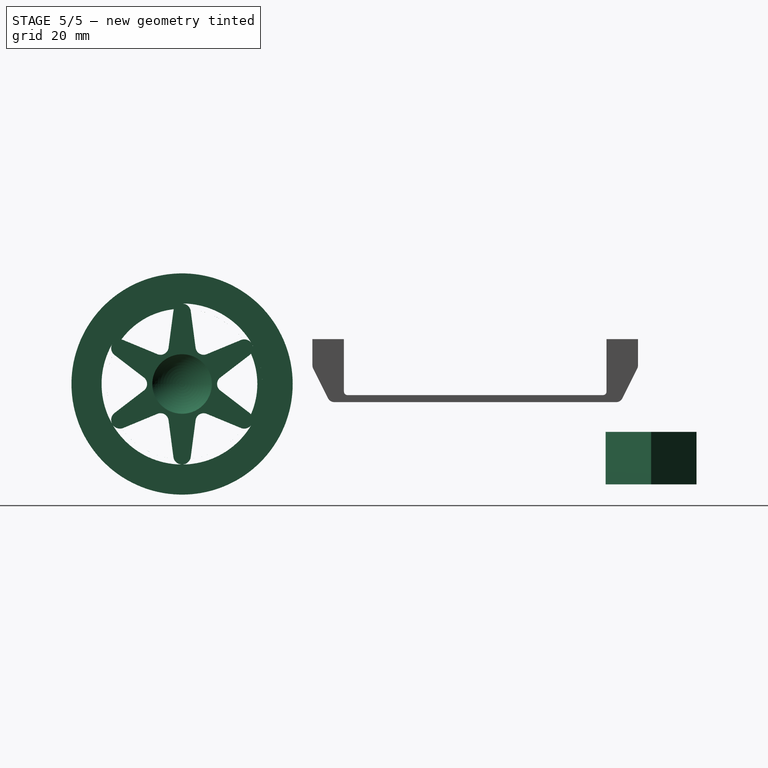
[diagram: stage 5 of 5 — right view after this stage's code; geometry added in this stage tinted green]
FEATURE [Sketcher::SketchObject] Sketch044
  ArcFitTolerance = 1e-06
  AttachmentSupport = -> [Fillet003]
  ExternalBSplineMaxDegree = 5
  ExternalBSplineTolerance = 0.0001
  ExternalGeometry = -> [Binder009]
  FixShape = 1
  FullyConstrained = true
  InternalTolerance = 1e-06
  InvalidShape = false
  MakeInternals = false
  MapMode = 5
  Placement = pos=(0,0,-25.4) rot=(1,0,0;3.14159rad)
  Support = -> [Fillet003]
  TreeRank = 316
  ValidateShape = false
FEATURE [PartDesign::Hole] Hole005
  AddSubType = 1
  BaseFeature = -> Fillet003
  ClaimChildren = false
  CustomThreadClearance = 0
  Depth = 25
  DepthType = 0
  Diameter = 3.4
  DrillForDepth = false
  DrillPoint = 1
  DrillPointAngle = 118
  Fit = 0
  FitJoin = 0
  FixShape = 1
  HoleCutCountersinkAngle = 90
  HoleCutCustomValues = false
  HoleCutDepth = 13
  HoleCutDiameter = 6.1
  HoleCutType = 1
  InnerFit = 0
  InnerFitJoin = 0
  InvalidShape = false
  Linearize = true
  ModelThread = false
  NewSolid = false
  Profile = -> Sketch044
  Suppress = false
  Tapered = false
  TaperedAngle = 90
  ThreadClass = 0
  ThreadDepth = 25
  ThreadDepthType = 0
  ThreadDirection = 0
  ThreadFit = 0
  ThreadSize = 9
  ThreadType = 1
  Threaded = false
  TreeRank = 317
  UseCustomThreadClearance = false
  ValidateShape = true
  _ProfileBasedVersion = 1
  expr: HoleCutDepth = 18 - 5
FEATURE [PartDesign::Body] Body008  label="BatteryHolder"
  AutoGroupSolids = false
  ClaimAllChildren = false
  ExportMode = 0
  FixShape = 1
  Group = -> [Binder009,Sketch042,Pad019,Sketch043,Pocket015,Chamfer,Chamfer001,Fillet003,Sketch044,Hole005]
  InvalidShape = false
  Origin = -> Origin010
  Tip = -> Hole005
  TreeRank = 307
  ValidateShape = false
  _ExportChildren = -> [Binder009,Pad019,Pocket015,Chamfer,Chamfer001,Fillet003,Hole005]
  _GroupVersion = 1
FEATURE [Image::ImagePlane] photo_2023_12_13_17_01_35  label="photo_2023-12-13_17-01-35"
  Placement = pos=(-12.1321,-39.1839,4.9) rot=(0,0,1;1.58825rad)
  TreeRank = 325
  XSize = 32.0055
  YSize = 56.8987
FEATURE [PartDesign::Body] Body  label="Robot"
  AutoGroupSolids = false
  ClaimAllChildren = false
  ExportMode = 0
  FixShape = 1
  Group = -> [Binder,DatumPlane,Sketch,Pad,Sketch001,Import,Pad001,Sketch002,Pad002,Fillet,Fillet001,Sketch003,Pocket,Sketch011,Binder002,Pad008,Sketch012,Pocket002,Sketch013,Export004,Export005,Pad009,Sketch014,Pocket003,Pocket004,Pad010,Sketch015,Pad011,Sketch016,Export006,Pocket005,Pad012,Fillet002,Sketch017,Hole,Sketch018,Pocket006,Sketch019,Export007,Export008,Pad013,Export009,Pad014,Sketch020,Pocket007,+39 more]
  InvalidShape = false
  Origin = -> Origin001
  Tip = -> Hole006
  TreeRank = 58
  ValidateShape = false
  _ExportChildren = -> [Binder,DatumPlane,Pad,Import,Pad001,Pad002,Fillet,Fillet001,Pocket,Binder002,Pad008,Pocket002,Sketch013,Pad009,Pocket003,Pocket004,Pad010,Pad011,Pocket005,Pad012,Fillet002,Hole,Pocket006,Sketch019,Pad013,Pad014,Pocket007,Pocket008,Hole001,Binder003,Pad015,Pocket009,DatumPlane003,Groove,Pocket010,Helix,Pocket011,Hole002,DatumPlane004,Pocket012,DatumPlane005,Sketch031,Split,Pocket014,Pocket016,+2 more]
  _GroupVersion = 1
FEATURE [PartDesign::Body] Body001  label="LeftWheel"
  AutoGroupSolids = false
  ClaimAllChildren = false
  ExportMode = 0
  FixShape = 1
  Group = -> [Binder001,Sketch004,Export,Export001,Export002,Export003,Pad003,DatumPlane001,Sketch005,Pad004,Sketch006,Pad005,Sketch007,Pad006,Sketch008,Pad007,DatumLine,PolarPattern,DatumPlane002,Sketch009,Revolution,Sketch010,Pocket001,Import001]
  InvalidShape = false
  Origin = -> Origin003
  Tip = -> Pocket001
  TreeRank = 97
  ValidateShape = false
  _ExportChildren = -> [Binder001,Sketch004,Pad003,DatumPlane001,Pad004,Pad005,Pad006,Pad007,DatumLine,PolarPattern,DatumPlane002,Revolution,Pocket001,Import001]
  _GroupVersion = 1
FEATURE [Sketcher::SketchObject] Sketch004  label="Master"
  ArcFitTolerance = 1e-06
  AttachmentSupport = -> [Binder001]
  Exports = -> [Export,Export001,Export002,Export003]
  ExternalBSplineMaxDegree = 5
  ExternalBSplineTolerance = 0.0001
  ExternalGeometry = -> [Binder001]
  FixShape = 1
  FullyConstrained = true
  InternalTolerance = 1e-06
  InvalidShape = false
  MakeInternals = false
  MapMode = 5
  Placement = pos=(31.5,0,0) rot=(0.57735,0.57735,0.57735;2.0944rad)
  Support = -> [Binder001]
  TreeRank = 99
  ValidateShape = false
  sketch-geometry (4):
    g0: Circle CenterX=-130.775 CenterY=-20.225 CenterZ=0 NormalX=0 NormalY=0 NormalZ=1 AngleXU=0 Radius=7
    g1: Circle CenterX=-130.775 CenterY=-20.225 CenterZ=0 NormalX=0 NormalY=0 NormalZ=1 AngleXU=0 Radius=23
    g2: Circle CenterX=-130.775 CenterY=-20.225 CenterZ=0 NormalX=0 NormalY=0 NormalZ=1 AngleXU=0 Radius=25.5
    g3: Circle CenterX=-130.775 CenterY=-20.225 CenterZ=0 NormalX=0 NormalY=0 NormalZ=1 AngleXU=0 Radius=31.6
  constraints (8):
    c: Coincident(g0,g-5)
    c: Diameter(g0) = 14
    c: Coincident(g1,g0)
    c: Diameter(g1) = 46
    c: Coincident(g2,g0)
    c: Diameter(g2) = 51
    c: Coincident(g3,g0)
    c: Diameter(g3) = 63.2
FEATURE [Sketcher::SketchExport] Export  label="Shaft"
  Base = -> Sketch004
  BaseRefs = -> Sketch004 [edge1]
  FixShape = 1
  InvalidShape = false
  Placement = pos=(31.5,0,0) rot=(0.57735,0.57735,0.57735;2.0944rad)
  Refs = ;g6.edge1
  SyncPlacement = true
  TreeRank = 100
  ValidateShape = false
FEATURE [Sketcher::SketchExport] Export001  label="Rim"
  Base = -> Sketch004
  BaseRefs = -> Sketch004 [edge4,edge3]
  FixShape = 1
  InvalidShape = false
  Placement = pos=(31.5,0,0) rot=(0.57735,0.57735,0.57735;2.0944rad)
  Refs = ;g9.edge4 | ;g8.edge3
  SyncPlacement = true
  TreeRank = 101
  ValidateShape = false
FEATURE [Sketcher::SketchExport] Export002  label="Tire"
  Base = -> Sketch004
  BaseRefs = -> Sketch004 [edge4]
  FixShape = 1
  InvalidShape = false
  Placement = pos=(31.5,0,0) rot=(0.57735,0.57735,0.57735;2.0944rad)
  Refs = ;g9.edge4
  SyncPlacement = true
  TreeRank = 102
  ValidateShape = false
FEATURE [Sketcher::SketchExport] Export003  label="MotorShaft"
  Base = -> Sketch004
  BaseRefs = -> Sketch004 [vertex1,vertex2,vertex3,vertex4,vertex5,vertex6,ExternalEdge5,vertex7,vertex8,ExternalEdge4,ExternalEdge3,vertex9,vertex10,vertex11,vertex12,ExternalEdge2,ExternalEdge1,vertex13,vertex14,vertex15]
  FixShape = 1
  InvalidShape = false
  Placement = pos=(31.5,0,0) rot=(0.57735,0.57735,0.57735;2.0944rad)
  Refs = ;g6v3.vertex1 | ;g7v3.vertex2 | ;g8v3.vertex3 | ;g9v3.vertex4 | ;e5v1.vertex5 | ;e5v2.vertex6 | ;e5.ExternalEdge5 | ;e4v1.vertex7 | ;e4v2.vertex8 | ;e4.ExternalEdge4 | ;e3.ExternalEdge3 | ;e3v1.vertex9 | ;e3v2.vertex10 | ;e3v3.vertex11 | ;e2v3.vertex12 | ;e2.ExternalEdge2 | ;e1.ExternalEdge1 | ;e1v1.vertex13 | ;e1v2.vertex14 | ;e1v3.vertex15
  SyncPlacement = true
  TreeRank = 103
  ValidateShape = false
FEATURE [PartDesign::Pad] Pad003
  AddSubType = 0
  AlongSketchNormal = false
  AutoTaperInnerAngle = true
  CheckUpToFaceLimits = true
  ClaimChildren = false
  Direction = (1,0,0)
  Fit = 0
  FitJoin = 0
  FixShape = 1
  InnerFit = 0
  InnerFitJoin = 0
  InvalidShape = false
  Length = 26
  Length2 = 10
  Linearize = true
  NewSolid = false
  Profile = -> Export
  ReferenceAxis = -> Export [N_Axis]
  Suppress = false
  TaperInnerAngle = 0
  TaperInnerAngleRev = 0
  TreeRank = 104
  Type = 0
  ValidateShape = true
  _ProfileBasedVersion = 1
FEATURE [PartDesign::Plane] DatumPlane001
  AttachmentOffset = pos=(0,0,4) rot=(0,0,1;0rad)
  AttachmentSupport = -> [Sketch004]
  FixShape = 1
  InvalidShape = false
  Length = 10
  MapMode = 2
  MinimumLength = 10
  MinimumWidth = 10
  Placement = pos=(35.5,0,0) rot=(0.57735,0.57735,0.57735;2.0944rad)
  ResizeMode = 0
  Support = -> [Sketch004]
  TreeRank = 105
  ValidateShape = false
  Width = 10
FEATURE [Sketcher::SketchObject] Sketch005
  ArcFitTolerance = 1e-06
  AttachmentSupport = -> [DatumPlane001]
  ExternalBSplineMaxDegree = 5
  ExternalBSplineTolerance = 0.0001
  ExternalGeometry = -> [Sketch004]
  FixShape = 1
  FullyConstrained = true
  InternalTolerance = 1e-06
  InvalidShape = false
  MakeInternals = false
  MapMode = 5
  Placement = pos=(35.5,0,0) rot=(0.57735,0.57735,0.57735;2.0944rad)
  Support = -> [DatumPlane001]
  TreeRank = 106
  ValidateShape = false
FEATURE [PartDesign::Pad] Pad004
  AddSubType = 0
  AlongSketchNormal = false
  AutoTaperInnerAngle = true
  BaseFeature = -> Pad003
  CheckUpToFaceLimits = true
  ClaimChildren = false
  Direction = (1,0,0)
  Fit = 0
  FitJoin = 0
  FixShape = 1
  InnerFit = 0
  InnerFitJoin = 0
  InvalidShape = false
  Length = 26.2
  Length2 = 10
  Linearize = true
  NewSolid = false
  Profile = -> Sketch005
  ReferenceAxis = -> Sketch005 [N_Axis]
  Suppress = false
  TaperInnerAngle = 0
  TaperInnerAngleRev = 0
  TreeRank = 107
  Type = 0
  ValidateShape = true
  _ProfileBasedVersion = 1
FEATURE [Sketcher::SketchObject] Sketch006
  ArcFitTolerance = 1e-06
  AttachmentSupport = -> [DatumPlane001]
  ExternalBSplineMaxDegree = 5
  ExternalBSplineTolerance = 0.0001
  ExternalGeometry = -> [Sketch004]
  FixShape = 1
  FullyConstrained = true
  InternalTolerance = 1e-06
  InvalidShape = false
  MakeInternals = false
  MapMode = 5
  Placement = pos=(35.5,0,0) rot=(0.57735,0.57735,0.57735;2.0944rad)
  Support = -> [DatumPlane001]
  TreeRank = 108
  ValidateShape = false
FEATURE [PartDesign::Pad] Pad005
  AddSubType = 0
  AlongSketchNormal = false
  AutoTaperInnerAngle = true
  BaseFeature = -> Pad004
  CheckUpToFaceLimits = true
  ClaimChildren = false
  Direction = (1,0,0)
  Fit = 0
  FitJoin = 0
  FixShape = 1
  InnerFit = 0
  InnerFitJoin = 0
  InvalidShape = false
  Length = 10
  Length2 = 10
  Linearize = true
  NewSolid = false
  Profile = -> Sketch006
  ReferenceAxis = -> Sketch006 [N_Axis]
  Suppress = false
  TaperInnerAngle = 0
  TaperInnerAngleRev = 0
  TreeRank = 109
  Type = 3
  UpToFace = -> Pad004 [Face7]
  ValidateShape = true
  _ProfileBasedVersion = 1
FEATURE [Sketcher::SketchObject] Sketch007
  ArcFitTolerance = 1e-06
  AttachmentSupport = -> [Pad005]
  ExternalBSplineMaxDegree = 5
  ExternalBSplineTolerance = 0.0001
  ExternalGeometry = -> [Pad005]
  FixShape = 1
  FullyConstrained = true
  InternalTolerance = 1e-06
  InvalidShape = false
  MakeInternals = false
  MapMode = 5
  Placement = pos=(57.5,0,0) rot=(0.57735,0.57735,0.57735;2.0944rad)
  Support = -> [Pad005]
  TreeRank = 110
  ValidateShape = false
  sketch-geometry (1):
    g0: Circle CenterX=-130.775 CenterY=-20.225 CenterZ=0 NormalX=0 NormalY=0 NormalZ=1 AngleXU=0 Radius=21.5
  constraints (3):
    c: Coincident(g0,g-3)
    c: Diameter(g-3) = 46
    c: Diameter(g0) = 43
FEATURE [PartDesign::Pad] Pad006
  AddSubType = 0
  AlongSketchNormal = false
  AutoTaperInnerAngle = true
  BaseFeature = -> Pad005
  CheckUpToFaceLimits = true
  ClaimChildren = false
  Direction = (1,0,0)
  Fit = 0
  FitJoin = 0
  FixShape = 1
  InnerFit = 0
  InnerFitJoin = 0
  InvalidShape = false
  Length = 1
  Length2 = 10
  Linearize = true
  NewSolid = false
  Profile = -> Sketch007
  ReferenceAxis = -> Sketch007 [N_Axis]
  Reversed = true
  Suppress = false
  TaperInnerAngle = 0
  TaperInnerAngleRev = 0
  TreeRank = 111
  Type = 0
  ValidateShape = true
  _ProfileBasedVersion = 1
FEATURE [Sketcher::SketchObject] Sketch008
  ArcFitTolerance = 1e-06
  AttachmentSupport = -> [Pad006]
  ExternalBSplineMaxDegree = 5
  ExternalBSplineTolerance = 0.0001
  ExternalGeometry = -> [Pad006]
  FixShape = 1
  FullyConstrained = true
  InternalTolerance = 1e-06
  InvalidShape = false
  MakeInternals = false
  MapMode = 5
  Placement = pos=(57.5,0,0) rot=(0.57735,0.57735,0.57735;2.0944rad)
  Support = -> [Pad006]
  TreeRank = 112
  ValidateShape = false
  sketch-geometry (12):
    g0: Circle [constr] CenterX=-130.775 CenterY=-20.225 CenterZ=0 NormalX=0 NormalY=0 NormalZ=1 AngleXU=0 Radius=10
    g1: LineSegment [constr] StartX=-130.775 StartY=-20.225 StartZ=0 EndX=-130.775 EndY=2.775 EndZ=0
    g2: ArcOfCircle CenterX=-130.775 CenterY=0.275 CenterZ=0 NormalX=0 NormalY=0 NormalZ=1 AngleXU=0 Radius=2.5 StartAngle=0.130901 EndAngle=3.01069
    g3: ArcOfCircle CenterX=-124.61 CenterY=-9.5464 CenterZ=0 NormalX=0 NormalY=0 NormalZ=1 AngleXU=0 Radius=2.33058 StartAngle=3.27249 EndAngle=4.18879
    g4: ArcOfCircle CenterX=-136.94 CenterY=-9.5464 CenterZ=0 NormalX=0 NormalY=0 NormalZ=1 AngleXU=0 Radius=2.33058 StartAngle=5.23599 EndAngle=6.15228
    g5: LineSegment StartX=-133.254 StartY=0.601319 StartZ=0 EndX=-134.63 EndY=-9.85061 EndZ=0
    g6: LineSegment StartX=-128.296 StartY=0.601319 StartZ=0 EndX=-126.92 EndY=-9.85061 EndZ=0
    g7: LineSegment [constr] StartX=-130.775 StartY=-20.225 StartZ=0 EndX=-135.775 EndY=-11.5647 EndZ=0
    g8: LineSegment [constr] StartX=-130.775 StartY=-20.225 StartZ=0 EndX=-125.775 EndY=-11.5647 EndZ=0
    g9: ArcOfCircle CenterX=-130.775 CenterY=-20.225 CenterZ=0 NormalX=0 NormalY=0 NormalZ=1 AngleXU=0 Radius=10 StartAngle=1.0472 EndAngle=2.0944
    g10: LineSegment [constr] StartX=-133.254 StartY=0.601319 StartZ=0 EndX=-130.775 EndY=19.4282 EndZ=0
    g11: LineSegment [constr] StartX=-128.296 StartY=0.601319 StartZ=0 EndX=-130.775 EndY=19.4282 EndZ=0
  constraints (31):
    c: Coincident(g0,g-3)
    c: Coincident(g1,g-3)
    c: PointOnObject(g1,g-3)
    c: Vertical(g1)
    c: PointOnObject(g2,g1)
    c: Coincident(g7,g-3)
    c: Coincident(g7,g4)
    c: Coincident(g8,g-3)
    c: Coincident(g8,g3)
    c: Tangent(g5,g2) = -1.5708
    c: Tangent(g6,g2) = 1.5708
    c: Tangent(g2,g-3)
    c: Tangent(g6,g3) = -1.5708
    c: Tangent(g5,g4) = 1.5708
    c: Perpendicular(g4,g7)
    c: Perpendicular(g3,g8)
    c: Equal(g4,g3)
    c: Symmetric(g4,g3,g1)
    c: Radius(g2) = 2.5
    c: PointOnObject(g4,g0)
    c: Coincident(g9,g-3)
    c: Coincident(g9,g4)
    c: Diameter(g0) = 20
    c: Angle(g8,g7) = 1.0472
    c: Coincident(g10,g2)
    c: Tangent(g10,g2)
    c: Coincident(g11,g2)
    c: Coincident(g11,g10)
    c: Parallel(g11,g6)
    c: Angle(g10,g11) = 0.261799
    c: PointOnObject(g9,g8)
FEATURE [PartDesign::Pad] Pad007
  AddSubType = 0
  AlongSketchNormal = false
  AutoTaperInnerAngle = true
  BaseFeature = -> Pad006
  CheckUpToFaceLimits = true
  ClaimChildren = false
  Direction = (1,0,0)
  Fit = 0
  FitJoin = 0
  FixShape = 1
  InnerFit = 0
  InnerFitJoin = 0
  InvalidShape = false
  Length = 3
  Length2 = 10
  Linearize = true
  NewSolid = false
  Profile = -> Sketch008
  ReferenceAxis = -> Sketch008 [N_Axis]
  Suppress = false
  TaperInnerAngle = 0
  TaperInnerAngleRev = 0
  TreeRank = 113
  Type = 0
  ValidateShape = true
  _ProfileBasedVersion = 1
FEATURE [PartDesign::Line] DatumLine
  AttacherType = Attacher::AttachEngineLine
  AttachmentSupport = -> [Pad007]
  FixShape = 1
  InvalidShape = false
  Length = 10
  MapMode = 42
  MinimumLength = 10
  Placement = pos=(0,-130.775,-20.225) rot=(0.57735,0.57735,0.57735;2.0944rad)
  ResizeMode = 0
  Support = -> [Pad007]
  TreeRank = 114
  ValidateShape = false
FEATURE [PartDesign::PolarPattern] PolarPattern
  AddSubType = 0
  Angle = 360
  Axis = -> DatumLine
  BaseFeature = -> Pad007
  CopyShape = false
  FixShape = 1
  InvalidShape = false
  NewSolid = false
  Occurrences = 6
  OriginalSubs = -> [Pad007]
  Originals = -> [Pad007]
  ParallelTransform = true
  SubTransform = true
  Suppress = false
  TreeRank = 115
  ValidateShape = true
  _Version = 3
FEATURE [PartDesign::Plane] DatumPlane002
  AttachmentOffset = pos=(0,0,0) rot=(0,1,0;1.5708rad)
  AttachmentSupport = -> [PolarPattern]
  FixShape = 1
  InvalidShape = false
  Length = 30.2
  MapMode = 11
  MinimumLength = 10
  MinimumWidth = 10
  Placement = pos=(31.5,-130.775,-20.225) rot=(0,0,1;3.14159rad)
  ResizeMode = 0
  Support = -> [PolarPattern]
  TreeRank = 116
  ValidateShape = false
  Width = 63.2
FEATURE [Sketcher::SketchObject] Sketch009
  ArcFitTolerance = 1e-06
  AttachmentSupport = -> [DatumPlane002]
  ExternalBSplineMaxDegree = 5
  ExternalBSplineTolerance = 0.0001
  ExternalGeometry = -> [PolarPattern]
  FixShape = 1
  FullyConstrained = true
  InternalTolerance = 1e-06
  InvalidShape = false
  MakeInternals = false
  MapMode = 5
  Placement = pos=(31.5,-130.775,-20.225) rot=(0,0,1;3.14159rad)
  Support = -> [DatumPlane002]
  TreeRank = 117
  ValidateShape = false
  sketch-geometry (3):
    g0: ArcOfCircle CenterX=-39.5417 CenterY=0 CenterZ=0 NormalX=0 NormalY=0 NormalZ=1 AngleXU=0 Radius=13.5417 StartAngle=0 EndAngle=0.678585
    g1: LineSegment StartX=-29 StartY=8.5 StartZ=0 EndX=-29 EndY=10 EndZ=0
    g2: LineSegment StartX=-26 StartY=0 StartZ=0 EndX=-26 EndY=10 EndZ=0
  constraints (10):
    c: PointOnObject(g0,g-1)
    c: PointOnObject(g0,g-1)
    c: PointOnObject(g0,g-7)
    c: PointOnObject(g1,g0)
    c: Coincident(g1,g-8)
    c: Vertical(g1)
    c: Coincident(g2,g0)
    c: Coincident(g2,g-8)
    c: Vertical(g2)
    c: DistanceY(g1,g1) = 1.5
FEATURE [PartDesign::Revolution] Revolution
  AddSubType = 0
  Angle = 360
  Axis = (-1,0,4e-16)
  Base = (31.5,-130.775,-20.225)
  BaseFeature = -> PolarPattern
  ClaimChildren = false
  Fit = 0
  FitJoin = 0
  FixShape = 1
  InnerFit = 0
  InnerFitJoin = 0
  InvalidShape = false
  Linearize = true
  NewSolid = false
  Profile = -> Sketch009
  ReferenceAxis = -> Sketch009 [H_Axis]
  Refine = true
  Suppress = false
  TreeRank = 118
  ValidateShape = true
  _ProfileBasedVersion = 1
FEATURE [Sketcher::SketchObject] Sketch010
  ArcFitTolerance = 1e-06
  AttachmentSupport = -> [Revolution]
  ExternalBSplineMaxDegree = 5
  ExternalBSplineTolerance = 0.0001
  ExternalGeometry = -> [Sketch004]
  FixShape = 1
  FullyConstrained = true
  InternalTolerance = 1e-06
  InvalidShape = false
  MakeInternals = false
  MapMode = 5
  Placement = pos=(31.5,0,0) rot=(0.57735,-0.57735,-0.57735;2.0944rad)
  Support = -> [Revolution]
  TreeRank = 119
  ValidateShape = false
FEATURE [PartDesign::Pocket] Pocket001
  AddSubType = 1
  AlongSketchNormal = false
  AutoTaperInnerAngle = true
  BaseFeature = -> Revolution
  CheckUpToFaceLimits = true
  ClaimChildren = false
  Direction = (1,0,0)
  Fit = 0
  FitJoin = 0
  FixShape = 1
  InnerFit = 0
  InnerFitJoin = 0
  InvalidShape = false
  Length = 20
  Length2 = 10
  Linearize = true
  NewSolid = false
  Profile = -> Sketch010
  ReferenceAxis = -> Sketch010 [N_Axis]
  Suppress = false
  TaperInnerAngle = 0
  TaperInnerAngleRev = 0
  TreeRank = 120
  Type = 0
  ValidateShape = true
  _ProfileBasedVersion = 1
  _Version = 1
FEATURE [PartDesign::Body] Body006  label="KulMutter"
  AutoGroupSolids = false
  ClaimAllChildren = false
  ExportMode = 0
  FixShape = 1
  Group = -> [Binder005,Binder006,DatumPlane006,Sketch036,Export010,Pad017,Sketch037,Pocket013,Sketch038,Groove001,Sketch039,Helix001]
  InvalidShape = false
  Origin = -> Origin008
  Tip = -> Helix001
  TreeRank = 266
  ValidateShape = false
  _ExportChildren = -> [Binder005,Binder006,DatumPlane006,Pad017,Pocket013,Groove001,Helix001]
  _GroupVersion = 1
FEATURE [Sketcher::SketchObject] Sketch036
  ArcFitTolerance = 1e-06
  AttachmentSupport = -> [Binder005]
  Exports = -> [Export010]
  ExternalBSplineMaxDegree = 5
  ExternalBSplineTolerance = 0.0001
  ExternalGeometry = -> [Binder005]
  FixShape = 1
  FullyConstrained = true
  InternalTolerance = 1e-06
  InvalidShape = false
  MakeInternals = false
  MapMode = 5
  Placement = pos=(0,0,-41.4) rot=(1,0,0;3.14159rad)
  Support = -> [Binder005]
  TreeRank = 270
  ValidateShape = false
  sketch-geometry (9):
    g0: Circle [constr] CenterX=5e-16 CenterY=-3.2 CenterZ=0 NormalX=0 NormalY=0 NormalZ=1 AngleXU=0 Radius=10.2975
    g1: LineSegment [constr] StartX=9.99751 StartY=-3.2 StartZ=0 EndX=10.2975 EndY=-3.2 EndZ=0
    g2: LineSegment StartX=7.5 StartY=9.79038 StartZ=0 EndX=-7.5 EndY=9.79038 EndZ=0
    g3: LineSegment StartX=-7.5 StartY=9.79038 StartZ=0 EndX=-15 EndY=-3.2 EndZ=0
    g4: LineSegment StartX=-15 StartY=-3.2 StartZ=0 EndX=-7.5 EndY=-16.1904 EndZ=0
    g5: LineSegment StartX=-7.5 StartY=-16.1904 StartZ=0 EndX=7.5 EndY=-16.1904 EndZ=0
    g6: LineSegment StartX=7.5 StartY=-16.1904 StartZ=0 EndX=15 EndY=-3.2 EndZ=0
    g7: LineSegment StartX=15 StartY=-3.2 StartZ=0 EndX=7.5 EndY=9.79038 EndZ=0
    g8: Circle [constr] CenterX=5e-16 CenterY=-3.2 CenterZ=0 NormalX=0 NormalY=0 NormalZ=1 AngleXU=0 Radius=15
  constraints (22):
    c: Coincident(g0,g-3)
    c: PointOnObject(g1,g-3)
    c: PointOnObject(g1,g0)
    c: Horizontal(g1,g0)
    c: Horizontal(g1)
    c: DistanceX(g1,g1) = 0.3
    c: Coincident(g2,g3)
    c: Coincident(g3,g4)
    c: Coincident(g4,g5)
    c: Coincident(g5,g6)
    c: Coincident(g6,g7)
    c: Coincident(g7,g2)
    c: Equal(g2, g3-g7) x5
    c: PointOnObject(g2,g8)
    c: PointOnObject(g3,g8)
    c: PointOnObject(g4,g8)
    c: PointOnObject(g5,g8)
    c: PointOnObject(g6,g8)
    c: PointOnObject(g7,g8)
    c: Coincident(g8,g0)
    c: Horizontal(g2)
    c: Diameter(g8) = 30
FEATURE [Sketcher::SketchExport] Export010
  Base = -> Sketch036
  BaseRefs = -> Sketch036 [edge1]
  FixShape = 1
  InvalidShape = false
  Placement = pos=(0,0,-41.4) rot=(1,0,0;3.14159rad)
  Refs = ;g2.edge1
  SyncPlacement = true
  TreeRank = 271
  ValidateShape = false
FEATURE [PartDesign::Pad] Pad017
  AddSubType = 0
  AlongSketchNormal = false
  AutoTaperInnerAngle = true
  CheckUpToFaceLimits = true
  ClaimChildren = false
  Direction = (0,0,-1)
  Fit = 0
  FitJoin = 0
  FixShape = 1
  InnerFit = 0
  InnerFitJoin = 0
  InvalidShape = false
  Length = 15
  Length2 = 10
  Linearize = true
  Midplane = true
  NewSolid = false
  Profile = -> Sketch036
  ReferenceAxis = -> Sketch036 [N_Axis]
  Suppress = false
  TaperInnerAngle = 0
  TaperInnerAngleRev = 0
  TreeRank = 272
  Type = 0
  ValidateShape = true
  _ProfileBasedVersion = 1
FEATURE [Sketcher::SketchObject] Sketch037
  ArcFitTolerance = 1e-06
  AttachmentSupport = -> [Pad017]
  ExternalBSplineMaxDegree = 5
  ExternalBSplineTolerance = 0.0001
  ExternalGeometry = -> [Export010]
  FixShape = 1
  FullyConstrained = true
  InternalTolerance = 1e-06
  InvalidShape = false
  MakeInternals = false
  MapMode = 5
  Placement = pos=(0,0,-33.9) rot=(0,0,1;0rad)
  Support = -> [Pad017]
  TreeRank = 273
  ValidateShape = false
FEATURE [PartDesign::Pocket] Pocket013
  AddSubType = 1
  AlongSketchNormal = false
  AutoTaperInnerAngle = true
  BaseFeature = -> Pad017
  CheckUpToFaceLimits = true
  ClaimChildren = false
  Direction = (0,0,-1)
  Fit = 0
  FitJoin = 0
  FixShape = 1
  InnerFit = 0
  InnerFitJoin = 0
  InvalidShape = false
  Length = 11
  Length2 = 10
  Linearize = true
  NewSolid = false
  Profile = -> Sketch037
  ReferenceAxis = -> Sketch037 [N_Axis]
  Suppress = false
  TaperInnerAngle = 0
  TaperInnerAngleRev = 0
  TreeRank = 274
  Type = 0
  ValidateShape = true
  _ProfileBasedVersion = 1
  _Version = 1
FEATURE [Sketcher::SketchObject] Sketch038
  ArcFitTolerance = 1e-06
  AttachmentSupport = -> [DatumPlane006]
  ExternalBSplineMaxDegree = 5
  ExternalBSplineTolerance = 0.0001
  ExternalGeometry = -> [Pocket013,Binder006]
  FixShape = 1
  FullyConstrained = true
  InternalTolerance = 1e-06
  InvalidShape = false
  MakeInternals = false
  MapMode = 5
  Placement = pos=(0,3.2,-7.4) rot=(0.57735,-0.57735,0.57735;2.0944rad)
  Support = -> [DatumPlane006]
  TreeRank = 275
  ValidateShape = false
  sketch-geometry (3):
    g0: ArcOfCircle CenterX=-36.6 CenterY=0 CenterZ=0 NormalX=0 NormalY=0 NormalZ=1 AngleXU=0 Radius=8 StartAngle=1.68353 EndAngle=3.14159
    g1: LineSegment StartX=-44.6 StartY=1.5e-15 StartZ=0 EndX=-37.5 EndY=1.5e-15 EndZ=0
    g2: LineSegment StartX=-37.5 StartY=7.94921 StartZ=0 EndX=-37.5 EndY=1.8e-15 EndZ=0
  constraints (10):
    c: Radius(g-4) = 8
    c: PointOnObject(g0,g-1)
    c: PointOnObject(g0,g-3)
    c: Coincident(g1,g0)
    c: PointOnObject(g1,g-3)
    c: Horizontal(g1)
    c: Coincident(g2,g0)
    c: Coincident(g2,g1)
    c: Equal(g0,g-4)
    c: Coincident(g0,g-4)
FEATURE [PartDesign::Groove] Groove001
  AddSubType = 1
  Angle = 360
  Axis = (0,-2e-16,1)
  Base = (0,3.2,-7.4)
  BaseFeature = -> Pocket013
  ClaimChildren = false
  Fit = 0
  FitJoin = 0
  FixShape = 1
  InnerFit = 0
  InnerFitJoin = 0
  InvalidShape = false
  Linearize = true
  NewSolid = false
  Profile = -> Sketch038
  ReferenceAxis = -> Sketch038 [H_Axis]
  Reversed = true
  Suppress = false
  TreeRank = 276
  ValidateShape = true
  _ProfileBasedVersion = 1
FEATURE [Sketcher::SketchObject] Sketch039
  ArcFitTolerance = 1e-06
  AttachmentSupport = -> [DatumPlane006]
  ExternalBSplineMaxDegree = 5
  ExternalBSplineTolerance = 0.0001
  ExternalGeometry = -> [Binder005,Groove001]
  FixShape = 1
  FullyConstrained = true
  InternalTolerance = 1e-06
  InvalidShape = false
  MakeInternals = false
  MapMode = 5
  Placement = pos=(0,3.2,-7.4) rot=(0.57735,-0.57735,0.57735;2.0944rad)
  Support = -> [DatumPlane006]
  TreeRank = 277
  ValidateShape = false
  sketch-geometry (15):
    g0: LineSegment [constr] StartX=-34 StartY=-9.99751 StartZ=0 EndX=-32.5 EndY=-9.99751 EndZ=0
    g1: LineSegment [constr] StartX=-33.3483 StartY=-11.027 StartZ=0 EndX=-33.0924 EndY=-11.027 EndZ=0
    g2: LineSegment [constr] StartX=-34.2866 StartY=-9.79751 StartZ=0 EndX=-33.2204 EndY=-11.6503 EndZ=0
    g3: LineSegment [constr] StartX=-33.2204 StartY=-11.6503 StartZ=0 EndX=-32.1541 EndY=-9.79751 EndZ=0
    g4: LineSegment [constr] StartX=-32.1541 StartY=-9.79751 StartZ=0 EndX=-34.2866 EndY=-9.79751 EndZ=0
    g5: LineSegment [constr] StartX=-33.2204 StartY=-11.6503 StartZ=0 EndX=-33.2204 EndY=-9.79751 EndZ=0
    g6: LineSegment [constr] StartX=-32.5 StartY=-9.99751 StartZ=0 EndX=-32.3266 EndY=-10.0973 EndZ=0
    g7: LineSegment [constr] StartX=-32.5 StartY=-9.99751 StartZ=0 EndX=-32.5 EndY=-9.79751 EndZ=0
    g8: LineSegment [constr] StartX=-33.0924 StartY=-11.027 StartZ=0 EndX=-32.919 EndY=-11.1267 EndZ=0
    g9: LineSegment StartX=-26.5 StartY=-9.79751 StartZ=0 EndX=-25.6774 EndY=-11.227 EndZ=0
    g10: LineSegment StartX=-25.1901 StartY=-11.227 StartZ=0 EndX=-24.3676 EndY=-9.79751 EndZ=0
    g11: LineSegment StartX=-24.3676 StartY=-9.79751 StartZ=0 EndX=-26.5 EndY=-9.79751 EndZ=0
    g12: LineSegment [constr] StartX=-25.4338 StartY=-11.227 StartZ=0 EndX=-25.4338 EndY=-9.79751 EndZ=0
    g13: LineSegment StartX=-25.6774 StartY=-11.227 StartZ=0 EndX=-25.1901 EndY=-11.227 EndZ=0
    g14: LineSegment [constr] StartX=-33.464 StartY=-11.227 StartZ=0 EndX=-32.9767 EndY=-11.227 EndZ=0
  constraints (41):
    c: Coincident(g0,g-3)
    c: Coincident(g0,g-4)
    c: Coincident(g1,g-3)
    c: Coincident(g1,g-4)
    c: Coincident(g3,g2)
    c: Coincident(g4,g3)
    c: Coincident(g4,g2)
    c: Coincident(g5,g2)
    c: PointOnObject(g5,g4)
    c: Symmetric(g2,g3,g5)
    c: Symmetric(g-4,g-3,g5)
    c: Coincident(g6,g-4)
    c: PointOnObject(g6,g3)
    c: Distance(g6) = 0.2
    c: Perpendicular(g3,g6)
    c: Coincident(g7,g-4)
    c: PointOnObject(g7,g4)
    c: Vertical(g7)
    c: Equal(g6,g7)
    c: Coincident(g8,g-4)
    c: PointOnObject(g8,g3)
    c: Perpendicular(g3,g8)
    c: Equal(g8,g6)
    c: Coincident(g11,g10)
    c: Coincident(g11,g9)
    c: Horizontal(g11)
    c: Horizontal(g5,g9)
    c: PointOnObject(g12,g11)
    c: Symmetric(g9,g10,g12)
    c: Vertical(g-5,g9)
    c: Equal(g11,g4)
    c: DistanceY(g13,g-4) = 0.2
    c: Coincident(g9,g13)
    c: Coincident(g10,g13)
    c: Symmetric(g9,g10,g12)
    c: PointOnObject(g12,g13)
    c: PointOnObject(g14,g2)
    c: PointOnObject(g14,g3)
    c: Horizontal(g14)
    c: Horizontal(g14,g9)
    c: Equal(g14,g13)
FEATURE [PartDesign::SubtractiveHelix] Helix001
  AddSubType = 1
  Angle = 0
  Axis = (0,-2e-16,1)
  Base = (0,3.2,-7.4)
  BaseFeature = -> Groove001
  ClaimChildren = false
  Fit = 0
  FitJoin = 0
  FixShape = 1
  Growth = 0
  HasBeenEdited = true
  Height = 12
  InnerFit = 0
  InnerFitJoin = 0
  InvalidShape = false
  LeftHanded = false
  Linearize = true
  Mode = 1
  NewSolid = false
  Outside = false
  Pitch = 2
  Profile = -> Sketch039
  ReferenceAxis = -> Sketch039 [H_Axis]
  Reversed = true
  Suppress = false
  TreeRank = 278
  Turns = 6
  ValidateShape = true
  _ProfileBasedVersion = 1
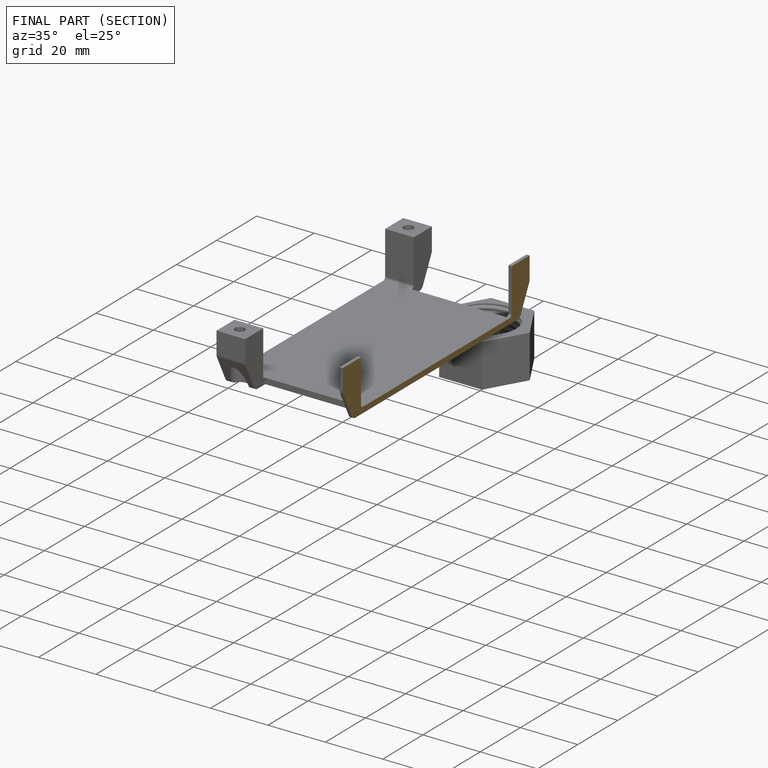
[diagram: finished part — half-section view (interior)]
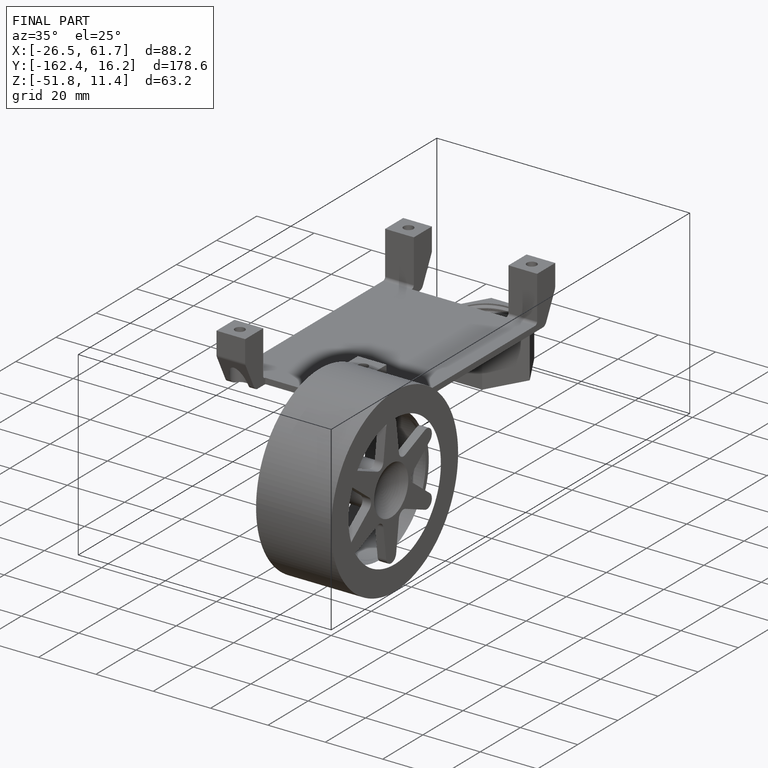
[diagram: finished part — iso view with bounding-box wireframe]
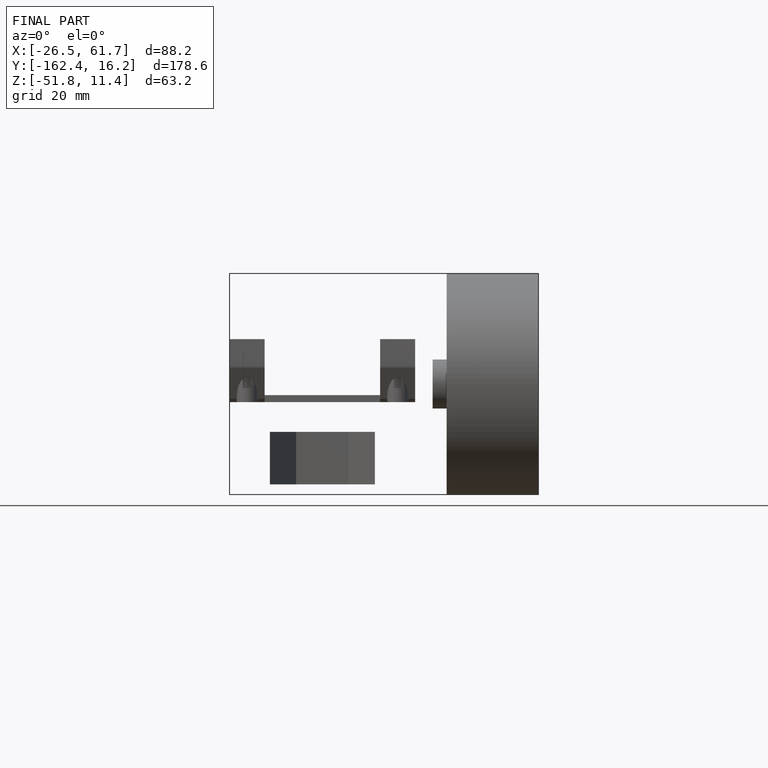
[diagram: finished part — front view with bounding-box wireframe]
